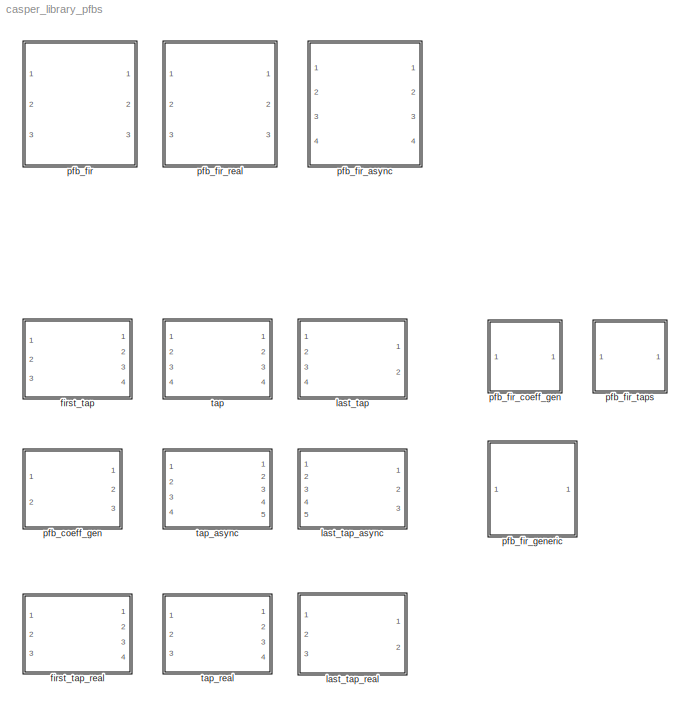
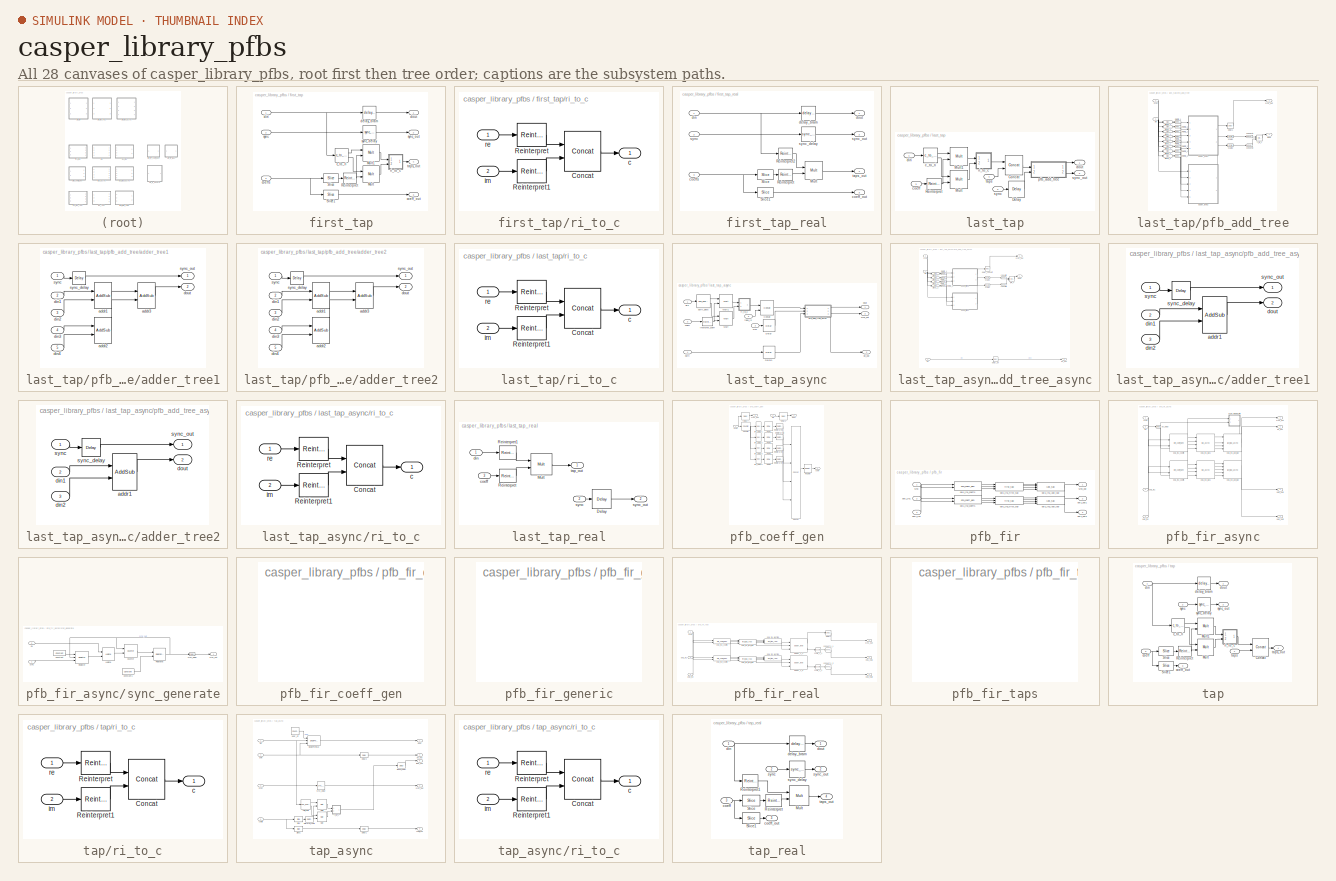
[diagram: thumbnail index - all 28 canvases of the model, root first then tree order]
MODEL casper_library_pfbs
KIND library
BLOCK [SubSystem] first_tap
  AttributesFormatString = taps=4
  FunctionWithSeparateData = off
  MaskHideContents = off
  MinAlgLoopOccurrences = off
  Opaque = off
  Ports = [3, 4]
  PropExecContextOutsideSubsystem = off
  RTWSystemCode = Auto
  RequestExecContextInheritance = off
  SID = 1
  UserData = DataTag0
  UserDataPersistent = on
BLOCK [Reference] first_tap/Mult  REF=xbsIndex_r4/Mult
  Ports = [2, 1]
  SID = 1:4
  SourceBlock = xbsIndex_r4/Mult
  SourceType = Xilinx Multiplier Block
  arith_type = Signed  (2's comp)
  bin_pt = 2
  block_type = mult
  block_version = 9.1.01
  dbl_ovrd = off
  en = off
  has_advanced_control = 0
  infoedit = Hardware notes: To use the internal pipeline stage of the dedicated multiplier you must select 'Pipeline for maximum performance'.
  latency = mult_latency
  n_bits = 8
  opt = Speed
  optimum_pipeline = off
  overflow = Wrap
  pipeline = on
  placement_style = Rectangular shape
  precision = Full
  quantization = Truncate
  sg_icon_stat = 50,51,2,1,white,blue,0,82c891c1,right,,[ ],[ ]
  sg_mask_display = fprintf('','COMMENT: begin icon graphics');\npatch([0 55 55 0 0 ],[0 0 55 55 0 ],[0.77 0.82 0.91 ]);\nplot([0 55 55 0 0 ],[0 0 55 55 0 ]);\npatch([11.425 21.54 28.54 35.54 42.54 28.54 18.425 11.425 ],[34.77 34.77 41.77 34.77 41.77 41.77 41.77 34.77 ],[1 1 1 ]);\npatch([18.425 28.54 21.54 11.425 18.425 ],[27.77 27.77 34.77 34.77 27.77 ],[0.931 0.946 0.973 ]);\npatch([11.425 21.54 28.54 18.425 11.42...<+540ch>  <repeated x10 — deduplicated; at blocks: Mult, Mult1>
  sggui_pos = 20,20,348,434
  use_behavioral_HDL = off
  use_embedded = on
  use_rpm = on
  xl_area = [0, 0, 0, 0, 0, 0, 0]
  xl_use_area = off
BLOCK [Reference] first_tap/Mult1  REF=xbsIndex_r4/Mult
  Ports = [2, 1]
  SID = 1:5
  SourceBlock = xbsIndex_r4/Mult
  SourceType = Xilinx Multiplier Block
  arith_type = Signed  (2's comp)
  bin_pt = 2
  block_type = mult
  block_version = 9.1.01
  dbl_ovrd = off
  en = off
  has_advanced_control = 0
  infoedit = Hardware notes: To use the internal pipeline stage of the dedicated multiplier you must select 'Pipeline for maximum performance'.
  latency = mult_latency
  n_bits = 8
  opt = Speed
  optimum_pipeline = off
  overflow = Wrap
  pipeline = on
  placement_style = Rectangular shape
  precision = Full
  quantization = Truncate
  sg_icon_stat = 50,51,2,1,white,blue,0,82c891c1,right,,[ ],[ ]
  sggui_pos = 20,20,348,434
  use_behavioral_HDL = off
  use_embedded = on
  use_rpm = on
  xl_area = [0, 0, 0, 0, 0, 0, 0]
  xl_use_area = off
BLOCK [Reference] first_tap/Reinterpret  REF=xbsIndex_r4/Reinterpret
  Ports = [1, 1]
  SID = 1:6
  SourceBlock = xbsIndex_r4/Reinterpret
  SourceType = Xilinx Type Reinterpreter Block
  arith_type = Signed  (2's comp)
  bin_pt = CoeffBitWidth - 1
  block_type = reinterpret
  block_version = 9.1.01
  force_arith_type = on
  force_bin_pt = on
  has_advanced_control = 0
  infoedit = Changes signal type without altering the binary representation.   You can changed the signal between signed and unsigned, and relocate the binary point.<P><P>Hardware notes: In hardware this block costs nothing.<P><P>Example:  Suppose the input is 6 bits wide, signed, with 2 fractional bits, and the output is forced to unsigned with 0 fractional bits.  Then an input of -2.0 (1110.00 in binary 2's ...<+55ch>  <repeated x23 — deduplicated; at blocks: Reinterpret, Reinterpret1, Reinterpret2, Reinterpret3, Reinterpret4>
  sg_icon_stat = 40,32,1,1,white,blue,0,6b04d0b0,right,,[ ],[ ]
  sg_mask_display = fprintf('','COMMENT: begin icon graphics');\npatch([0 50 50 0 0 ],[0 0 32 32 0 ],[0.77 0.82 0.91 ]);\nplot([0 50 50 0 0 ],[0 0 32 32 0 ]);\npatch([16.1 21.88 25.88 29.88 33.88 25.88 20.1 16.1 ],[20.44 20.44 24.44 20.44 24.44 24.44 24.44 20.44 ],[1 1 1 ]);\npatch([20.1 25.88 21.88 16.1 20.1 ],[16.44 16.44 20.44 20.44 16.44 ],[0.931 0.946 0.973 ]);\npatch([16.1 21.88 25.88 20.1 16.1 ],[12.44 12.44 1...<+306ch>  <repeated x15 — deduplicated; at blocks: Reinterpret, Reinterpret2, interpret_coeff, Reint0_1, Reint0_2, Reint1_1, Reint1_2, Reinterpret1>
  sggui_pos = -1,-1,-1,-1
BLOCK [Reference] first_tap/Slice  REF=xbsIndex_r4/Slice
  Ports = [1, 1]
  SID = 1:7
  SourceBlock = xbsIndex_r4/Slice
  SourceType = Xilinx Bit Slice Extractor Block
  base0 = LSB of Input
  base1 = MSB of Input
  bit0 = 0
  bit1 = 0
  block_type = slice
  block_version = 9.1.01
  boolean_output = off
  dbl_ovrd = off
  has_advanced_control = 0
  infoedit = Extracts a given range of bits from each input sample and presents it at the output.  The output type is ordinarily unsigned with binary point at zero, but can be Boolean when the slice is one bit wide.<P><P>Hardware notes: In hardware this block costs nothing.  <repeated x8 — deduplicated; at blocks: Slice, Slice1>
  mode = Lower Bit Location + Width
  nbits = CoeffBitWidth
  sg_icon_stat = 45,28,1,1,white,blue,0,1fd851a7,right,,[ ],[ ]
  sg_mask_display = fprintf('','COMMENT: begin icon graphics');\npatch([0 60 60 0 0 ],[0 0 30 30 0 ],[0.77 0.82 0.91 ]);\nplot([0 60 60 0 0 ],[0 0 30 30 0 ]);\npatch([21.1 26.88 30.88 34.88 38.88 30.88 25.1 21.1 ],[19.44 19.44 23.44 19.44 23.44 23.44 23.44 19.44 ],[1 1 1 ]);\npatch([25.1 30.88 26.88 21.1 25.1 ],[15.44 15.44 19.44 19.44 15.44 ],[0.931 0.946 0.973 ]);\npatch([21.1 26.88 30.88 25.1 21.1 ],[11.44 11.44 1...<+315ch>  <repeated x14 — deduplicated; at blocks: Slice, Slice1, Slice0_1, Slice0_2, Slice1_1, Slice1_2>
  sggui_pos = -1,-1,-1,-1
BLOCK [Reference] first_tap/Slice1  REF=xbsIndex_r4/Slice
  Ports = [1, 1]
  SID = 1:8
  SourceBlock = xbsIndex_r4/Slice
  SourceType = Xilinx Bit Slice Extractor Block
  base0 = LSB of Input
  base1 = MSB of Input
  bit0 = CoeffBitWidth
  bit1 = 0
  block_type = slice
  block_version = 9.1.01
  boolean_output = off
  dbl_ovrd = off
  has_advanced_control = 0
  mode = Two Bit Locations
  nbits = CoeffBitWidth * (TotalTaps - 1)
  sg_icon_stat = 45,28,1,1,white,blue,0,1fd851a7,right,,[ ],[ ]
  sggui_pos = -1,-1,-1,-1
BLOCK [Reference] first_tap/c_to_ri  REF=casper_library_misc/c_to_ri  (lib defined in mdl_357510c33b49, mdl_57b5f564ae26, +4 more)
  AttributesFormatString = _ r/i
  Ports = [1, 2]
  SID = 1:9
  SourceBlock = casper_library_misc/c_to_ri
  SourceType = c_to_ri
  UserData = DataTag1
  UserDataPersistent = on
  bin_pt = BitWidthIn-1
  n_bits = BitWidthIn
BLOCK [Outport] first_tap/coeff_out
  IconDisplay = Port number
  Port = 3
  SID = 1:21
BLOCK [Inport] first_tap/coeffs
  IconDisplay = Port number
  Port = 3
  SID = 1:3
BLOCK [Reference] first_tap/delay_bram  REF=casper_library_delays/delay_bram  (lib defined in mdl_259a08a3fac5, mdl_65009615caaa, +5 more)
  DelayLen = 2^(PFBSize-n_inputs)
  Ports = [1, 1]
  SID = 1:10
  SourceBlock = casper_library_delays/delay_bram
  SourceType = delay_bram
  UserData = DataTag2
  UserDataPersistent = on
  async = off
  bram_latency = bram_latency
  use_dsp48 = off
BLOCK [Inport] first_tap/din
  IconDisplay = Port number
  SID = 1:1
BLOCK [Outport] first_tap/dout
  IconDisplay = Port number
  SID = 1:19
BLOCK [SubSystem] first_tap/ri_to_c
  FunctionWithSeparateData = off
  MaskHideContents = off
  MinAlgLoopOccurrences = off
  Opaque = off
  Ports = [2, 1]
  PropExecContextOutsideSubsystem = off
  RTWSystemCode = Auto
  RequestExecContextInheritance = off
  SID = 1:11
BLOCK [Reference] first_tap/ri_to_c/Concat  REF=xbsIndex_r4/Concat
  Ports = [2, 1]
  SID = 1:14
  SourceBlock = xbsIndex_r4/Concat
  SourceType = Xilinx Bus Concatenator Block
  block_type = concat
  block_version = 9.1.01
  dbl_ovrd = off
  has_advanced_control = 0
  infoedit = Concatenates two or more inputs.  Output will be cast to an unsigned value with the binary point at zero.
  num_inputs = 2
  sg_icon_stat = 50,55,2,1,white,blue,0,16398980,right,,[ ],[ ]
  sg_mask_display = fprintf('','COMMENT: begin icon graphics');\npatch([0 50 50 0 0 ],[0 0 55 55 0 ],[0.77 0.82 0.91 ]);\nplot([0 50 50 0 0 ],[0 0 55 55 0 ]);\npatch([9.425 19.54 26.54 33.54 40.54 26.54 16.425 9.425 ],[34.77 34.77 41.77 34.77 41.77 41.77 41.77 34.77 ],[1 1 1 ]);\npatch([16.425 26.54 19.54 9.425 16.425 ],[27.77 27.77 34.77 34.77 27.77 ],[0.931 0.946 0.973 ]);\npatch([9.425 19.54 26.54 16.425 9.425 ],[...<+435ch>  <repeated x8 — deduplicated; at blocks: Concat>
  sggui_pos = -1,-1,-1,-1
BLOCK [Reference] first_tap/ri_to_c/Reinterpret  REF=xbsIndex_r4/Reinterpret
  Ports = [1, 1]
  SID = 1:15
  SourceBlock = xbsIndex_r4/Reinterpret
  SourceType = Xilinx Type Reinterpreter Block
  arith_type = Unsigned
  bin_pt = 0
  block_type = reinterpret
  block_version = 9.1.01
  force_arith_type = on
  force_bin_pt = on
  has_advanced_control = 0
  sg_icon_stat = 40,32,1,1,white,blue,0,6b04d0b0,right,,[ ],[ ]
  sg_mask_display = fprintf('','COMMENT: begin icon graphics');\npatch([0 40 40 0 0 ],[0 0 32 32 0 ],[0.77 0.82 0.91 ]);\nplot([0 40 40 0 0 ],[0 0 32 32 0 ]);\npatch([11.1 16.88 20.88 24.88 28.88 20.88 15.1 11.1 ],[20.44 20.44 24.44 20.44 24.44 24.44 24.44 20.44 ],[1 1 1 ]);\npatch([15.1 20.88 16.88 11.1 15.1 ],[16.44 16.44 20.44 20.44 16.44 ],[0.931 0.946 0.973 ]);\npatch([11.1 16.88 20.88 15.1 11.1 ],[12.44 12.44 1...<+306ch>  <repeated x6 — deduplicated; at blocks: Reinterpret, Reinterpret1>
  sggui_pos = -1,-1,-1,-1
BLOCK [Reference] first_tap/ri_to_c/Reinterpret1  REF=xbsIndex_r4/Reinterpret
  Ports = [1, 1]
  SID = 1:16
  SourceBlock = xbsIndex_r4/Reinterpret
  SourceType = Xilinx Type Reinterpreter Block
  arith_type = Unsigned
  bin_pt = 0
  block_type = reinterpret
  block_version = 9.1.01
  force_arith_type = on
  force_bin_pt = on
  has_advanced_control = 0
  sg_icon_stat = 40,32,1,1,white,blue,0,6b04d0b0,right,,[ ],[ ]
  sggui_pos = -1,-1,-1,-1
BLOCK [Outport] first_tap/ri_to_c/c
  IconDisplay = Port number
  SID = 1:17
BLOCK [Inport] first_tap/ri_to_c/im
  IconDisplay = Port number
  Port = 2
  SID = 1:13
BLOCK [Inport] first_tap/ri_to_c/re
  IconDisplay = Port number
  SID = 1:12
BLOCK [Inport] first_tap/sync
  IconDisplay = Port number
  Port = 2
  SID = 1:2
BLOCK [Reference] first_tap/sync_delay  REF=casper_library_delays/sync_delay  (lib defined in mdl_259a08a3fac5, mdl_65009615caaa, +5 more)
  DelayLen = 2^(PFBSize-n_inputs)
  Ports = [1, 1]
  SID = 1:18
  SourceBlock = casper_library_delays/sync_delay
  SourceType = sync_delay
BLOCK [Outport] first_tap/sync_out
  IconDisplay = Port number
  Port = 2
  SID = 1:20
BLOCK [Outport] first_tap/taps_out
  IconDisplay = Port number
  Port = 4
  SID = 1:22
BLOCK [SubSystem] first_tap_real
  AttributesFormatString = taps=4
  FunctionWithSeparateData = off
  MaskHideContents = off
  MinAlgLoopOccurrences = off
  Opaque = off
  Ports = [3, 4]
  PropExecContextOutsideSubsystem = off
  RTWSystemCode = Auto
  RequestExecContextInheritance = off
  SID = 2
  UserData = DataTag3
  UserDataPersistent = on
BLOCK [Reference] first_tap_real/Mult  REF=xbsIndex_r4/Mult
  Ports = [2, 1]
  SID = 2:4
  SourceBlock = xbsIndex_r4/Mult
  SourceType = Xilinx Multiplier Block
  arith_type = Signed  (2's comp)
  bin_pt = 2
  block_type = mult
  block_version = 9.1.01
  dbl_ovrd = off
  en = off
  has_advanced_control = 0
  infoedit = Hardware notes: To use the internal pipeline stage of the dedicated multiplier you must select 'Pipeline for maximum performance'.
  latency = mult_latency
  n_bits = 8
  opt = Speed
  optimum_pipeline = off
  overflow = Wrap
  pipeline = on
  placement_style = Rectangular shape
  precision = Full
  quantization = Truncate
  sg_icon_stat = 50,51,2,1,white,blue,0,82c891c1,right,,[ ],[ ]
  sggui_pos = 20,20,348,434
  use_behavioral_HDL = off
  use_embedded = on
  use_rpm = on
  xl_area = [0, 0, 0, 0, 0, 0, 0]
  xl_use_area = off
BLOCK [Reference] first_tap_real/Reinterpret  REF=xbsIndex_r4/Reinterpret
  Ports = [1, 1]
  SID = 2:5
  SourceBlock = xbsIndex_r4/Reinterpret
  SourceType = Xilinx Type Reinterpreter Block
  arith_type = Signed  (2's comp)
  bin_pt = CoeffBitWidth - 1
  block_type = reinterpret
  block_version = 9.1.01
  force_arith_type = on
  force_bin_pt = on
  has_advanced_control = 0
  sg_icon_stat = 40,32,1,1,white,blue,0,6b04d0b0,right,,[ ],[ ]
  sggui_pos = -1,-1,-1,-1
BLOCK [Reference] first_tap_real/Reinterpret2  REF=xbsIndex_r4/Reinterpret
  Ports = [1, 1]
  SID = 2:6
  SourceBlock = xbsIndex_r4/Reinterpret
  SourceType = Xilinx Type Reinterpreter Block
  arith_type = Signed  (2's comp)
  bin_pt = BitWidthIn - 1
  block_type = reinterpret
  block_version = 9.1.01
  force_arith_type = on
  force_bin_pt = on
  has_advanced_control = 0
  sg_icon_stat = 40,32,1,1,white,blue,0,6b04d0b0,right,,[ ],[ ]
  sggui_pos = -1,-1,-1,-1
BLOCK [Reference] first_tap_real/Slice  REF=xbsIndex_r4/Slice
  Ports = [1, 1]
  SID = 2:7
  SourceBlock = xbsIndex_r4/Slice
  SourceType = Xilinx Bit Slice Extractor Block
  base0 = LSB of Input
  base1 = MSB of Input
  bit0 = 0
  bit1 = 0
  block_type = slice
  block_version = 9.1.01
  boolean_output = off
  dbl_ovrd = off
  has_advanced_control = 0
  mode = Lower Bit Location + Width
  nbits = CoeffBitWidth
  sg_icon_stat = 45,28,1,1,white,blue,0,1fd851a7,right,,[ ],[ ]
  sggui_pos = -1,-1,-1,-1
BLOCK [Reference] first_tap_real/Slice1  REF=xbsIndex_r4/Slice
  Ports = [1, 1]
  SID = 2:8
  SourceBlock = xbsIndex_r4/Slice
  SourceType = Xilinx Bit Slice Extractor Block
  base0 = LSB of Input
  base1 = MSB of Input
  bit0 = CoeffBitWidth
  bit1 = 0
  block_type = slice
  block_version = 9.1.01
  boolean_output = off
  dbl_ovrd = off
  has_advanced_control = 0
  mode = Two Bit Locations
  nbits = CoeffBitWidth * (TotalTaps - 1)
  sg_icon_stat = 45,28,1,1,white,blue,0,1fd851a7,right,,[ ],[ ]
  sggui_pos = -1,-1,-1,-1
BLOCK [Outport] first_tap_real/coeff_out
  IconDisplay = Port number
  Port = 3
  SID = 2:13
BLOCK [Inport] first_tap_real/coeffs
  IconDisplay = Port number
  Port = 3
  SID = 2:3
BLOCK [Reference] first_tap_real/delay_bram  REF=casper_library_delays/delay_bram  (lib defined in mdl_259a08a3fac5, mdl_65009615caaa, +5 more)
  DelayLen = 2^(PFBSize-n_inputs)
  Ports = [1, 1]
  SID = 2:9
  SourceBlock = casper_library_delays/delay_bram
  SourceType = delay_bram
  UserData = DataTag4
  UserDataPersistent = on
  async = off
  bram_latency = bram_latency
  use_dsp48 = off
BLOCK [Inport] first_tap_real/din
  IconDisplay = Port number
  SID = 2:1
BLOCK [Outport] first_tap_real/dout
  IconDisplay = Port number
  SID = 2:11
BLOCK [Inport] first_tap_real/sync
  IconDisplay = Port number
  Port = 2
  SID = 2:2
BLOCK [Reference] first_tap_real/sync_delay  REF=casper_library_delays/sync_delay  (lib defined in mdl_259a08a3fac5, mdl_65009615caaa, +5 more)
  DelayLen = 2^(PFBSize-n_inputs)
  Ports = [1, 1]
  SID = 2:10
  SourceBlock = casper_library_delays/sync_delay
  SourceType = sync_delay
BLOCK [Outport] first_tap_real/sync_out
  IconDisplay = Port number
  Port = 2
  SID = 2:12
BLOCK [Outport] first_tap_real/taps_out
  IconDisplay = Port number
  Port = 4
  SID = 2:14
BLOCK [SubSystem] last_tap
  AttributesFormatString = taps=4
  FunctionWithSeparateData = off
  MaskHideContents = off
  MinAlgLoopOccurrences = off
  Opaque = off
  Ports = [4, 2]
  PropExecContextOutsideSubsystem = off
  RTWSystemCode = Auto
  RequestExecContextInheritance = off
  SID = 3
  UserData = DataTag5
  UserDataPersistent = on
BLOCK [Reference] last_tap/Concat  REF=xbsIndex_r4/Concat
  Ports = [2, 1]
  SID = 3:5
  SourceBlock = xbsIndex_r4/Concat
  SourceType = Xilinx Bus Concatenator Block
  block_type = concat
  block_version = 9.1.01
  dbl_ovrd = off
  has_advanced_control = 0
  infoedit = Concatenates two or more inputs.  Output will be cast to an unsigned value with the binary point at zero.
  num_inputs = 2
  sg_icon_stat = 50,55,2,1,white,blue,0,16398980,right,,[ ],[ ]
  sggui_pos = -1,-1,-1,-1
BLOCK [Reference] last_tap/Delay  REF=xbsIndex_r4/Delay
  Ports = [1, 1]
  SID = 3:6
  SourceBlock = xbsIndex_r4/Delay
  SourceType = Xilinx Delay Block
  block_type = delay
  block_version = 9.1.01
  dbl_ovrd = off
  en = off
  has_advanced_control = 0
  infoedit = Hardware notes: A delay line is a chain, each link of which is an SRL16 followed by a flip-flop.
  infoeditControl = Selection of Reset will increase slice count due to use of real FFs and instead of SRLs
  latency = mult_latency
  reg_retiming = off
  rst = off
  sg_icon_stat = 45,46,1,1,white,blue,0,85ce9542,right,,[ ],[ ]
  sg_mask_display = fprintf('','COMMENT: begin icon graphics');\npatch([0 60 60 0 0 ],[0 0 56 56 0 ],[0.77 0.82 0.91 ]);\nplot([0 60 60 0 0 ],[0 0 56 56 0 ]);\npatch([12.2 23.76 31.76 39.76 47.76 31.76 20.2 12.2 ],[36.88 36.88 44.88 36.88 44.88 44.88 44.88 36.88 ],[1 1 1 ]);\npatch([20.2 31.76 23.76 12.2 20.2 ],[28.88 28.88 36.88 36.88 28.88 ],[0.931 0.946 0.973 ]);\npatch([12.2 23.76 31.76 20.2 12.2 ],[20.88 20.88 2...<+320ch>  <repeated x16 — deduplicated; at blocks: Delay, Delay1, delay_convert, fan_delay1, fan_delay2, fan_delay3, fan_delay4, dv_delay, sync_delay, Delay2, tapout_delay>
  sggui_pos = -1,-1,-1,-1
  xl_area = [0, 0, 0, 0, 0, 0, 0]
  xl_use_area = off
BLOCK [Reference] last_tap/Mult  REF=xbsIndex_r4/Mult
  Ports = [2, 1]
  SID = 3:7
  SourceBlock = xbsIndex_r4/Mult
  SourceType = Xilinx Multiplier Block
  arith_type = Signed  (2's comp)
  bin_pt = 2
  block_type = mult
  block_version = 9.1.01
  dbl_ovrd = off
  en = off
  has_advanced_control = 0
  infoedit = Hardware notes: To use the internal pipeline stage of the dedicated multiplier you must select 'Pipeline for maximum performance'.
  latency = mult_latency
  n_bits = 8
  opt = Speed
  optimum_pipeline = off
  overflow = Wrap
  pipeline = on
  placement_style = Rectangular shape
  precision = Full
  quantization = Truncate
  sg_icon_stat = 50,51,2,1,white,blue,0,2fbe4d8a,right,,[ ],[ ]
  sggui_pos = 20,20,348,434
  use_behavioral_HDL = off
  use_embedded = on
  use_rpm = on
  xl_area = [0, 0, 0, 0, 0, 0, 0]
  xl_use_area = off
BLOCK [Reference] last_tap/Mult1  REF=xbsIndex_r4/Mult
  Ports = [2, 1]
  SID = 3:8
  SourceBlock = xbsIndex_r4/Mult
  SourceType = Xilinx Multiplier Block
  arith_type = Signed  (2's comp)
  bin_pt = 2
  block_type = mult
  block_version = 9.1.01
  dbl_ovrd = off
  en = off
  has_advanced_control = 0
  infoedit = Hardware notes: To use the internal pipeline stage of the dedicated multiplier you must select 'Pipeline for maximum performance'.
  latency = mult_latency
  n_bits = 8
  opt = Speed
  optimum_pipeline = off
  overflow = Wrap
  pipeline = on
  placement_style = Rectangular shape
  precision = Full
  quantization = Truncate
  sg_icon_stat = 50,51,2,1,white,blue,0,2fbe4d8a,right,,[ ],[ ]
  sggui_pos = 20,20,348,434
  use_behavioral_HDL = off
  use_embedded = on
  use_rpm = on
  xl_area = [0, 0, 0, 0, 0, 0, 0]
  xl_use_area = off
BLOCK [Reference] last_tap/Reinterpret  REF=xbsIndex_r4/Reinterpret
  Ports = [1, 1]
  SID = 3:9
  SourceBlock = xbsIndex_r4/Reinterpret
  SourceType = Xilinx Type Reinterpreter Block
  arith_type = Signed  (2's comp)
  bin_pt = CoeffBitWidth - 1
  block_type = reinterpret
  block_version = 9.1.01
  force_arith_type = on
  force_bin_pt = on
  has_advanced_control = 0
  sg_icon_stat = 40,32,1,1,white,blue,0,6b04d0b0,right,,[ ],[ ]
  sggui_pos = -1,-1,-1,-1
BLOCK [Reference] last_tap/c_to_ri  REF=casper_library_misc/c_to_ri  (lib defined in mdl_357510c33b49, mdl_57b5f564ae26, +4 more)
  AttributesFormatString = _ r/i
  Ports = [1, 2]
  SID = 3:10
  SourceBlock = casper_library_misc/c_to_ri
  SourceType = c_to_ri
  UserData = DataTag6
  UserDataPersistent = on
  bin_pt = BitWidthIn-1
  n_bits = BitWidthIn
BLOCK [Inport] last_tap/coeff
  IconDisplay = Port number
  Port = 3
  SID = 3:3
BLOCK [Inport] last_tap/din
  IconDisplay = Port number
  SID = 3:1
BLOCK [Outport] last_tap/dout
  IconDisplay = Port number
  SID = 3:19
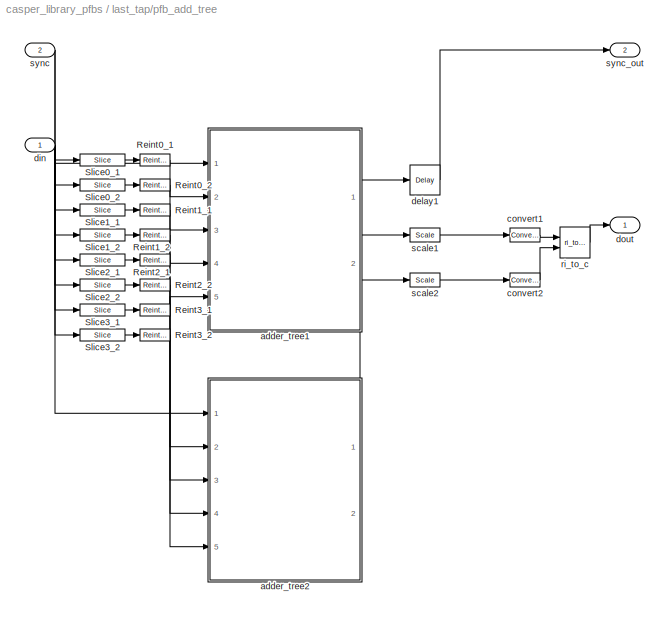
BLOCK [SubSystem] last_tap/pfb_add_tree
  AttributesFormatString = taps=4, add_latency=1
  FunctionWithSeparateData = off
  MaskHideContents = off
  MinAlgLoopOccurrences = off
  Opaque = off
  Ports = [2, 2]
  PropExecContextOutsideSubsystem = off
  RTWSystemCode = Auto
  RequestExecContextInheritance = off
  SID = 3:11
  UserData = DataTag7
  UserDataPersistent = on
BLOCK [Reference] last_tap/pfb_add_tree/Reint0_1  REF=xbsIndex_r4/Reinterpret
  Ports = [1, 1]
  SID = 3:11:3
  SourceBlock = xbsIndex_r4/Reinterpret
  SourceType = Xilinx Type Reinterpreter Block
  arith_type = Signed  (2's comp)
  bin_pt = 14
  block_type = reinterpret
  block_version = 11.4
  force_arith_type = on
  force_bin_pt = on
  has_advanced_control = 0
  infoedit = Changes signal type without altering the binary representation.   You can changed the signal between signed and unsigned, and relocate the binary point.<br><br>Hardware notes: In hardware this block costs nothing.<br><br>Example:  Suppose the input is 6 bits wide, signed, with 2 fractional bits, and the output is forced to unsigned with 0 fractional bits.  Then an input of -2.0 (1110.00 in binary ...<+59ch>  <repeated x14 — deduplicated; at blocks: Reint0_1, Reint0_2, Reint1_1, Reint1_2, Reint2_1, Reint2_2, Reint3_1, Reint3_2, interpret_coeff>
  sg_icon_stat = 30,12,1,1,white,blue,0,6b04d0b0,right,,[ ],[ ]
  sg_mask_display = fprintf('','COMMENT: begin icon graphics');\npatch([0 30 30 0 0 ],[0 0 12 12 0 ],[0.77 0.82 0.91 ]);\nplot([0 30 30 0 0 ],[0 0 12 12 0 ]);\npatch([12.775 14.22 15.22 16.22 17.22 15.22 13.775 12.775 ],[7.11 7.11 8.11 7.11 8.11 8.11 8.11 7.11 ],[1 1 1 ]);\npatch([13.775 15.22 14.22 12.775 13.775 ],[6.11 6.11 7.11 7.11 6.11 ],[0.931 0.946 0.973 ]);\npatch([12.775 14.22 15.22 13.775 12.775 ],[5.11 5.1...<+309ch>
  sggui_pos = -1,-1,-1,-1
BLOCK [Reference] last_tap/pfb_add_tree/Reint0_2  REF=xbsIndex_r4/Reinterpret
  Ports = [1, 1]
  SID = 3:11:4
  SourceBlock = xbsIndex_r4/Reinterpret
  SourceType = Xilinx Type Reinterpreter Block
  arith_type = Signed  (2's comp)
  bin_pt = 14
  block_type = reinterpret
  block_version = 11.4
  force_arith_type = on
  force_bin_pt = on
  has_advanced_control = 0
  sg_icon_stat = 30,12,1,1,white,blue,0,6b04d0b0,right,,[ ],[ ]
  sg_mask_display = fprintf('','COMMENT: begin icon graphics');\npatch([0 30 30 0 0 ],[0 0 12 12 0 ],[0.77 0.82 0.91 ]);\nplot([0 30 30 0 0 ],[0 0 12 12 0 ]);\npatch([12.775 14.22 15.22 16.22 17.22 15.22 13.775 12.775 ],[7.11 7.11 8.11 7.11 8.11 8.11 8.11 7.11 ],[1 1 1 ]);\npatch([13.775 15.22 14.22 12.775 13.775 ],[6.11 6.11 7.11 7.11 6.11 ],[0.931 0.946 0.973 ]);\npatch([12.775 14.22 15.22 13.775 12.775 ],[5.11 5.1...<+311ch>  <repeated x7 — deduplicated; at blocks: Reint0_2, Reint1_1, Reint1_2, Reint2_1, Reint2_2, Reint3_1, Reint3_2>
  sggui_pos = -1,-1,-1,-1
BLOCK [Reference] last_tap/pfb_add_tree/Reint1_1  REF=xbsIndex_r4/Reinterpret
  Ports = [1, 1]
  SID = 3:11:5
  SourceBlock = xbsIndex_r4/Reinterpret
  SourceType = Xilinx Type Reinterpreter Block
  arith_type = Signed  (2's comp)
  bin_pt = 14
  block_type = reinterpret
  block_version = 11.4
  force_arith_type = on
  force_bin_pt = on
  has_advanced_control = 0
  sg_icon_stat = 30,12,1,1,white,blue,0,6b04d0b0,right,,[ ],[ ]
  sggui_pos = -1,-1,-1,-1
BLOCK [Reference] last_tap/pfb_add_tree/Reint1_2  REF=xbsIndex_r4/Reinterpret
  Ports = [1, 1]
  SID = 3:11:6
  SourceBlock = xbsIndex_r4/Reinterpret
  SourceType = Xilinx Type Reinterpreter Block
  arith_type = Signed  (2's comp)
  bin_pt = 14
  block_type = reinterpret
  block_version = 11.4
  force_arith_type = on
  force_bin_pt = on
  has_advanced_control = 0
  sg_icon_stat = 30,12,1,1,white,blue,0,6b04d0b0,right,,[ ],[ ]
  sggui_pos = -1,-1,-1,-1
BLOCK [Reference] last_tap/pfb_add_tree/Reint2_1  REF=xbsIndex_r4/Reinterpret
  Ports = [1, 1]
  SID = 3:11:7
  SourceBlock = xbsIndex_r4/Reinterpret
  SourceType = Xilinx Type Reinterpreter Block
  arith_type = Signed  (2's comp)
  bin_pt = 14
  block_type = reinterpret
  block_version = 11.4
  force_arith_type = on
  force_bin_pt = on
  has_advanced_control = 0
  sg_icon_stat = 30,12,1,1,white,blue,0,6b04d0b0,right,,[ ],[ ]
  sggui_pos = -1,-1,-1,-1
BLOCK [Reference] last_tap/pfb_add_tree/Reint2_2  REF=xbsIndex_r4/Reinterpret
  Ports = [1, 1]
  SID = 3:11:8
  SourceBlock = xbsIndex_r4/Reinterpret
  SourceType = Xilinx Type Reinterpreter Block
  arith_type = Signed  (2's comp)
  bin_pt = 14
  block_type = reinterpret
  block_version = 11.4
  force_arith_type = on
  force_bin_pt = on
  has_advanced_control = 0
  sg_icon_stat = 30,12,1,1,white,blue,0,6b04d0b0,right,,[ ],[ ]
  sggui_pos = -1,-1,-1,-1
BLOCK [Reference] last_tap/pfb_add_tree/Reint3_1  REF=xbsIndex_r4/Reinterpret
  Ports = [1, 1]
  SID = 3:11:9
  SourceBlock = xbsIndex_r4/Reinterpret
  SourceType = Xilinx Type Reinterpreter Block
  arith_type = Signed  (2's comp)
  bin_pt = 14
  block_type = reinterpret
  block_version = 11.4
  force_arith_type = on
  force_bin_pt = on
  has_advanced_control = 0
  sg_icon_stat = 30,12,1,1,white,blue,0,6b04d0b0,right,,[ ],[ ]
  sggui_pos = -1,-1,-1,-1
BLOCK [Reference] last_tap/pfb_add_tree/Reint3_2  REF=xbsIndex_r4/Reinterpret
  Ports = [1, 1]
  SID = 3:11:10
  SourceBlock = xbsIndex_r4/Reinterpret
  SourceType = Xilinx Type Reinterpreter Block
  arith_type = Signed  (2's comp)
  bin_pt = 14
  block_type = reinterpret
  block_version = 11.4
  force_arith_type = on
  force_bin_pt = on
  has_advanced_control = 0
  sg_icon_stat = 30,12,1,1,white,blue,0,6b04d0b0,right,,[ ],[ ]
  sggui_pos = -1,-1,-1,-1
BLOCK [Reference] last_tap/pfb_add_tree/Slice0_1  REF=xbsIndex_r4/Slice
  Ports = [1, 1]
  SID = 3:11:11
  SourceBlock = xbsIndex_r4/Slice
  SourceType = Xilinx Bit Slice Extractor Block
  base0 = MSB of Input
  base1 = MSB of Input
  bit0 = 0
  bit1 = 0
  block_type = slice
  block_version = 11.4
  boolean_output = off
  dbl_ovrd = off
  has_advanced_control = 0
  infoedit = Extracts a given range of bits from each input sample and presents it at the output.  The output type is ordinarily unsigned with binary point at zero, but can be Boolean when the slice is one bit wide.<br><br>Hardware notes: In hardware this block costs nothing.  <repeated x14 — deduplicated; at blocks: Slice0_1, Slice0_2, Slice1_1, Slice1_2, Slice2_1, Slice2_2, Slice3_1, Slice3_2, Slice, Slice1>
  mode = Upper Bit Location + Width
  nbits = 16
  sg_icon_stat = 45,12,1,1,white,blue,0,1fd851a7,right,,[ ],[ ]
  sg_mask_display = fprintf('','COMMENT: begin icon graphics');\npatch([0 45 45 0 0 ],[0 0 12 12 0 ],[0.77 0.82 0.91 ]);\nplot([0 45 45 0 0 ],[0 0 12 12 0 ]);\npatch([19.775 21.22 22.22 23.22 24.22 22.22 20.775 19.775 ],[7.11 7.11 8.11 7.11 8.11 8.11 8.11 7.11 ],[1 1 1 ]);\npatch([20.775 22.22 21.22 19.775 20.775 ],[6.11 6.11 7.11 7.11 6.11 ],[0.931 0.946 0.973 ]);\npatch([19.775 21.22 22.22 20.775 19.775 ],[5.11 5.1...<+320ch>  <repeated x8 — deduplicated; at blocks: Slice0_1, Slice0_2, Slice1_1, Slice1_2, Slice2_1, Slice2_2, Slice3_1, Slice3_2>
  sggui_pos = -1,-1,-1,-1
BLOCK [Reference] last_tap/pfb_add_tree/Slice0_2  REF=xbsIndex_r4/Slice
  Ports = [1, 1]
  SID = 3:11:12
  SourceBlock = xbsIndex_r4/Slice
  SourceType = Xilinx Bit Slice Extractor Block
  base0 = MSB of Input
  base1 = MSB of Input
  bit0 = 0
  bit1 = -16
  block_type = slice
  block_version = 11.4
  boolean_output = off
  dbl_ovrd = off
  has_advanced_control = 0
  mode = Upper Bit Location + Width
  nbits = 16
  sg_icon_stat = 45,12,1,1,white,blue,0,1fd851a7,right,,[ ],[ ]
  sggui_pos = -1,-1,-1,-1
BLOCK [Reference] last_tap/pfb_add_tree/Slice1_1  REF=xbsIndex_r4/Slice
  Ports = [1, 1]
  SID = 3:11:13
  SourceBlock = xbsIndex_r4/Slice
  SourceType = Xilinx Bit Slice Extractor Block
  base0 = MSB of Input
  base1 = MSB of Input
  bit0 = 0
  bit1 = -32
  block_type = slice
  block_version = 11.4
  boolean_output = off
  dbl_ovrd = off
  has_advanced_control = 0
  mode = Upper Bit Location + Width
  nbits = 16
  sg_icon_stat = 45,12,1,1,white,blue,0,1fd851a7,right,,[ ],[ ]
  sggui_pos = -1,-1,-1,-1
BLOCK [Reference] last_tap/pfb_add_tree/Slice1_2  REF=xbsIndex_r4/Slice
  Ports = [1, 1]
  SID = 3:11:14
  SourceBlock = xbsIndex_r4/Slice
  SourceType = Xilinx Bit Slice Extractor Block
  base0 = MSB of Input
  base1 = MSB of Input
  bit0 = 0
  bit1 = -48
  block_type = slice
  block_version = 11.4
  boolean_output = off
  dbl_ovrd = off
  has_advanced_control = 0
  mode = Upper Bit Location + Width
  nbits = 16
  sg_icon_stat = 45,12,1,1,white,blue,0,1fd851a7,right,,[ ],[ ]
  sggui_pos = -1,-1,-1,-1
BLOCK [Reference] last_tap/pfb_add_tree/Slice2_1  REF=xbsIndex_r4/Slice
  Ports = [1, 1]
  SID = 3:11:15
  SourceBlock = xbsIndex_r4/Slice
  SourceType = Xilinx Bit Slice Extractor Block
  base0 = MSB of Input
  base1 = MSB of Input
  bit0 = 0
  bit1 = -64
  block_type = slice
  block_version = 11.4
  boolean_output = off
  dbl_ovrd = off
  has_advanced_control = 0
  mode = Upper Bit Location + Width
  nbits = 16
  sg_icon_stat = 45,12,1,1,white,blue,0,1fd851a7,right,,[ ],[ ]
  sggui_pos = -1,-1,-1,-1
BLOCK [Reference] last_tap/pfb_add_tree/Slice2_2  REF=xbsIndex_r4/Slice
  Ports = [1, 1]
  SID = 3:11:16
  SourceBlock = xbsIndex_r4/Slice
  SourceType = Xilinx Bit Slice Extractor Block
  base0 = MSB of Input
  base1 = MSB of Input
  bit0 = 0
  bit1 = -80
  block_type = slice
  block_version = 11.4
  boolean_output = off
  dbl_ovrd = off
  has_advanced_control = 0
  mode = Upper Bit Location + Width
  nbits = 16
  sg_icon_stat = 45,12,1,1,white,blue,0,1fd851a7,right,,[ ],[ ]
  sggui_pos = -1,-1,-1,-1
BLOCK [Reference] last_tap/pfb_add_tree/Slice3_1  REF=xbsIndex_r4/Slice
  Ports = [1, 1]
  SID = 3:11:17
  SourceBlock = xbsIndex_r4/Slice
  SourceType = Xilinx Bit Slice Extractor Block
  base0 = MSB of Input
  base1 = MSB of Input
  bit0 = 0
  bit1 = -96
  block_type = slice
  block_version = 11.4
  boolean_output = off
  dbl_ovrd = off
  has_advanced_control = 0
  mode = Upper Bit Location + Width
  nbits = 16
  sg_icon_stat = 45,12,1,1,white,blue,0,1fd851a7,right,,[ ],[ ]
  sggui_pos = -1,-1,-1,-1
BLOCK [Reference] last_tap/pfb_add_tree/Slice3_2  REF=xbsIndex_r4/Slice
  Ports = [1, 1]
  SID = 3:11:18
  SourceBlock = xbsIndex_r4/Slice
  SourceType = Xilinx Bit Slice Extractor Block
  base0 = MSB of Input
  base1 = MSB of Input
  bit0 = 0
  bit1 = -112
  block_type = slice
  block_version = 11.4
  boolean_output = off
  dbl_ovrd = off
  has_advanced_control = 0
  mode = Upper Bit Location + Width
  nbits = 16
  sg_icon_stat = 45,12,1,1,white,blue,0,1fd851a7,right,,[ ],[ ]
  sggui_pos = -1,-1,-1,-1
BLOCK [SubSystem] last_tap/pfb_add_tree/adder_tree1
  AncestorBlock = casper_library_misc/adder_tree
  AttributesFormatString = latency 2
  FunctionWithSeparateData = off
  MaskHideContents = off
  MinAlgLoopOccurrences = off
  Opaque = off
  Ports = [5, 2]
  PropExecContextOutsideSubsystem = off
  RTWSystemCode = Auto
  RequestExecContextInheritance = off
  SID = 3:11:19
  UserData = DataTag8
  UserDataPersistent = on
BLOCK [Reference] last_tap/pfb_add_tree/adder_tree1/addr1  REF=xbsIndex_r4/AddSub
  Ports = [2, 1]
  SID = 3:11:19:6
  SourceBlock = xbsIndex_r4/AddSub
  SourceType = Xilinx Adder/Subtracter Block
  arith_type = Unsigned
  bin_pt = 14
  block_type = addsub
  block_version = 11.4
  dbl_ovrd = off
  en = off
  has_advanced_control = 0
  hw_selection = Fabric
  latency = 1
  mode = Addition
  n_bits = 16
  overflow = Wrap
  pipelined = on
  precision = Full
  quantization = Truncate
  sg_icon_stat = 40,60,2,1,white,blue,0,e85d8a90,right,,[ ],[ ]
  sg_mask_display = fprintf('','COMMENT: begin icon graphics');\npatch([0 40 40 0 0 ],[0 0 60 60 0 ],[0.77 0.82 0.91 ]);\nplot([0 40 40 0 0 ],[0 0 60 60 0 ]);\npatch([8.875 16.1 21.1 26.1 31.1 21.1 13.875 8.875 ],[35.55 35.55 40.55 35.55 40.55 40.55 40.55 35.55 ],[1 1 1 ]);\npatch([13.875 21.1 16.1 8.875 13.875 ],[30.55 30.55 35.55 35.55 30.55 ],[0.931 0.946 0.973 ]);\npatch([8.875 16.1 21.1 13.875 8.875 ],[25.55 25....<+543ch>  <repeated x8 — deduplicated; at blocks: addr1, addr2, addr3>
  sggui_pos = 23,125,419,344
  use_behavioral_HDL = off
  use_carryin = off
  use_carryout = off
  use_rpm = on
  xl_area = [0,0,0,0,0,0,0]
  xl_use_area = off
BLOCK [Reference] last_tap/pfb_add_tree/adder_tree1/addr2  REF=xbsIndex_r4/AddSub
  Ports = [2, 1]
  SID = 3:11:19:7
  SourceBlock = xbsIndex_r4/AddSub
  SourceType = Xilinx Adder/Subtracter Block
  arith_type = Unsigned
  bin_pt = 14
  block_type = addsub
  block_version = 11.4
  dbl_ovrd = off
  en = off
  has_advanced_control = 0
  hw_selection = Fabric
  latency = 1
  mode = Addition
  n_bits = 16
  overflow = Wrap
  pipelined = on
  precision = Full
  quantization = Truncate
  sg_icon_stat = 40,60,2,1,white,blue,0,e85d8a90,right,,[ ],[ ]
  sggui_pos = -1,-1,-1,-1
  use_behavioral_HDL = off
  use_carryin = off
  use_carryout = off
  use_rpm = on
  xl_area = [0,0,0,0,0,0,0]
  xl_use_area = off
BLOCK [Reference] last_tap/pfb_add_tree/adder_tree1/addr3  REF=xbsIndex_r4/AddSub
  Ports = [2, 1]
  SID = 3:11:19:8
  SourceBlock = xbsIndex_r4/AddSub
  SourceType = Xilinx Adder/Subtracter Block
  arith_type = Unsigned
  bin_pt = 14
  block_type = addsub
  block_version = 11.4
  dbl_ovrd = off
  en = off
  has_advanced_control = 0
  hw_selection = Fabric
  latency = 1
  mode = Addition
  n_bits = 16
  overflow = Wrap
  pipelined = on
  precision = Full
  quantization = Truncate
  sg_icon_stat = 40,60,2,1,white,blue,0,e85d8a90,right,,[ ],[ ]
  sggui_pos = 23,125,419,344
  use_behavioral_HDL = off
  use_carryin = off
  use_carryout = off
  use_rpm = on
  xl_area = [0,0,0,0,0,0,0]
  xl_use_area = off
BLOCK [Inport] last_tap/pfb_add_tree/adder_tree1/din1
  IconDisplay = Port number
  Port = 2
  SID = 3:11:19:2
BLOCK [Inport] last_tap/pfb_add_tree/adder_tree1/din2
  IconDisplay = Port number
  Port = 3
  SID = 3:11:19:3
BLOCK [Inport] last_tap/pfb_add_tree/adder_tree1/din3
  IconDisplay = Port number
  Port = 4
  SID = 3:11:19:4
BLOCK [Inport] last_tap/pfb_add_tree/adder_tree1/din4
  IconDisplay = Port number
  Port = 5
  SID = 3:11:19:5
BLOCK [Outport] last_tap/pfb_add_tree/adder_tree1/dout
  IconDisplay = Port number
  Port = 2
  SID = 3:11:19:11
BLOCK [Inport] last_tap/pfb_add_tree/adder_tree1/sync
  IconDisplay = Port number
  SID = 3:11:19:1
BLOCK [Reference] last_tap/pfb_add_tree/adder_tree1/sync_delay  REF=xbsIndex_r4/Delay
  Ports = [1, 1]
  SID = 3:11:19:9
  SourceBlock = xbsIndex_r4/Delay
  SourceType = Xilinx Delay Block
  block_type = delay
  block_version = 11.4
  dbl_ovrd = off
  en = off
  has_advanced_control = 0
  infoedit = Hardware notes: A delay line is a chain, each link of which is an SRL16 followed by a flip-flop.
  infoeditControl = Selection of Reset will increase slice count due to use of real FFs and instead of SRLs
  latency = 2
  reg_retiming = on
  rst = off
  sg_icon_stat = 30,30,1,1,white,blue,0,85ce9542,right,,[ ],[ ]
  sg_mask_display = fprintf('','COMMENT: begin icon graphics');\npatch([0 30 30 0 0 ],[0 0 30 30 0 ],[0.77 0.82 0.91 ]);\nplot([0 30 30 0 0 ],[0 0 30 30 0 ]);\npatch([6.1 11.88 15.88 19.88 23.88 15.88 10.1 6.1 ],[19.44 19.44 23.44 19.44 23.44 23.44 23.44 19.44 ],[1 1 1 ]);\npatch([10.1 15.88 11.88 6.1 10.1 ],[15.44 15.44 19.44 19.44 15.44 ],[0.931 0.946 0.973 ]);\npatch([6.1 11.88 15.88 10.1 6.1 ],[11.44 11.44 15.44 ...<+312ch>  <repeated x5 — deduplicated; at blocks: sync_delay, delay1>
  sggui_pos = 21,71,419,315
  xl_area = [0,0,0,0,0,0,0]
  xl_use_area = off
BLOCK [Outport] last_tap/pfb_add_tree/adder_tree1/sync_out
  IconDisplay = Port number
  SID = 3:11:19:10
BLOCK [SubSystem] last_tap/pfb_add_tree/adder_tree2
  AncestorBlock = casper_library_misc/adder_tree
  AttributesFormatString = latency 2
  FunctionWithSeparateData = off
  MaskHideContents = off
  MinAlgLoopOccurrences = off
  Opaque = off
  Ports = [5, 2]
  PropExecContextOutsideSubsystem = off
  RTWSystemCode = Auto
  RequestExecContextInheritance = off
  SID = 3:11:20
  UserData = DataTag9
  UserDataPersistent = on
BLOCK [Reference] last_tap/pfb_add_tree/adder_tree2/addr1  REF=xbsIndex_r4/AddSub
  Ports = [2, 1]
  SID = 3:11:20:6
  SourceBlock = xbsIndex_r4/AddSub
  SourceType = Xilinx Adder/Subtracter Block
  arith_type = Unsigned
  bin_pt = 14
  block_type = addsub
  block_version = 11.4
  dbl_ovrd = off
  en = off
  has_advanced_control = 0
  hw_selection = Fabric
  latency = 1
  mode = Addition
  n_bits = 16
  overflow = Wrap
  pipelined = on
  precision = Full
  quantization = Truncate
  sg_icon_stat = 40,60,2,1,white,blue,0,e85d8a90,right,,[ ],[ ]
  sggui_pos = 23,125,419,344
  use_behavioral_HDL = off
  use_carryin = off
  use_carryout = off
  use_rpm = on
  xl_area = [0,0,0,0,0,0,0]
  xl_use_area = off
BLOCK [Reference] last_tap/pfb_add_tree/adder_tree2/addr2  REF=xbsIndex_r4/AddSub
  Ports = [2, 1]
  SID = 3:11:20:7
  SourceBlock = xbsIndex_r4/AddSub
  SourceType = Xilinx Adder/Subtracter Block
  arith_type = Unsigned
  bin_pt = 14
  block_type = addsub
  block_version = 11.4
  dbl_ovrd = off
  en = off
  has_advanced_control = 0
  hw_selection = Fabric
  latency = 1
  mode = Addition
  n_bits = 16
  overflow = Wrap
  pipelined = on
  precision = Full
  quantization = Truncate
  sg_icon_stat = 40,60,2,1,white,blue,0,e85d8a90,right,,[ ],[ ]
  sggui_pos = -1,-1,-1,-1
  use_behavioral_HDL = off
  use_carryin = off
  use_carryout = off
  use_rpm = on
  xl_area = [0,0,0,0,0,0,0]
  xl_use_area = off
BLOCK [Reference] last_tap/pfb_add_tree/adder_tree2/addr3  REF=xbsIndex_r4/AddSub
  Ports = [2, 1]
  SID = 3:11:20:8
  SourceBlock = xbsIndex_r4/AddSub
  SourceType = Xilinx Adder/Subtracter Block
  arith_type = Unsigned
  bin_pt = 14
  block_type = addsub
  block_version = 11.4
  dbl_ovrd = off
  en = off
  has_advanced_control = 0
  hw_selection = Fabric
  latency = 1
  mode = Addition
  n_bits = 16
  overflow = Wrap
  pipelined = on
  precision = Full
  quantization = Truncate
  sg_icon_stat = 40,60,2,1,white,blue,0,e85d8a90,right,,[ ],[ ]
  sggui_pos = 23,125,419,344
  use_behavioral_HDL = off
  use_carryin = off
  use_carryout = off
  use_rpm = on
  xl_area = [0,0,0,0,0,0,0]
  xl_use_area = off
BLOCK [Inport] last_tap/pfb_add_tree/adder_tree2/din1
  IconDisplay = Port number
  Port = 2
  SID = 3:11:20:2
BLOCK [Inport] last_tap/pfb_add_tree/adder_tree2/din2
  IconDisplay = Port number
  Port = 3
  SID = 3:11:20:3
BLOCK [Inport] last_tap/pfb_add_tree/adder_tree2/din3
  IconDisplay = Port number
  Port = 4
  SID = 3:11:20:4
BLOCK [Inport] last_tap/pfb_add_tree/adder_tree2/din4
  IconDisplay = Port number
  Port = 5
  SID = 3:11:20:5
BLOCK [Outport] last_tap/pfb_add_tree/adder_tree2/dout
  IconDisplay = Port number
  Port = 2
  SID = 3:11:20:11
BLOCK [Inport] last_tap/pfb_add_tree/adder_tree2/sync
  IconDisplay = Port number
  SID = 3:11:20:1
BLOCK [Reference] last_tap/pfb_add_tree/adder_tree2/sync_delay  REF=xbsIndex_r4/Delay
  Ports = [1, 1]
  SID = 3:11:20:9
  SourceBlock = xbsIndex_r4/Delay
  SourceType = Xilinx Delay Block
  block_type = delay
  block_version = 11.4
  dbl_ovrd = off
  en = off
  has_advanced_control = 0
  infoedit = Hardware notes: A delay line is a chain, each link of which is an SRL16 followed by a flip-flop.
  infoeditControl = Selection of Reset will increase slice count due to use of real FFs and instead of SRLs
  latency = 2
  reg_retiming = on
  rst = off
  sg_icon_stat = 30,30,1,1,white,blue,0,85ce9542,right,,[ ],[ ]
  sggui_pos = 21,71,419,315
  xl_area = [0,0,0,0,0,0,0]
  xl_use_area = off
BLOCK [Outport] last_tap/pfb_add_tree/adder_tree2/sync_out
  IconDisplay = Port number
  SID = 3:11:20:10
BLOCK [Reference] last_tap/pfb_add_tree/convert1  REF=xbsIndex_r4/Convert
  Ports = [1, 1]
  SID = 3:11:21
  SourceBlock = xbsIndex_r4/Convert
  SourceType = Xilinx Type Converter Block
  arith_type = Signed  (2's comp)
  bin_pt = 17
  block_type = convert
  block_version = 11.4
  dbl_ovrd = off
  en = off
  exp_bits = 8
  float_type = Single
  fraction_bits = 24
  gui_display_data_type = Fixed-point
  has_advanced_control = 0
  infoedit = Hardware notes: rounding and saturating require hardware resources; truncating and wrapping do not.
  latency = 1
  n_bits = 18
  overflow = Saturate
  pipeline = on
  quantization = Truncate
  sg_icon_stat = 30,14,1,1,white,blue,0,0c6bad53,right,,[ ],[ ]
  sg_mask_display = fprintf('','COMMENT: begin icon graphics');\npatch([0 30 30 0 0 ],[0 0 14 14 0 ],[0.77 0.82 0.91 ]);\nplot([0 30 30 0 0 ],[0 0 14 14 0 ]);\npatch([10.55 13.44 15.44 17.44 19.44 15.44 12.55 10.55 ],[9.22 9.22 11.22 9.22 11.22 11.22 11.22 9.22 ],[1 1 1 ]);\npatch([12.55 15.44 13.44 10.55 12.55 ],[7.22 7.22 9.22 9.22 7.22 ],[0.931 0.946 0.973 ]);\npatch([10.55 13.44 15.44 12.55 10.55 ],[5.22 5.22 7.2...<+397ch>
  sggui_pos = -1,-1,-1,-1
  xl_area = [0,0,0,0,0,0,0]
  xl_use_area = off
BLOCK [Reference] last_tap/pfb_add_tree/convert2  REF=xbsIndex_r4/Convert
  Ports = [1, 1]
  SID = 3:11:22
  SourceBlock = xbsIndex_r4/Convert
  SourceType = Xilinx Type Converter Block
  arith_type = Signed  (2's comp)
  bin_pt = 17
  block_type = convert
  block_version = 11.4
  dbl_ovrd = off
  en = off
  exp_bits = 8
  float_type = Single
  fraction_bits = 24
  gui_display_data_type = Fixed-point
  has_advanced_control = 0
  infoedit = Hardware notes: rounding and saturating require hardware resources; truncating and wrapping do not.
  latency = 1
  n_bits = 18
  overflow = Saturate
  pipeline = off
  quantization = Truncate
  sg_icon_stat = 30,14,1,1,white,blue,0,0c6bad53,right,,[ ],[ ]
  sg_mask_display = fprintf('','COMMENT: begin icon graphics');\npatch([0 30 30 0 0 ],[0 0 14 14 0 ],[0.77 0.82 0.91 ]);\nplot([0 30 30 0 0 ],[0 0 14 14 0 ]);\npatch([10.55 13.44 15.44 17.44 19.44 15.44 12.55 10.55 ],[9.22 9.22 11.22 9.22 11.22 11.22 11.22 9.22 ],[1 1 1 ]);\npatch([12.55 15.44 13.44 10.55 12.55 ],[7.22 7.22 9.22 9.22 7.22 ],[0.931 0.946 0.973 ]);\npatch([10.55 13.44 15.44 12.55 10.55 ],[5.22 5.22 7.2...<+397ch>
  sggui_pos = -1,-1,-1,-1
  xl_area = [0,0,0,0,0,0,0]
  xl_use_area = off
BLOCK [Reference] last_tap/pfb_add_tree/delay1  REF=xbsIndex_r4/Delay
  Ports = [1, 1]
  SID = 3:11:23
  SourceBlock = xbsIndex_r4/Delay
  SourceType = Xilinx Delay Block
  block_type = delay
  block_version = 11.4
  dbl_ovrd = off
  en = off
  has_advanced_control = 0
  infoedit = Hardware notes: A delay line is a chain, each link of which is an SRL16 followed by a flip-flop.
  infoeditControl = Selection of Reset will increase slice count due to use of real FFs and instead of SRLs
  latency = 1
  reg_retiming = off
  rst = off
  sg_icon_stat = 30,30,1,1,white,blue,0,07b98262,right,,[ ],[ ]
  sggui_pos = -1,-1,-1,-1
  xl_area = [0,0,0,0,0,0,0]
  xl_use_area = off
BLOCK [Inport] last_tap/pfb_add_tree/din
  IconDisplay = Port number
  SID = 3:11:1
BLOCK [Outport] last_tap/pfb_add_tree/dout
  IconDisplay = Port number
  SID = 3:11:27
BLOCK [Reference] last_tap/pfb_add_tree/ri_to_c  REF=casper_library_misc/ri_to_c  (lib defined in mdl_357510c33b49, mdl_57b5f564ae26, +4 more)
  Ports = [2, 1]
  SID = 3:11:24
  SourceBlock = casper_library_misc/ri_to_c
  SourceType = ri_to_c
  UserData = DataTag10
  UserDataPersistent = on
BLOCK [Reference] last_tap/pfb_add_tree/scale1  REF=xbsIndex_r4/Scale
  Ports = [1, 1]
  SID = 3:11:25
  SourceBlock = xbsIndex_r4/Scale
  SourceType = Xilinx Input Scaler Block
  block_type = scale
  block_version = 11.4
  dbl_ovrd = off
  has_advanced_control = 0
  infoedit = Scales input by a power of two by adjusting the binary point position.<br><br>Hardware notes: In hardware this block costs nothing.
  scale_factor = -3
  sg_icon_stat = 30,14,1,1,white,blue,0,b236fd91,right,,[ ],[ ]
  sg_mask_display = fprintf('','COMMENT: begin icon graphics');\npatch([0 30 30 0 0 ],[0 0 14 14 0 ],[0.77 0.82 0.91 ]);\nplot([0 30 30 0 0 ],[0 0 14 14 0 ]);\npatch([10.55 13.44 15.44 17.44 19.44 15.44 12.55 10.55 ],[9.22 9.22 11.22 9.22 11.22 11.22 11.22 9.22 ],[1 1 1 ]);\npatch([12.55 15.44 13.44 10.55 12.55 ],[7.22 7.22 9.22 9.22 7.22 ],[0.931 0.946 0.973 ]);\npatch([10.55 13.44 15.44 12.55 10.55 ],[5.22 5.22 7.2...<+319ch>  <repeated x4 — deduplicated; at blocks: scale1, scale2>
  sggui_pos = -1,-1,-1,-1
BLOCK [Reference] last_tap/pfb_add_tree/scale2  REF=xbsIndex_r4/Scale
  Ports = [1, 1]
  SID = 3:11:26
  SourceBlock = xbsIndex_r4/Scale
  SourceType = Xilinx Input Scaler Block
  block_type = scale
  block_version = 11.4
  dbl_ovrd = off
  has_advanced_control = 0
  infoedit = Scales input by a power of two by adjusting the binary point position.<br><br>Hardware notes: In hardware this block costs nothing.
  scale_factor = -3
  sg_icon_stat = 30,14,1,1,white,blue,0,b236fd91,right,,[ ],[ ]
  sggui_pos = -1,-1,-1,-1
BLOCK [Inport] last_tap/pfb_add_tree/sync
  IconDisplay = Port number
  Port = 2
  SID = 3:11:2
BLOCK [Outport] last_tap/pfb_add_tree/sync_out
  IconDisplay = Port number
  Port = 2
  SID = 3:11:28
BLOCK [SubSystem] last_tap/ri_to_c
  FunctionWithSeparateData = off
  MaskHideContents = off
  MinAlgLoopOccurrences = off
  Opaque = off
  Ports = [2, 1]
  PropExecContextOutsideSubsystem = off
  RTWSystemCode = Auto
  RequestExecContextInheritance = off
  SID = 3:12
BLOCK [Reference] last_tap/ri_to_c/Concat  REF=xbsIndex_r4/Concat
  Ports = [2, 1]
  SID = 3:15
  SourceBlock = xbsIndex_r4/Concat
  SourceType = Xilinx Bus Concatenator Block
  block_type = concat
  block_version = 9.1.01
  dbl_ovrd = off
  has_advanced_control = 0
  infoedit = Concatenates two or more inputs.  Output will be cast to an unsigned value with the binary point at zero.
  num_inputs = 2
  sg_icon_stat = 50,55,2,1,white,blue,0,16398980,right,,[ ],[ ]
  sggui_pos = -1,-1,-1,-1
BLOCK [Reference] last_tap/ri_to_c/Reinterpret  REF=xbsIndex_r4/Reinterpret
  Ports = [1, 1]
  SID = 3:16
  SourceBlock = xbsIndex_r4/Reinterpret
  SourceType = Xilinx Type Reinterpreter Block
  arith_type = Unsigned
  bin_pt = 0
  block_type = reinterpret
  block_version = 9.1.01
  force_arith_type = on
  force_bin_pt = on
  has_advanced_control = 0
  sg_icon_stat = 40,32,1,1,white,blue,0,6b04d0b0,right,,[ ],[ ]
  sggui_pos = -1,-1,-1,-1
BLOCK [Reference] last_tap/ri_to_c/Reinterpret1  REF=xbsIndex_r4/Reinterpret
  Ports = [1, 1]
  SID = 3:17
  SourceBlock = xbsIndex_r4/Reinterpret
  SourceType = Xilinx Type Reinterpreter Block
  arith_type = Unsigned
  bin_pt = 0
  block_type = reinterpret
  block_version = 9.1.01
  force_arith_type = on
  force_bin_pt = on
  has_advanced_control = 0
  sg_icon_stat = 40,32,1,1,white,blue,0,6b04d0b0,right,,[ ],[ ]
  sggui_pos = -1,-1,-1,-1
BLOCK [Outport] last_tap/ri_to_c/c
  IconDisplay = Port number
  SID = 3:18
BLOCK [Inport] last_tap/ri_to_c/im
  IconDisplay = Port number
  Port = 2
  SID = 3:14
BLOCK [Inport] last_tap/ri_to_c/re
  IconDisplay = Port number
  SID = 3:13
BLOCK [Inport] last_tap/sync
  IconDisplay = Port number
  Port = 2
  SID = 3:2
BLOCK [Outport] last_tap/sync_out
  IconDisplay = Port number
  Port = 2
  SID = 3:20
BLOCK [Inport] last_tap/taps
  IconDisplay = Port number
  Port = 4
  SID = 3:4
BLOCK [SubSystem] last_tap_async
  AttributesFormatString = input(1), tap(2,2)
  FunctionWithSeparateData = off
  MaskHideContents = off
  MinAlgLoopOccurrences = off
  Opaque = off
  Ports = [5, 3]
  PropExecContextOutsideSubsystem = off
  RTWSystemCode = Auto
  RequestExecContextInheritance = off
  SID = 4
  UserData = DataTag11
  UserDataPersistent = on
BLOCK [Reference] last_tap_async/Concat  REF=xbsIndex_r4/Concat
  Ports = [2, 1]
  SID = 4:6
  SourceBlock = xbsIndex_r4/Concat
  SourceType = Xilinx Bus Concatenator Block
  block_type = concat
  block_version = 9.1.01
  dbl_ovrd = off
  has_advanced_control = 0
  infoedit = Concatenates two or more inputs.  Output will be cast to an unsigned value with the binary point at zero.
  num_inputs = 2
  sg_icon_stat = 50,55,2,1,white,blue,0,16398980,right,,[ ],[ ]
  sggui_pos = -1,-1,-1,-1
BLOCK [Reference] last_tap_async/Delay  REF=xbsIndex_r4/Delay
  Ports = [1, 1]
  SID = 4:7
  SourceBlock = xbsIndex_r4/Delay
  SourceType = Xilinx Delay Block
  block_type = delay
  block_version = 9.1.01
  dbl_ovrd = off
  en = off
  has_advanced_control = 0
  infoedit = Hardware notes: A delay line is a chain, each link of which is an SRL16 followed by a flip-flop.
  infoeditControl = Selection of Reset will increase slice count due to use of real FFs and instead of SRLs
  latency = mult_latency
  reg_retiming = off
  rst = off
  sg_icon_stat = 45,46,1,1,white,blue,0,85ce9542,right,,[ ],[ ]
  sggui_pos = 20,44,419,315
  xl_area = [0, 0, 0, 0, 0, 0, 0]
  xl_use_area = off
BLOCK [Reference] last_tap_async/Delay1  REF=xbsIndex_r4/Delay
  Ports = [1, 1]
  SID = 4:8
  SourceBlock = xbsIndex_r4/Delay
  SourceType = Xilinx Delay Block
  block_type = delay
  block_version = 9.1.01
  dbl_ovrd = off
  en = off
  has_advanced_control = 0
  infoedit = Hardware notes: A delay line is a chain, each link of which is an SRL16 followed by a flip-flop.
  infoeditControl = Selection of Reset will increase slice count due to use of real FFs and instead of SRLs
  latency = mult_latency
  reg_retiming = off
  rst = off
  sg_icon_stat = 45,46,1,1,white,blue,0,85ce9542,right,,[ ],[ ]
  sggui_pos = 20,44,419,315
  xl_area = [0, 0, 0, 0, 0, 0, 0]
  xl_use_area = off
BLOCK [Reference] last_tap_async/Mult  REF=xbsIndex_r4/Mult
  Ports = [2, 1]
  SID = 4:9
  SourceBlock = xbsIndex_r4/Mult
  SourceType = Xilinx Multiplier Block
  arith_type = Signed  (2's comp)
  bin_pt = 2
  block_type = mult
  block_version = 9.1.01
  dbl_ovrd = off
  en = off
  has_advanced_control = 0
  infoedit = Hardware notes: To use the internal pipeline stage of the dedicated multiplier you must select 'Pipeline for maximum performance'.
  latency = mult_latency
  n_bits = 8
  opt = Speed
  optimum_pipeline = off
  overflow = Wrap
  pipeline = on
  placement_style = Rectangular shape
  precision = Full
  quantization = Truncate
  sg_icon_stat = 50,51,2,1,white,blue,0,2fbe4d8a,right,,[ ],[ ]
  sggui_pos = 20,20,348,434
  use_behavioral_HDL = on
  use_embedded = off
  use_rpm = on
  xl_area = [0, 0, 0, 0, 0, 0, 0]
  xl_use_area = off
BLOCK [Reference] last_tap_async/Mult1  REF=xbsIndex_r4/Mult
  Ports = [2, 1]
  SID = 4:10
  SourceBlock = xbsIndex_r4/Mult
  SourceType = Xilinx Multiplier Block
  arith_type = Signed  (2's comp)
  bin_pt = 2
  block_type = mult
  block_version = 9.1.01
  dbl_ovrd = off
  en = off
  has_advanced_control = 0
  infoedit = Hardware notes: To use the internal pipeline stage of the dedicated multiplier you must select 'Pipeline for maximum performance'.
  latency = mult_latency
  n_bits = 8
  opt = Speed
  optimum_pipeline = off
  overflow = Wrap
  pipeline = on
  placement_style = Rectangular shape
  precision = Full
  quantization = Truncate
  sg_icon_stat = 50,51,2,1,white,blue,0,2fbe4d8a,right,,[ ],[ ]
  sggui_pos = 20,24,419,609
  use_behavioral_HDL = on
  use_embedded = off
  use_rpm = on
  xl_area = [0, 0, 0, 0, 0, 0, 0]
  xl_use_area = off
BLOCK [Inport] last_tap_async/coeff
  IconDisplay = Port number
  Port = 3
  SID = 4:3
BLOCK [Inport] last_tap_async/din
  IconDisplay = Port number
  SID = 4:1
BLOCK [Outport] last_tap_async/dout
  IconDisplay = Port number
  SID = 4:21
BLOCK [Outport] last_tap_async/dv_out
  IconDisplay = Port number
  Port = 3
  SID = 4:23
BLOCK [Inport] last_tap_async/dvin
  IconDisplay = Port number
  Port = 4
  SID = 4:4
BLOCK [Reference] last_tap_async/interpret_coeff  REF=xbsIndex_r4/Reinterpret
  Ports = [1, 1]
  SID = 4:11
  SourceBlock = xbsIndex_r4/Reinterpret
  SourceType = Xilinx Type Reinterpreter Block
  arith_type = Signed  (2's comp)
  bin_pt = coeff_bits - 1
  block_type = reinterpret
  block_version = 9.1.01
  force_arith_type = on
  force_bin_pt = on
  has_advanced_control = 0
  sg_icon_stat = 40,32,1,1,white,blue,0,6b04d0b0,right,,[ ],[ ]
  sggui_pos = 20,44,374,364
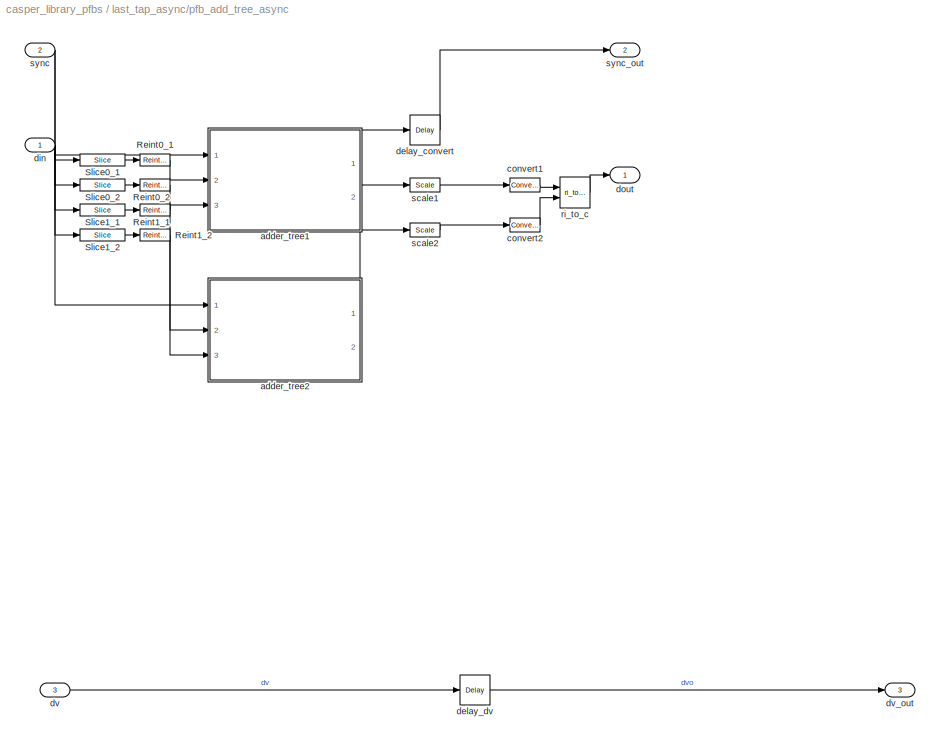
BLOCK [SubSystem] last_tap_async/pfb_add_tree_async
  AttributesFormatString = input(1), taps(2), add_lat(1)
  FunctionWithSeparateData = off
  MaskHideContents = off
  MinAlgLoopOccurrences = off
  Opaque = off
  Ports = [3, 3]
  PropExecContextOutsideSubsystem = off
  RTWSystemCode = Auto
  RequestExecContextInheritance = off
  SID = 4:12
  UserData = DataTag12
  UserDataPersistent = on
BLOCK [Reference] last_tap_async/pfb_add_tree_async/Reint0_1  REF=xbsIndex_r4/Reinterpret
  Ports = [1, 1]
  SID = 4:12:4
  SourceBlock = xbsIndex_r4/Reinterpret
  SourceType = Xilinx Type Reinterpreter Block
  arith_type = Signed  (2's comp)
  bin_pt = coeff_bits + data_in_bits - 2
  block_type = reinterpret
  block_version = 11.4
  force_arith_type = on
  force_bin_pt = on
  has_advanced_control = 0
  sg_icon_stat = 30,12,1,1,white,blue,0,6b04d0b0,right,,[ ],[ ]
  sggui_pos = 20,44,374,364
BLOCK [Reference] last_tap_async/pfb_add_tree_async/Reint0_2  REF=xbsIndex_r4/Reinterpret
  Ports = [1, 1]
  SID = 4:12:5
  SourceBlock = xbsIndex_r4/Reinterpret
  SourceType = Xilinx Type Reinterpreter Block
  arith_type = Signed  (2's comp)
  bin_pt = coeff_bits + data_in_bits - 2
  block_type = reinterpret
  block_version = 11.4
  force_arith_type = on
  force_bin_pt = on
  has_advanced_control = 0
  sg_icon_stat = 30,12,1,1,white,blue,0,6b04d0b0,right,,[ ],[ ]
  sggui_pos = -1,-1,-1,-1
BLOCK [Reference] last_tap_async/pfb_add_tree_async/Reint1_1  REF=xbsIndex_r4/Reinterpret
  Ports = [1, 1]
  SID = 4:12:6
  SourceBlock = xbsIndex_r4/Reinterpret
  SourceType = Xilinx Type Reinterpreter Block
  arith_type = Signed  (2's comp)
  bin_pt = coeff_bits + data_in_bits - 2
  block_type = reinterpret
  block_version = 11.4
  force_arith_type = on
  force_bin_pt = on
  has_advanced_control = 0
  sg_icon_stat = 30,12,1,1,white,blue,0,6b04d0b0,right,,[ ],[ ]
  sggui_pos = -1,-1,-1,-1
BLOCK [Reference] last_tap_async/pfb_add_tree_async/Reint1_2  REF=xbsIndex_r4/Reinterpret
  Ports = [1, 1]
  SID = 4:12:7
  SourceBlock = xbsIndex_r4/Reinterpret
  SourceType = Xilinx Type Reinterpreter Block
  arith_type = Signed  (2's comp)
  bin_pt = coeff_bits + data_in_bits - 2
  block_type = reinterpret
  block_version = 11.4
  force_arith_type = on
  force_bin_pt = on
  has_advanced_control = 0
  sg_icon_stat = 30,12,1,1,white,blue,0,6b04d0b0,right,,[ ],[ ]
  sggui_pos = -1,-1,-1,-1
BLOCK [Reference] last_tap_async/pfb_add_tree_async/Slice0_1  REF=xbsIndex_r4/Slice
  Ports = [1, 1]
  SID = 4:12:8
  SourceBlock = xbsIndex_r4/Slice
  SourceType = Xilinx Bit Slice Extractor Block
  base0 = MSB of Input
  base1 = MSB of Input
  bit0 = 0
  bit1 = 0
  block_type = slice
  block_version = 11.4
  boolean_output = off
  dbl_ovrd = off
  has_advanced_control = 0
  mode = Upper Bit Location + Width
  nbits = coeff_bits + data_in_bits
  sg_icon_stat = 45,12,1,1,white,blue,0,1fd851a7,right,,[ ],[ ]
  sggui_pos = 20,44,540,482
BLOCK [Reference] last_tap_async/pfb_add_tree_async/Slice0_2  REF=xbsIndex_r4/Slice
  Ports = [1, 1]
  SID = 4:12:9
  SourceBlock = xbsIndex_r4/Slice
  SourceType = Xilinx Bit Slice Extractor Block
  base0 = MSB of Input
  base1 = MSB of Input
  bit0 = 0
  bit1 = -16
  block_type = slice
  block_version = 11.4
  boolean_output = off
  dbl_ovrd = off
  has_advanced_control = 0
  mode = Upper Bit Location + Width
  nbits = coeff_bits + data_in_bits
  sg_icon_stat = 45,12,1,1,white,blue,0,1fd851a7,right,,[ ],[ ]
  sggui_pos = 20,44,540,482
BLOCK [Reference] last_tap_async/pfb_add_tree_async/Slice1_1  REF=xbsIndex_r4/Slice
  Ports = [1, 1]
  SID = 4:12:10
  SourceBlock = xbsIndex_r4/Slice
  SourceType = Xilinx Bit Slice Extractor Block
  base0 = MSB of Input
  base1 = MSB of Input
  bit0 = 0
  bit1 = -32
  block_type = slice
  block_version = 11.4
  boolean_output = off
  dbl_ovrd = off
  has_advanced_control = 0
  mode = Upper Bit Location + Width
  nbits = coeff_bits + data_in_bits
  sg_icon_stat = 45,12,1,1,white,blue,0,1fd851a7,right,,[ ],[ ]
  sggui_pos = -1,-1,-1,-1
BLOCK [Reference] last_tap_async/pfb_add_tree_async/Slice1_2  REF=xbsIndex_r4/Slice
  Ports = [1, 1]
  SID = 4:12:11
  SourceBlock = xbsIndex_r4/Slice
  SourceType = Xilinx Bit Slice Extractor Block
  base0 = MSB of Input
  base1 = MSB of Input
  bit0 = 0
  bit1 = -48
  block_type = slice
  block_version = 11.4
  boolean_output = off
  dbl_ovrd = off
  has_advanced_control = 0
  mode = Upper Bit Location + Width
  nbits = coeff_bits + data_in_bits
  sg_icon_stat = 45,12,1,1,white,blue,0,1fd851a7,right,,[ ],[ ]
  sggui_pos = -1,-1,-1,-1
BLOCK [SubSystem] last_tap_async/pfb_add_tree_async/adder_tree1
  AncestorBlock = casper_library_misc/adder_tree
  AttributesFormatString = latency 1
  FunctionWithSeparateData = off
  MaskHideContents = off
  MinAlgLoopOccurrences = off
  Opaque = off
  Ports = [3, 2]
  PropExecContextOutsideSubsystem = off
  RTWSystemCode = Auto
  RequestExecContextInheritance = off
  SID = 4:12:12
  UserData = DataTag13
  UserDataPersistent = on
BLOCK [Reference] last_tap_async/pfb_add_tree_async/adder_tree1/addr1  REF=xbsIndex_r4/AddSub
  Ports = [2, 1]
  SID = 4:12:12:4
  SourceBlock = xbsIndex_r4/AddSub
  SourceType = Xilinx Adder/Subtracter Block
  arith_type = Unsigned
  bin_pt = 14
  block_type = addsub
  block_version = 11.4
  dbl_ovrd = off
  en = off
  has_advanced_control = 0
  hw_selection = Fabric
  latency = 1
  mode = Addition
  n_bits = 16
  overflow = Wrap
  pipelined = on
  precision = Full
  quantization = Truncate
  sg_icon_stat = 40,60,2,1,white,blue,0,e85d8a90,right,,[ ],[ ]
  sggui_pos = 23,125,419,344
  use_behavioral_HDL = off
  use_carryin = off
  use_carryout = off
  use_rpm = on
  xl_area = [0,0,0,0,0,0,0]
  xl_use_area = off
BLOCK [Inport] last_tap_async/pfb_add_tree_async/adder_tree1/din1
  IconDisplay = Port number
  Port = 2
  SID = 4:12:12:2
BLOCK [Inport] last_tap_async/pfb_add_tree_async/adder_tree1/din2
  IconDisplay = Port number
  Port = 3
  SID = 4:12:12:3
BLOCK [Outport] last_tap_async/pfb_add_tree_async/adder_tree1/dout
  IconDisplay = Port number
  Port = 2
  SID = 4:12:12:7
BLOCK [Inport] last_tap_async/pfb_add_tree_async/adder_tree1/sync
  IconDisplay = Port number
  SID = 4:12:12:1
BLOCK [Reference] last_tap_async/pfb_add_tree_async/adder_tree1/sync_delay  REF=xbsIndex_r4/Delay
  Ports = [1, 1]
  SID = 4:12:12:5
  SourceBlock = xbsIndex_r4/Delay
  SourceType = Xilinx Delay Block
  block_type = delay
  block_version = 11.4
  dbl_ovrd = off
  en = off
  has_advanced_control = 0
  infoedit = Hardware notes: A delay line is a chain, each link of which is an SRL16 followed by a flip-flop.
  infoeditControl = Selection of Reset will increase slice count due to use of real FFs and instead of SRLs
  latency = 1
  reg_retiming = on
  rst = off
  sg_icon_stat = 30,30,1,1,white,blue,0,07b98262,right,,[ ],[ ]
  sggui_pos = 21,71,419,315
  xl_area = [0,0,0,0,0,0,0]
  xl_use_area = off
BLOCK [Outport] last_tap_async/pfb_add_tree_async/adder_tree1/sync_out
  IconDisplay = Port number
  SID = 4:12:12:6
BLOCK [SubSystem] last_tap_async/pfb_add_tree_async/adder_tree2
  AncestorBlock = casper_library_misc/adder_tree
  AttributesFormatString = latency 1
  FunctionWithSeparateData = off
  MaskHideContents = off
  MinAlgLoopOccurrences = off
  Opaque = off
  Ports = [3, 2]
  PropExecContextOutsideSubsystem = off
  RTWSystemCode = Auto
  RequestExecContextInheritance = off
  SID = 4:12:13
  UserData = DataTag14
  UserDataPersistent = on
BLOCK [Reference] last_tap_async/pfb_add_tree_async/adder_tree2/addr1  REF=xbsIndex_r4/AddSub
  Ports = [2, 1]
  SID = 4:12:13:4
  SourceBlock = xbsIndex_r4/AddSub
  SourceType = Xilinx Adder/Subtracter Block
  arith_type = Unsigned
  bin_pt = 14
  block_type = addsub
  block_version = 11.4
  dbl_ovrd = off
  en = off
  has_advanced_control = 0
  hw_selection = Fabric
  latency = 1
  mode = Addition
  n_bits = 16
  overflow = Wrap
  pipelined = on
  precision = Full
  quantization = Truncate
  sg_icon_stat = 40,60,2,1,white,blue,0,e85d8a90,right,,[ ],[ ]
  sggui_pos = 23,125,419,344
  use_behavioral_HDL = off
  use_carryin = off
  use_carryout = off
  use_rpm = on
  xl_area = [0,0,0,0,0,0,0]
  xl_use_area = off
BLOCK [Inport] last_tap_async/pfb_add_tree_async/adder_tree2/din1
  IconDisplay = Port number
  Port = 2
  SID = 4:12:13:2
BLOCK [Inport] last_tap_async/pfb_add_tree_async/adder_tree2/din2
  IconDisplay = Port number
  Port = 3
  SID = 4:12:13:3
BLOCK [Outport] last_tap_async/pfb_add_tree_async/adder_tree2/dout
  IconDisplay = Port number
  Port = 2
  SID = 4:12:13:7
BLOCK [Inport] last_tap_async/pfb_add_tree_async/adder_tree2/sync
  IconDisplay = Port number
  SID = 4:12:13:1
BLOCK [Reference] last_tap_async/pfb_add_tree_async/adder_tree2/sync_delay  REF=xbsIndex_r4/Delay
  Ports = [1, 1]
  SID = 4:12:13:5
  SourceBlock = xbsIndex_r4/Delay
  SourceType = Xilinx Delay Block
  block_type = delay
  block_version = 11.4
  dbl_ovrd = off
  en = off
  has_advanced_control = 0
  infoedit = Hardware notes: A delay line is a chain, each link of which is an SRL16 followed by a flip-flop.
  infoeditControl = Selection of Reset will increase slice count due to use of real FFs and instead of SRLs
  latency = 1
  reg_retiming = on
  rst = off
  sg_icon_stat = 30,30,1,1,white,blue,0,07b98262,right,,[ ],[ ]
  sggui_pos = 21,71,419,315
  xl_area = [0,0,0,0,0,0,0]
  xl_use_area = off
BLOCK [Outport] last_tap_async/pfb_add_tree_async/adder_tree2/sync_out
  IconDisplay = Port number
  SID = 4:12:13:6
BLOCK [Reference] last_tap_async/pfb_add_tree_async/convert1  REF=xbsIndex_r4/Convert
  Ports = [1, 1]
  SID = 4:12:14
  SourceBlock = xbsIndex_r4/Convert
  SourceType = Xilinx Type Converter Block
  arith_type = Signed  (2's comp)
  bin_pt = data_out_bits-1
  block_type = convert
  block_version = 11.4
  dbl_ovrd = off
  en = off
  exp_bits = 8
  float_type = Single
  fraction_bits = 24
  gui_display_data_type = Fixed-point
  has_advanced_control = 0
  infoedit = Hardware notes: rounding and saturating require hardware resources; truncating and wrapping do not.
  latency = add_latency
  n_bits = data_out_bits
  overflow = Saturate
  pipeline = on
  quantization = Truncate
  sg_icon_stat = 30,14,1,1,white,blue,0,0c6bad53,right,,[ ],[ ]
  sg_mask_display = fprintf('','COMMENT: begin icon graphics');\npatch([0 45 45 0 0 ],[0 0 30 30 0 ],[0.77 0.82 0.91 ]);\nplot([0 45 45 0 0 ],[0 0 30 30 0 ]);\npatch([13.1 18.88 22.88 26.88 30.88 22.88 17.1 13.1 ],[19.44 19.44 23.44 19.44 23.44 23.44 23.44 19.44 ],[1 1 1 ]);\npatch([17.1 22.88 18.88 13.1 17.1 ],[15.44 15.44 19.44 19.44 15.44 ],[0.931 0.946 0.973 ]);\npatch([13.1 18.88 22.88 17.1 13.1 ],[11.44 11.44 1...<+314ch>
  sggui_pos = 20,44,538,429
  xl_area = [0,0,0,0,0,0,0]
  xl_use_area = off
BLOCK [Reference] last_tap_async/pfb_add_tree_async/convert2  REF=xbsIndex_r4/Convert
  Ports = [1, 1]
  SID = 4:12:15
  SourceBlock = xbsIndex_r4/Convert
  SourceType = Xilinx Type Converter Block
  arith_type = Signed  (2's comp)
  bin_pt = data_out_bits-1
  block_type = convert
  block_version = 11.4
  dbl_ovrd = off
  en = off
  exp_bits = 8
  float_type = Single
  fraction_bits = 24
  gui_display_data_type = Fixed-point
  has_advanced_control = 0
  infoedit = Hardware notes: rounding and saturating require hardware resources; truncating and wrapping do not.
  latency = add_latency
  n_bits = data_out_bits
  overflow = Saturate
  pipeline = on
  quantization = Truncate
  sg_icon_stat = 30,14,1,1,white,blue,0,0c6bad53,right,,[ ],[ ]
  sg_mask_display = fprintf('','COMMENT: begin icon graphics');\npatch([0 45 45 0 0 ],[0 0 30 30 0 ],[0.77 0.82 0.91 ]);\nplot([0 45 45 0 0 ],[0 0 30 30 0 ]);\npatch([13.1 18.88 22.88 26.88 30.88 22.88 17.1 13.1 ],[19.44 19.44 23.44 19.44 23.44 23.44 23.44 19.44 ],[1 1 1 ]);\npatch([17.1 22.88 18.88 13.1 17.1 ],[15.44 15.44 19.44 19.44 15.44 ],[0.931 0.946 0.973 ]);\npatch([13.1 18.88 22.88 17.1 13.1 ],[11.44 11.44 1...<+314ch>
  sggui_pos = 20,44,538,429
  xl_area = [0,0,0,0,0,0,0]
  xl_use_area = off
BLOCK [Reference] last_tap_async/pfb_add_tree_async/delay_convert  REF=xbsIndex_r4/Delay
  Ports = [1, 1]
  SID = 4:12:16
  SourceBlock = xbsIndex_r4/Delay
  SourceType = Xilinx Delay Block
  block_type = delay
  block_version = 11.4
  dbl_ovrd = off
  en = off
  has_advanced_control = 0
  infoedit = Hardware notes: A delay line is a chain, each link of which is an SRL16 followed by a flip-flop.
  infoeditControl = Selection of Reset will increase slice count due to use of real FFs and instead of SRLs
  latency = add_latency
  reg_retiming = off
  rst = off
  sg_icon_stat = 30,30,1,1,white,blue,0,07b98262,right,,[ ],[ ]
  sggui_pos = 20,44,419,315
  xl_area = [0,0,0,0,0,0,0]
  xl_use_area = off
BLOCK [Reference] last_tap_async/pfb_add_tree_async/delay_dv  REF=xbsIndex_r4/Delay
  Ports = [1, 1]
  SID = 4:12:17
  SourceBlock = xbsIndex_r4/Delay
  SourceType = Xilinx Delay Block
  block_type = delay
  block_version = 11.4
  dbl_ovrd = off
  en = off
  has_advanced_control = 0
  infoedit = Hardware notes: A delay line is a chain, each link of which is an SRL16 followed by a flip-flop.
  infoeditControl = Selection of Reset will increase slice count due to use of real FFs and instead of SRLs
  latency = 2
  reg_retiming = off
  rst = off
  sg_icon_stat = 30,30,1,1,white,blue,0,85ce9542,right,,[ ],[ ]
  sg_mask_display = fprintf('','COMMENT: begin icon graphics');\npatch([0 30 30 0 0 ],[0 0 30 30 0 ],[0.77 0.82 0.91 ]);\nplot([0 30 30 0 0 ],[0 0 30 30 0 ]);\npatch([6.1 11.88 15.88 19.88 23.88 15.88 10.1 6.1 ],[19.44 19.44 23.44 19.44 23.44 23.44 23.44 19.44 ],[1 1 1 ]);\npatch([10.1 15.88 11.88 6.1 10.1 ],[15.44 15.44 19.44 19.44 15.44 ],[0.931 0.946 0.973 ]);\npatch([6.1 11.88 15.88 10.1 6.1 ],[11.44 11.44 15.44 ...<+310ch>
  sggui_pos = 20,44,419,315
  xl_area = [0,0,0,0,0,0,0]
  xl_use_area = off
BLOCK [Inport] last_tap_async/pfb_add_tree_async/din
  IconDisplay = Port number
  SID = 4:12:1
BLOCK [Outport] last_tap_async/pfb_add_tree_async/dout
  IconDisplay = Port number
  SID = 4:12:21
BLOCK [Inport] last_tap_async/pfb_add_tree_async/dv
  IconDisplay = Port number
  Port = 3
  SID = 4:12:3
BLOCK [Outport] last_tap_async/pfb_add_tree_async/dv_out
  IconDisplay = Port number
  Port = 3
  SID = 4:12:23
BLOCK [Reference] last_tap_async/pfb_add_tree_async/ri_to_c  REF=casper_library_misc/ri_to_c  (lib defined in mdl_357510c33b49, mdl_57b5f564ae26, +4 more)
  Ports = [2, 1]
  SID = 4:12:18
  SourceBlock = casper_library_misc/ri_to_c
  SourceType = ri_to_c
  UserData = DataTag15
  UserDataPersistent = on
BLOCK [Reference] last_tap_async/pfb_add_tree_async/scale1  REF=xbsIndex_r4/Scale
  Ports = [1, 1]
  SID = 4:12:19
  SourceBlock = xbsIndex_r4/Scale
  SourceType = Xilinx Input Scaler Block
  block_type = scale
  block_version = 11.4
  dbl_ovrd = off
  has_advanced_control = 0
  infoedit = Scales input by a power of two by adjusting the binary point position.<br><br>Hardware notes: In hardware this block costs nothing.
  scale_factor = -2
  sg_icon_stat = 30,14,1,1,white,blue,0,0459bb18,right,,[ ],[ ]
  sggui_pos = -1,-1,-1,-1
BLOCK [Reference] last_tap_async/pfb_add_tree_async/scale2  REF=xbsIndex_r4/Scale
  Ports = [1, 1]
  SID = 4:12:20
  SourceBlock = xbsIndex_r4/Scale
  SourceType = Xilinx Input Scaler Block
  block_type = scale
  block_version = 11.4
  dbl_ovrd = off
  has_advanced_control = 0
  infoedit = Scales input by a power of two by adjusting the binary point position.<br><br>Hardware notes: In hardware this block costs nothing.
  scale_factor = -2
  sg_icon_stat = 30,14,1,1,white,blue,0,0459bb18,right,,[ ],[ ]
  sggui_pos = 20,44,348,233
BLOCK [Inport] last_tap_async/pfb_add_tree_async/sync
  IconDisplay = Port number
  Port = 2
  SID = 4:12:2
BLOCK [Outport] last_tap_async/pfb_add_tree_async/sync_out
  IconDisplay = Port number
  Port = 2
  SID = 4:12:22
BLOCK [SubSystem] last_tap_async/ri_to_c
  FunctionWithSeparateData = off
  MaskHideContents = off
  MinAlgLoopOccurrences = off
  Opaque = off
  Ports = [2, 1]
  PropExecContextOutsideSubsystem = off
  RTWSystemCode = Auto
  RequestExecContextInheritance = off
  SID = 4:13
BLOCK [Reference] last_tap_async/ri_to_c/Concat  REF=xbsIndex_r4/Concat
  Ports = [2, 1]
  SID = 4:16
  SourceBlock = xbsIndex_r4/Concat
  SourceType = Xilinx Bus Concatenator Block
  block_type = concat
  block_version = 9.1.01
  dbl_ovrd = off
  has_advanced_control = 0
  infoedit = Concatenates two or more inputs.  Output will be cast to an unsigned value with the binary point at zero.
  num_inputs = 2
  sg_icon_stat = 50,55,2,1,white,blue,0,16398980,right,,[ ],[ ]
  sggui_pos = -1,-1,-1,-1
BLOCK [Reference] last_tap_async/ri_to_c/Reinterpret  REF=xbsIndex_r4/Reinterpret
  Ports = [1, 1]
  SID = 4:17
  SourceBlock = xbsIndex_r4/Reinterpret
  SourceType = Xilinx Type Reinterpreter Block
  arith_type = Unsigned
  bin_pt = 0
  block_type = reinterpret
  block_version = 9.1.01
  force_arith_type = on
  force_bin_pt = on
  has_advanced_control = 0
  sg_icon_stat = 40,32,1,1,white,blue,0,6b04d0b0,right,,[ ],[ ]
  sg_mask_display = fprintf('','COMMENT: begin icon graphics');\npatch([0 40 40 0 0 ],[0 0 32 32 0 ],[0.77 0.82 0.91 ]);\nplot([0 40 40 0 0 ],[0 0 32 32 0 ]);\npatch([11.1 16.88 20.88 24.88 28.88 20.88 15.1 11.1 ],[20.44 20.44 24.44 20.44 24.44 24.44 24.44 20.44 ],[1 1 1 ]);\npatch([15.1 20.88 16.88 11.1 15.1 ],[16.44 16.44 20.44 20.44 16.44 ],[0.931 0.946 0.973 ]);\npatch([11.1 16.88 20.88 15.1 11.1 ],[12.44 12.44 1...<+308ch>  <repeated x8 — deduplicated; at blocks: Reinterpret, Reinterpret1, Reinterpret2, Reinterpret3, Reinterpret4>
  sggui_pos = -1,-1,-1,-1
BLOCK [Reference] last_tap_async/ri_to_c/Reinterpret1  REF=xbsIndex_r4/Reinterpret
  Ports = [1, 1]
  SID = 4:18
  SourceBlock = xbsIndex_r4/Reinterpret
  SourceType = Xilinx Type Reinterpreter Block
  arith_type = Unsigned
  bin_pt = 0
  block_type = reinterpret
  block_version = 9.1.01
  force_arith_type = on
  force_bin_pt = on
  has_advanced_control = 0
  sg_icon_stat = 40,32,1,1,white,blue,0,6b04d0b0,right,,[ ],[ ]
  sggui_pos = -1,-1,-1,-1
BLOCK [Outport] last_tap_async/ri_to_c/c
  IconDisplay = Port number
  SID = 4:19
BLOCK [Inport] last_tap_async/ri_to_c/im
  IconDisplay = Port number
  Port = 2
  SID = 4:15
BLOCK [Inport] last_tap_async/ri_to_c/re
  IconDisplay = Port number
  SID = 4:14
BLOCK [Reference] last_tap_async/split_data  REF=casper_library_flow_control/bus_expand  (lib defined in mdl_5c20b51ea67c, mdl_83efbf0f8acb, +3 more)
  AttributesFormatString = 2 outputs
  Ports = [1, 2]
  SID = 4:20
  SourceBlock = casper_library_flow_control/bus_expand
  SourceType = bus_expand
  UserData = DataTag16
  UserDataPersistent = on
  mode = divisions of equal size
  outputArithmeticType = 1
  outputBinaryPt = 7
  outputNum = 2
  outputToModelAsWell = on
  outputToWorkspace = off
  outputWidth = 8
  show_format = off
  variablePrefix = out
BLOCK [Inport] last_tap_async/sync
  IconDisplay = Port number
  Port = 2
  SID = 4:2
BLOCK [Outport] last_tap_async/sync_out
  IconDisplay = Port number
  Port = 2
  SID = 4:22
BLOCK [Inport] last_tap_async/taps_in
  IconDisplay = Port number
  Port = 5
  SID = 4:5
BLOCK [SubSystem] last_tap_real
  FunctionWithSeparateData = off
  MaskHideContents = off
  MinAlgLoopOccurrences = off
  Opaque = off
  Ports = [3, 2]
  PropExecContextOutsideSubsystem = off
  RTWSystemCode = Auto
  RequestExecContextInheritance = off
  SID = 5
  UserData = DataTag17
  UserDataPersistent = on
BLOCK [Reference] last_tap_real/Delay  REF=xbsIndex_r4/Delay
  Ports = [1, 1]
  SID = 5:4
  SourceBlock = xbsIndex_r4/Delay
  SourceType = Xilinx Delay Block
  block_type = delay
  block_version = 9.1.01
  dbl_ovrd = off
  en = off
  has_advanced_control = 0
  infoedit = Hardware notes: A delay line is a chain, each link of which is an SRL16 followed by a flip-flop.
  infoeditControl = Selection of Reset will increase slice count due to use of real FFs and instead of SRLs
  latency = mult_latency
  reg_retiming = off
  rst = off
  sg_icon_stat = 45,46,1,1,white,blue,0,85ce9542,right,,[ ],[ ]
  sggui_pos = 20,20,348,255
  xl_area = [0, 0, 0, 0, 0, 0, 0]
  xl_use_area = off
BLOCK [Reference] last_tap_real/Mult  REF=xbsIndex_r4/Mult
  Ports = [2, 1]
  SID = 5:5
  SourceBlock = xbsIndex_r4/Mult
  SourceType = Xilinx Multiplier Block
  arith_type = Signed  (2's comp)
  bin_pt = 2
  block_type = mult
  block_version = 9.1.01
  dbl_ovrd = off
  en = off
  has_advanced_control = 0
  infoedit = Hardware notes: To use the internal pipeline stage of the dedicated multiplier you must select 'Pipeline for maximum performance'.
  latency = mult_latency
  n_bits = 8
  opt = Speed
  optimum_pipeline = off
  overflow = Wrap
  pipeline = on
  placement_style = Rectangular shape
  precision = Full
  quantization = Truncate
  sg_icon_stat = 50,51,2,1,white,blue,0,2fbe4d8a,right,,[ ],[ ]
  sggui_pos = 20,20,348,434
  use_behavioral_HDL = on
  use_embedded = off
  use_rpm = on
  xl_area = [0, 0, 0, 0, 0, 0, 0]
  xl_use_area = off
BLOCK [Reference] last_tap_real/Reinterpret  REF=xbsIndex_r4/Reinterpret
  Ports = [1, 1]
  SID = 5:6
  SourceBlock = xbsIndex_r4/Reinterpret
  SourceType = Xilinx Type Reinterpreter Block
  arith_type = Signed  (2's comp)
  bin_pt = CoeffBitWidth - 1
  block_type = reinterpret
  block_version = 9.1.01
  force_arith_type = on
  force_bin_pt = on
  has_advanced_control = 0
  sg_icon_stat = 40,32,1,1,white,blue,0,6b04d0b0,right,,[ ],[ ]
  sggui_pos = -1,-1,-1,-1
BLOCK [Reference] last_tap_real/Reinterpret1  REF=xbsIndex_r4/Reinterpret
  Ports = [1, 1]
  SID = 5:7
  SourceBlock = xbsIndex_r4/Reinterpret
  SourceType = Xilinx Type Reinterpreter Block
  arith_type = Signed  (2's comp)
  bin_pt = BitWidthIn - 1
  block_type = reinterpret
  block_version = 9.1.01
  force_arith_type = on
  force_bin_pt = on
  has_advanced_control = 0
  sg_icon_stat = 40,32,1,1,white,blue,0,6b04d0b0,right,,[ ],[ ]
  sggui_pos = -1,-1,-1,-1
BLOCK [Inport] last_tap_real/coeff
  IconDisplay = Port number
  Port = 3
  SID = 5:3
BLOCK [Inport] last_tap_real/din
  IconDisplay = Port number
  SID = 5:1
BLOCK [Inport] last_tap_real/sync
  IconDisplay = Port number
  Port = 2
  SID = 5:2
BLOCK [Outport] last_tap_real/sync_out
  IconDisplay = Port number
  Port = 2
  SID = 5:9
BLOCK [Outport] last_tap_real/tap_out
  IconDisplay = Port number
  SID = 5:8
BLOCK [SubSystem] pfb_coeff_gen
  AttributesFormatString = PFBSize=2, n_inputs=0,\ntaps=4, input=0
  FunctionWithSeparateData = off
  MaskHideContents = off
  MinAlgLoopOccurrences = off
  Opaque = off
  Ports = [2, 3]
  PropExecContextOutsideSubsystem = off
  RTWSystemCode = Auto
  RequestExecContextInheritance = off
  SID = 6
  UserData = DataTag18
  UserDataPersistent = on
BLOCK [Reference] pfb_coeff_gen/Concat  REF=xbsIndex_r4/Concat
  Ports = [4, 1]
  SID = 6:3
  SourceBlock = xbsIndex_r4/Concat
  SourceType = Xilinx Bus Concatenator Block
  block_type = concat
  block_version = 9.1.01
  dbl_ovrd = off
  has_advanced_control = 0
  infoedit = Concatenates two or more inputs.  Output will be cast to an unsigned value with the binary point at zero.
  num_inputs = 4
  sg_icon_stat = 55,547,4,1,white,blue,0,47d3d416,right,,[ ],[ ]
  sg_mask_display = fprintf('','COMMENT: begin icon graphics');\npatch([0 55 55 0 0 ],[0 0 547 547 0 ],[0.77 0.82 0.91 ]);\nplot([0 55 55 0 0 ],[0 0 547 547 0 ]);\npatch([11.425 21.54 28.54 35.54 42.54 28.54 18.425 11.425 ],[280.77 280.77 287.77 280.77 287.77 287.77 287.77 280.77 ],[1 1 1 ]);\npatch([18.425 28.54 21.54 11.425 18.425 ],[273.77 273.77 280.77 280.77 273.77 ],[0.931 0.946 0.973 ]);\npatch([11.425 21.54 2...<+474ch>
  sggui_pos = -1,-1,-1,-1
BLOCK [Reference] pfb_coeff_gen/Counter  REF=xbsIndex_r4/Counter
  Ports = [1, 1]
  SID = 6:4
  SourceBlock = xbsIndex_r4/Counter
  SourceType = Xilinx Counter Block
  arith_type = Unsigned
  bin_pt = 0
  block_type = counter
  block_version = 9.1.01
  cnt_by_val = 1
  cnt_to = Inf
  cnt_type = Free Running
  dbl_ovrd = off
  en = off
  explicit_period = on
  has_advanced_control = 0
  implementation = Fabric
  infoedit = Hardware notes: Free running counters are the least expensive in hardware.  A count limited counter is implemented by combining a counter with a comparator.
  load_pin = off
  n_bits = 2
  operation = Up
  period = 1
  rst = on
  sg_icon_stat = 50,50,1,1,white,blue,0,803eba70,right,,[ ],[ ]
  sg_mask_display = fprintf('','COMMENT: begin icon graphics');\npatch([0 60 60 0 0 ],[0 0 60 60 0 ],[0.77 0.82 0.91 ]);\nplot([0 60 60 0 0 ],[0 0 60 60 0 ]);\npatch([12.2 23.76 31.76 39.76 47.76 31.76 20.2 12.2 ],[38.88 38.88 46.88 38.88 46.88 46.88 46.88 38.88 ],[1 1 1 ]);\npatch([20.2 31.76 23.76 12.2 20.2 ],[30.88 30.88 38.88 38.88 30.88 ],[0.931 0.946 0.973 ]);\npatch([12.2 23.76 31.76 20.2 12.2 ],[22.88 22.88 3...<+334ch>  <repeated x3 — deduplicated; at blocks: Counter, addr_ctr>
  sggui_pos = -1,-1,-1,-1
  start_count = 0
  use_behavioral_HDL = off
  use_rpm = on
  xl_area = [0, 0, 0, 0, 0, 0, 0]
  xl_use_area = off
BLOCK [Reference] pfb_coeff_gen/Delay  REF=xbsIndex_r4/Delay
  Ports = [1, 1]
  SID = 6:5
  SourceBlock = xbsIndex_r4/Delay
  SourceType = Xilinx Delay Block
  block_type = delay
  block_version = 9.1.01
  dbl_ovrd = off
  en = off
  has_advanced_control = 0
  infoedit = Hardware notes: A delay line is a chain, each link of which is an SRL16 followed by a flip-flop.
  infoeditControl = Selection of Reset will increase slice count due to use of real FFs and instead of SRLs
  latency = bram_latency+1
  reg_retiming = off
  rst = off
  sg_icon_stat = 45,46,1,1,white,blue,0,83e6bb61,right,,[ ],[ ]
  sggui_pos = 1257,74,419,315
  xl_area = [0, 0, 0, 0, 0, 0, 0]
  xl_use_area = off
BLOCK [Reference] pfb_coeff_gen/Delay1  REF=xbsIndex_r4/Delay
  Ports = [1, 1]
  SID = 6:6
  SourceBlock = xbsIndex_r4/Delay
  SourceType = Xilinx Delay Block
  block_type = delay
  block_version = 9.1.01
  dbl_ovrd = off
  en = off
  has_advanced_control = 0
  infoedit = Hardware notes: A delay line is a chain, each link of which is an SRL16 followed by a flip-flop.
  infoeditControl = Selection of Reset will increase slice count due to use of real FFs and instead of SRLs
  latency = bram_latency+1
  reg_retiming = off
  rst = off
  sg_icon_stat = 45,46,1,1,white,blue,0,83e6bb61,right,,[ ],[ ]
  sggui_pos = 20,44,419,315
  xl_area = [0, 0, 0, 0, 0, 0, 0]
  xl_use_area = off
BLOCK [Reference] pfb_coeff_gen/ROM1  REF=xbsIndex_r4/ROM
  Ports = [1, 1]
  SID = 6:7
  SourceBlock = xbsIndex_r4/ROM
  SourceType = Xilinx Single Port Read-Only Memory Block
  arith_type = Signed  (2's comp)
  bin_pt = 7
  block_type = sprom
  block_version = 9.1.01
  dbl_ovrd = off
  depth = 4
  distributed_mem = Block RAM
  en = off
  exp_width = 8
  frac_width = 24
  gui_display_data_type = Fixed-point
  has_advanced_control = 0
  initVector = pfb_coeff_gen_calc(2, 4,'hamming',0, 0,1,1)
  init_reg = 0
  latency = bram_latency
  n_bits = 8
  optimize = Area
  preci_type = Single
  rst = off
  sg_icon_stat = 50,52,1,1,white,blue,0,13b85882,right,,[ ],[ ]
  sg_mask_display = fprintf('','COMMENT: begin icon graphics');\npatch([0 60 60 0 0 ],[0 0 56 56 0 ],[0.77 0.82 0.91 ]);\nplot([0 60 60 0 0 ],[0 0 56 56 0 ]);\npatch([12.2 23.76 31.76 39.76 47.76 31.76 20.2 12.2 ],[36.88 36.88 44.88 36.88 44.88 44.88 44.88 36.88 ],[1 1 1 ]);\npatch([20.2 31.76 23.76 12.2 20.2 ],[28.88 28.88 36.88 36.88 28.88 ],[0.931 0.946 0.973 ]);\npatch([12.2 23.76 31.76 20.2 12.2 ],[20.88 20.88 2...<+364ch>  <repeated x4 — deduplicated; at blocks: ROM1, ROM2, ROM3, ROM4>
  sggui_pos = 20,44,419,340
  use_rpm = on
  xl_area = [0, 0, 0, 0, 0, 0, 0]
  xl_use_area = off
BLOCK [Reference] pfb_coeff_gen/ROM2  REF=xbsIndex_r4/ROM
  Ports = [1, 1]
  SID = 6:8
  SourceBlock = xbsIndex_r4/ROM
  SourceType = Xilinx Single Port Read-Only Memory Block
  arith_type = Signed  (2's comp)
  bin_pt = 7
  block_type = sprom
  block_version = 9.1.01
  dbl_ovrd = off
  depth = 4
  distributed_mem = Block RAM
  en = off
  exp_width = 8
  frac_width = 24
  gui_display_data_type = Fixed-point
  has_advanced_control = 0
  initVector = pfb_coeff_gen_calc(2, 4,'hamming',0, 0,1,2)
  init_reg = 0
  latency = bram_latency
  n_bits = 8
  optimize = Area
  preci_type = Single
  rst = off
  sg_icon_stat = 50,52,1,1,white,blue,0,13b85882,right,,[ ],[ ]
  sggui_pos = 20,44,419,340
  use_rpm = on
  xl_area = [0, 0, 0, 0, 0, 0, 0]
  xl_use_area = off
BLOCK [Reference] pfb_coeff_gen/ROM3  REF=xbsIndex_r4/ROM
  Ports = [1, 1]
  SID = 6:9
  SourceBlock = xbsIndex_r4/ROM
  SourceType = Xilinx Single Port Read-Only Memory Block
  arith_type = Signed  (2's comp)
  bin_pt = 7
  block_type = sprom
  block_version = 9.1.01
  dbl_ovrd = off
  depth = 4
  distributed_mem = Block RAM
  en = off
  exp_width = 8
  frac_width = 24
  gui_display_data_type = Fixed-point
  has_advanced_control = 0
  initVector = pfb_coeff_gen_calc(2, 4,'hamming',0, 0,1,3)
  init_reg = 0
  latency = bram_latency
  n_bits = 8
  optimize = Area
  preci_type = Single
  rst = off
  sg_icon_stat = 50,52,1,1,white,blue,0,13b85882,right,,[ ],[ ]
  sggui_pos = 20,44,419,340
  use_rpm = on
  xl_area = [0, 0, 0, 0, 0, 0, 0]
  xl_use_area = off
BLOCK [Reference] pfb_coeff_gen/ROM4  REF=xbsIndex_r4/ROM
  Ports = [1, 1]
  SID = 6:10
  SourceBlock = xbsIndex_r4/ROM
  SourceType = Xilinx Single Port Read-Only Memory Block
  arith_type = Signed  (2's comp)
  bin_pt = 7
  block_type = sprom
  block_version = 9.1.01
  dbl_ovrd = off
  depth = 4
  distributed_mem = Block RAM
  en = off
  exp_width = 8
  frac_width = 24
  gui_display_data_type = Fixed-point
  has_advanced_control = 0
  initVector = pfb_coeff_gen_calc(2, 4,'hamming',0, 0,1,4)
  init_reg = 0
  latency = bram_latency
  n_bits = 8
  optimize = Area
  preci_type = Single
  rst = off
  sg_icon_stat = 50,52,1,1,white,blue,0,13b85882,right,,[ ],[ ]
  sggui_pos = 20,44,419,340
  use_rpm = on
  xl_area = [0, 0, 0, 0, 0, 0, 0]
  xl_use_area = off
BLOCK [Reference] pfb_coeff_gen/Register  REF=xbsIndex_r4/Register
  Ports = [1, 1]
  SID = 6:11
  SourceBlock = xbsIndex_r4/Register
  SourceType = Xilinx Register Block
  block_type = register
  block_version = 9.1.01
  dbl_ovrd = off
  en = off
  has_advanced_control = 0
  init = 0
  rst = off
  sg_icon_stat = 45,50,1,1,white,blue,0,c80657c5,right,,[ ],[ ]
  sg_mask_display = fprintf('','COMMENT: begin icon graphics');\npatch([0 45 45 0 0 ],[0 0 50 50 0 ],[0.77 0.82 0.91 ]);\nplot([0 45 45 0 0 ],[0 0 50 50 0 ]);\npatch([8.65 17.32 23.32 29.32 35.32 23.32 14.65 8.65 ],[31.66 31.66 37.66 31.66 37.66 37.66 37.66 31.66 ],[1 1 1 ]);\npatch([14.65 23.32 17.32 8.65 14.65 ],[25.66 25.66 31.66 31.66 25.66 ],[0.931 0.946 0.973 ]);\npatch([8.65 17.32 23.32 14.65 8.65 ],[19.66 19....<+409ch>
  sggui_pos = 1700,25,419,209
  xl_area = [0, 0, 0, 0, 0, 0, 0]
  xl_use_area = off
BLOCK [Reference] pfb_coeff_gen/Reinterpret1  REF=xbsIndex_r4/Reinterpret
  Ports = [1, 1]
  SID = 6:12
  SourceBlock = xbsIndex_r4/Reinterpret
  SourceType = Xilinx Type Reinterpreter Block
  arith_type = Unsigned
  bin_pt = 0
  block_type = reinterpret
  block_version = 9.1.01
  force_arith_type = on
  force_bin_pt = on
  has_advanced_control = 0
  sg_icon_stat = 40,32,1,1,white,blue,0,6b04d0b0,right,,[ ],[ ]
  sggui_pos = -1,-1,-1,-1
BLOCK [Reference] pfb_coeff_gen/Reinterpret2  REF=xbsIndex_r4/Reinterpret
  Ports = [1, 1]
  SID = 6:13
  SourceBlock = xbsIndex_r4/Reinterpret
  SourceType = Xilinx Type Reinterpreter Block
  arith_type = Unsigned
  bin_pt = 0
  block_type = reinterpret
  block_version = 9.1.01
  force_arith_type = on
  force_bin_pt = on
  has_advanced_control = 0
  sg_icon_stat = 40,32,1,1,white,blue,0,6b04d0b0,right,,[ ],[ ]
  sggui_pos = -1,-1,-1,-1
BLOCK [Reference] pfb_coeff_gen/Reinterpret3  REF=xbsIndex_r4/Reinterpret
  Ports = [1, 1]
  SID = 6:14
  SourceBlock = xbsIndex_r4/Reinterpret
  SourceType = Xilinx Type Reinterpreter Block
  arith_type = Unsigned
  bin_pt = 0
  block_type = reinterpret
  block_version = 9.1.01
  force_arith_type = on
  force_bin_pt = on
  has_advanced_control = 0
  sg_icon_stat = 40,32,1,1,white,blue,0,6b04d0b0,right,,[ ],[ ]
  sggui_pos = -1,-1,-1,-1
BLOCK [Reference] pfb_coeff_gen/Reinterpret4  REF=xbsIndex_r4/Reinterpret
  Ports = [1, 1]
  SID = 6:15
  SourceBlock = xbsIndex_r4/Reinterpret
  SourceType = Xilinx Type Reinterpreter Block
  arith_type = Unsigned
  bin_pt = 0
  block_type = reinterpret
  block_version = 9.1.01
  force_arith_type = on
  force_bin_pt = on
  has_advanced_control = 0
  sg_icon_stat = 40,32,1,1,white,blue,0,6b04d0b0,right,,[ ],[ ]
  sggui_pos = -1,-1,-1,-1
BLOCK [Outport] pfb_coeff_gen/coeff
  IconDisplay = Port number
  Port = 3
  SID = 6:22
BLOCK [Inport] pfb_coeff_gen/din
  IconDisplay = Port number
  SID = 6:1
BLOCK [Outport] pfb_coeff_gen/dout
  IconDisplay = Port number
  SID = 6:20
BLOCK [Reference] pfb_coeff_gen/fan_delay1  REF=xbsIndex_r4/Delay
  Ports = [1, 1]
  SID = 6:16
  SourceBlock = xbsIndex_r4/Delay
  SourceType = Xilinx Delay Block
  block_type = delay
  block_version = 11.4
  dbl_ovrd = off
  en = off
  has_advanced_control = 0
  infoedit = Hardware notes: A delay line is a chain, each link of which is an SRL16 followed by a flip-flop.
  infoeditControl = Selection of Reset will increase slice count due to use of real FFs and instead of SRLs
  latency = fan_latency
  reg_retiming = off
  rst = off
  sg_icon_stat = 30,52,1,1,white,blue,0,07b98262,right,,[ ],[ ]
  sggui_pos = -1,-1,-1,-1
  xl_area = [0,0,0,0,0,0,0]
  xl_use_area = off
BLOCK [Reference] pfb_coeff_gen/fan_delay2  REF=xbsIndex_r4/Delay
  Ports = [1, 1]
  SID = 6:17
  SourceBlock = xbsIndex_r4/Delay
  SourceType = Xilinx Delay Block
  block_type = delay
  block_version = 11.4
  dbl_ovrd = off
  en = off
  has_advanced_control = 0
  infoedit = Hardware notes: A delay line is a chain, each link of which is an SRL16 followed by a flip-flop.
  infoeditControl = Selection of Reset will increase slice count due to use of real FFs and instead of SRLs
  latency = fan_latency
  reg_retiming = off
  rst = off
  sg_icon_stat = 30,52,1,1,white,blue,0,07b98262,right,,[ ],[ ]
  sggui_pos = -1,-1,-1,-1
  xl_area = [0,0,0,0,0,0,0]
  xl_use_area = off
BLOCK [Reference] pfb_coeff_gen/fan_delay3  REF=xbsIndex_r4/Delay
  Ports = [1, 1]
  SID = 6:18
  SourceBlock = xbsIndex_r4/Delay
  SourceType = Xilinx Delay Block
  block_type = delay
  block_version = 11.4
  dbl_ovrd = off
  en = off
  has_advanced_control = 0
  infoedit = Hardware notes: A delay line is a chain, each link of which is an SRL16 followed by a flip-flop.
  infoeditControl = Selection of Reset will increase slice count due to use of real FFs and instead of SRLs
  latency = fan_latency
  reg_retiming = off
  rst = off
  sg_icon_stat = 30,52,1,1,white,blue,0,07b98262,right,,[ ],[ ]
  sggui_pos = -1,-1,-1,-1
  xl_area = [0,0,0,0,0,0,0]
  xl_use_area = off
BLOCK [Reference] pfb_coeff_gen/fan_delay4  REF=xbsIndex_r4/Delay
  Ports = [1, 1]
  SID = 6:19
  SourceBlock = xbsIndex_r4/Delay
  SourceType = Xilinx Delay Block
  block_type = delay
  block_version = 11.4
  dbl_ovrd = off
  en = off
  has_advanced_control = 0
  infoedit = Hardware notes: A delay line is a chain, each link of which is an SRL16 followed by a flip-flop.
  infoeditControl = Selection of Reset will increase slice count due to use of real FFs and instead of SRLs
  latency = fan_latency
  reg_retiming = off
  rst = off
  sg_icon_stat = 30,52,1,1,white,blue,0,07b98262,right,,[ ],[ ]
  sggui_pos = -1,-1,-1,-1
  xl_area = [0,0,0,0,0,0,0]
  xl_use_area = off
BLOCK [Inport] pfb_coeff_gen/sync
  IconDisplay = Port number
  Port = 2
  SID = 6:2
BLOCK [Outport] pfb_coeff_gen/sync_out
  IconDisplay = Port number
  Port = 2
  SID = 6:21
BLOCK [SubSystem] pfb_fir
  AttributesFormatString = taps=2, add_latency=1\\nmax scale 0.500
  FunctionWithSeparateData = off
  MaskHideContents = off
  MinAlgLoopOccurrences = off
  Opaque = off
  Ports = [3, 3]
  PropExecContextOutsideSubsystem = off
  RTWSystemCode = Auto
  RequestExecContextInheritance = off
  SID = 7
  Tag = casper:pfb_fir
  UserData = DataTag19
  UserDataPersistent = on
BLOCK [Inport] pfb_fir/pol1_in1
  IconDisplay = Port number
  Port = 2
  SID = 7:2
BLOCK [Reference] pfb_fir/pol1_in1_coeffs  REF=casper_library_pfbs/pfb_coeff_gen  (lib defined in mdl_50091db22f6a, mdl_a05f11ac0f26, +6 more)
  AttributesFormatString = PFBSize=5, n_inputs=1,\ntaps=2, input=0
  CoeffBitWidth = 18
  CoeffDistMem = off
  PFBSize = 5
  Ports = [2, 3]
  SID = 7:4
  SourceBlock = casper_library_pfbs/pfb_coeff_gen
  SourceType = pfb_coeff_gen
  TotalTaps = 2
  UserData = DataTag20
  UserDataPersistent = on
  WindowType = hamming
  bram_latency = 2
  debug_mode = off
  fan_latency = 1
  fwidth = 1
  n_inputs = 1
  nput = 0
BLOCK [Reference] pfb_fir/pol1_in1_first_tap  REF=casper_library_pfbs/first_tap  (lib defined in mdl_50091db22f6a, mdl_a05f11ac0f26, +6 more)
  AttributesFormatString = taps=2
  BitWidthIn = 8
  CoeffBitWidth = 18
  PFBSize = 5
  Ports = [3, 4]
  SID = 7:5
  SourceBlock = casper_library_pfbs/first_tap
  SourceType = first_tap
  TotalTaps = 2
  UserData = DataTag21
  UserDataPersistent = on
  WindowType = hamming
  bram_latency = 2
  fwidth = 1
  mult_latency = 2
  n_inputs = 1
  use_embedded = off
  use_hdl = on
BLOCK [Reference] pfb_fir/pol1_in1_last_tap  REF=casper_library_pfbs/last_tap  (lib defined in mdl_50091db22f6a, mdl_a05f11ac0f26, +6 more)
  AttributesFormatString = taps=2
  BitWidthIn = 8
  BitWidthOut = 18
  CoeffBitWidth = 18
  Ports = [4, 2]
  SID = 7:6
  SourceBlock = casper_library_pfbs/last_tap
  SourceType = last_tap
  TotalTaps = 2
  UserData = DataTag22
  UserDataPersistent = on
  add_latency = 1
  mult_latency = 2
  quantization = Round  (unbiased: Even Values)
  use_embedded = off
  use_hdl = on
BLOCK [Inport] pfb_fir/pol1_in2
  IconDisplay = Port number
  Port = 3
  SID = 7:3
BLOCK [Reference] pfb_fir/pol1_in2_coeffs  REF=casper_library_pfbs/pfb_coeff_gen  (lib defined in mdl_50091db22f6a, mdl_a05f11ac0f26, +6 more)
  AttributesFormatString = PFBSize=5, n_inputs=1,\ntaps=2, input=1
  CoeffBitWidth = 18
  CoeffDistMem = off
  PFBSize = 5
  Ports = [2, 3]
  SID = 7:7
  SourceBlock = casper_library_pfbs/pfb_coeff_gen
  SourceType = pfb_coeff_gen
  TotalTaps = 2
  UserData = DataTag23
  UserDataPersistent = on
  WindowType = hamming
  bram_latency = 2
  debug_mode = off
  fan_latency = 1
  fwidth = 1
  n_inputs = 1
  nput = 1
BLOCK [Reference] pfb_fir/pol1_in2_first_tap  REF=casper_library_pfbs/first_tap  (lib defined in mdl_50091db22f6a, mdl_a05f11ac0f26, +6 more)
  AttributesFormatString = taps=2
  BitWidthIn = 8
  CoeffBitWidth = 18
  PFBSize = 5
  Ports = [3, 4]
  SID = 7:8
  SourceBlock = casper_library_pfbs/first_tap
  SourceType = first_tap
  TotalTaps = 2
  UserData = DataTag24
  UserDataPersistent = on
  WindowType = hamming
  bram_latency = 2
  fwidth = 1
  mult_latency = 2
  n_inputs = 1
  use_embedded = off
  use_hdl = on
BLOCK [Reference] pfb_fir/pol1_in2_last_tap  REF=casper_library_pfbs/last_tap  (lib defined in mdl_50091db22f6a, mdl_a05f11ac0f26, +6 more)
  AttributesFormatString = taps=2
  BitWidthIn = 8
  BitWidthOut = 18
  CoeffBitWidth = 18
  Ports = [4, 2]
  SID = 7:9
  SourceBlock = casper_library_pfbs/last_tap
  SourceType = last_tap
  TotalTaps = 2
  UserData = DataTag25
  UserDataPersistent = on
  add_latency = 1
  mult_latency = 2
  quantization = Round  (unbiased: Even Values)
  use_embedded = off
  use_hdl = on
BLOCK [Outport] pfb_fir/pol1_out1
  IconDisplay = Port number
  Port = 2
  SID = 7:11
BLOCK [Outport] pfb_fir/pol1_out2
  IconDisplay = Port number
  Port = 3
  SID = 7:12
BLOCK [Inport] pfb_fir/sync
  IconDisplay = Port number
  SID = 7:1
BLOCK [Outport] pfb_fir/sync_out
  IconDisplay = Port number
  SID = 7:10
BLOCK [SubSystem] pfb_fir_async
  AttributesFormatString = taps=2, add_latency=1\\nmax scale 0.500
  FunctionWithSeparateData = off
  MaskHideContents = off
  MinAlgLoopOccurrences = off
  Opaque = off
  Ports = [4, 4]
  PropExecContextOutsideSubsystem = off
  RTWSystemCode = Auto
  RequestExecContextInheritance = off
  SID = 8
  Tag = casper:pfb_fir_async
  UserData = DataTag26
  UserDataPersistent = on
BLOCK [Inport] pfb_fir_async/dv
  IconDisplay = Port number
  Port = 2
  SID = 8:2
BLOCK [Reference] pfb_fir_async/dv_delay  REF=xbsIndex_r4/Delay
  Ports = [1, 1]
  SID = 8:5
  SourceBlock = xbsIndex_r4/Delay
  SourceType = Xilinx Delay Block
  block_type = delay
  block_version = 11.4
  dbl_ovrd = off
  en = off
  has_advanced_control = 0
  infoedit = Hardware notes: A delay line is a chain, each link of which is an SRL16 followed by a flip-flop.
  infoeditControl = Selection of Reset will increase slice count due to use of real FFs and instead of SRLs
  latency = bram_latency+1
  reg_retiming = off
  rst = off
  sg_icon_stat = 25,16,1,1,white,blue,0,d390c2d8,right,,[ ],[ ]
  sggui_pos = -1,-1,-1,-1
  xl_area = [0,0,0,0,0,0,0]
  xl_use_area = off
BLOCK [Outport] pfb_fir_async/dv_out
  IconDisplay = Port number
  Port = 2
  SID = 8:24
BLOCK [Inport] pfb_fir_async/pol1_in1
  IconDisplay = Port number
  Port = 3
  SID = 8:3
BLOCK [Reference] pfb_fir_async/pol1_in1_coeffs  REF=casper_library_pfbs/pfb_coeff_gen  (lib defined in mdl_50091db22f6a, mdl_a05f11ac0f26, +6 more)
  AttributesFormatString = PFBSize=5, n_inputs=1,\ntaps=2, input=0
  CoeffBitWidth = 8
  CoeffDistMem = off
  PFBSize = 5
  Ports = [2, 3]
  SID = 8:6
  SourceBlock = casper_library_pfbs/pfb_coeff_gen
  SourceType = pfb_coeff_gen
  TotalTaps = 2
  UserData = DataTag27
  UserDataPersistent = on
  WindowType = hamming
  bram_latency = 3
  debug_mode = off
  fan_latency = 1
  fwidth = 1
  n_inputs = 1
  nput = 0
BLOCK [Reference] pfb_fir_async/pol1_in1_last_tap  REF=casper_library_pfbs/last_tap_async  (lib defined in mdl_50091db22f6a, mdl_a05f11ac0f26, +6 more)
  AttributesFormatString = input(1), tap(2,2)
  Ports = [5, 3]
  SID = 8:7
  SourceBlock = casper_library_pfbs/last_tap_async
  SourceType = last_tap_async
  UserData = DataTag28
  UserDataPersistent = on
  add_latency = 1
  async = on
  coeff_bits = 8
  data_in_bits = 8
  data_out_bits = 18
  debug_mode = off
  input_num = 1
  mult_latency = 2
  quantization = Truncate
  total_taps = 2
  use_embedded = off
  use_hdl = on
BLOCK [Reference] pfb_fir_async/pol1_in1_tap1  REF=casper_library_pfbs/tap_async  (lib defined in mdl_50091db22f6a, mdl_a05f11ac0f26, +6 more)
  AttributesFormatString = tap(1/2)
  Ports = [4, 5]
  SID = 8:8
  SourceBlock = casper_library_pfbs/tap_async
  SourceType = tap_async
  UserData = DataTag29
  UserDataPersistent = on
  async = on
  bram_latency = 3
  coeff_bits = 8
  data_in_bits = 8
  debug_mode = off
  fwidth = 1
  mult_latency = 2
  pfb_bits = 5
  simul_bits = 1
  this_tap = 1
  total_taps = 2
  use_embedded = off
  use_hdl = on
BLOCK [Inport] pfb_fir_async/pol1_in2
  IconDisplay = Port number
  Port = 4
  SID = 8:4
BLOCK [Reference] pfb_fir_async/pol1_in2_coeffs  REF=casper_library_pfbs/pfb_coeff_gen  (lib defined in mdl_50091db22f6a, mdl_a05f11ac0f26, +6 more)
  AttributesFormatString = PFBSize=5, n_inputs=1,\ntaps=2, input=1
  CoeffBitWidth = 8
  CoeffDistMem = off
  PFBSize = 5
  Ports = [2, 3]
  SID = 8:9
  SourceBlock = casper_library_pfbs/pfb_coeff_gen
  SourceType = pfb_coeff_gen
  TotalTaps = 2
  UserData = DataTag30
  UserDataPersistent = on
  WindowType = hamming
  bram_latency = 3
  debug_mode = off
  fan_latency = 1
  fwidth = 1
  n_inputs = 1
  nput = 1
BLOCK [Reference] pfb_fir_async/pol1_in2_last_tap  REF=casper_library_pfbs/last_tap_async  (lib defined in mdl_50091db22f6a, mdl_a05f11ac0f26, +6 more)
  AttributesFormatString = input(2), tap(2,2)
  Ports = [5, 3]
  SID = 8:10
  SourceBlock = casper_library_pfbs/last_tap_async
  SourceType = last_tap_async
  UserData = DataTag31
  UserDataPersistent = on
  add_latency = 1
  async = on
  coeff_bits = 8
  data_in_bits = 8
  data_out_bits = 18
  debug_mode = off
  input_num = 2
  mult_latency = 2
  quantization = Truncate
  total_taps = 2
  use_embedded = off
  use_hdl = on
BLOCK [Reference] pfb_fir_async/pol1_in2_tap1  REF=casper_library_pfbs/tap_async  (lib defined in mdl_50091db22f6a, mdl_a05f11ac0f26, +6 more)
  AttributesFormatString = tap(1/2)
  Ports = [4, 5]
  SID = 8:11
  SourceBlock = casper_library_pfbs/tap_async
  SourceType = tap_async
  UserData = DataTag32
  UserDataPersistent = on
  async = on
  bram_latency = 3
  coeff_bits = 8
  data_in_bits = 8
  debug_mode = off
  fwidth = 1
  mult_latency = 2
  pfb_bits = 5
  simul_bits = 1
  this_tap = 1
  total_taps = 2
  use_embedded = off
  use_hdl = on
BLOCK [Outport] pfb_fir_async/pol1_out1
  IconDisplay = Port number
  Port = 3
  SID = 8:25
BLOCK [Outport] pfb_fir_async/pol1_out2
  IconDisplay = Port number
  Port = 4
  SID = 8:26
BLOCK [Inport] pfb_fir_async/sync
  IconDisplay = Port number
  SID = 8:1
BLOCK [SubSystem] pfb_fir_async/sync_generate
  FunctionWithSeparateData = off
  MaskHideContents = off
  MinAlgLoopOccurrences = off
  Opaque = off
  Ports = [2, 1]
  PropExecContextOutsideSubsystem = off
  RTWSystemCode = Auto
  RequestExecContextInheritance = off
  SID = 8:12
BLOCK [Reference] pfb_fir_async/sync_generate/Constant  REF=xbsIndex_r4/Constant
  Ports = [0, 1]
  SID = 8:15
  SourceBlock = xbsIndex_r4/Constant
  SourceType = Xilinx Constant Block Block
  arith_type = Boolean
  bin_pt = 14
  block_type = constant
  block_version = 11.4
  carry = CIN
  const = 1
  dbl_ovrd = off
  dsp48_infoedit = The use of this block for DSP48 instructions is deprecated.  Please use the Opmode block.
  equ = P=C
  exp_width = 8
  explicit_period = on
  frac_width = 24
  gui_display_data_type = Fixed-point
  has_advanced_control = 0
  inp1 = P
  inp2 = PCIN>>17
  n_bits = 16
  opr = +
  opselect = C
  period = 1
  preci_type = Single
  sg_icon_stat = 55,26,0,1,white,blue,0,1c72b5be,right,,[ ],[ ]
  sg_list_contents = {'table'=>{'carry'=>'popup(0|1|CIN|~SIGN(P or PCIN)|~SIGN(A*B or A:B)|~SIGND(A*B or A:B))','inp1'=>'popup(0|P|A:B|A*B|C|P+C|A:B+C)','inp2'=>'popup(0|PCIN|P|C|PCIN>>17|P>>17)','opselect'=>'popup(C + A*B|PCIN + A*B|P + A*B|A * B|C + A:B|C - A:B|C|Custom)','userSelections'=>{'carry'=>'CIN','inp1'=>'P','inp2'=>'PCIN>>17','opselect'=>'C'}}}
  sg_mask_display = fprintf('','COMMENT: begin icon graphics');\npatch([0 55 55 0 0 ],[0 0 26 26 0 ],[0.77 0.82 0.91 ]);\nplot([0 55 55 0 0 ],[0 0 26 26 0 ]);\npatch([20.325 24.66 27.66 30.66 33.66 27.66 23.325 20.325 ],[16.33 16.33 19.33 16.33 19.33 19.33 19.33 16.33 ],[1 1 1 ]);\npatch([23.325 27.66 24.66 20.325 23.325 ],[13.33 13.33 16.33 16.33 13.33 ],[0.931 0.946 0.973 ]);\npatch([20.325 24.66 27.66 23.325 20.32...<+333ch>
  sggui_pos = 20,44,474,439
BLOCK [Reference] pfb_fir_async/sync_generate/Constant1  REF=xbsIndex_r4/Constant
  Ports = [0, 1]
  SID = 8:16
  SourceBlock = xbsIndex_r4/Constant
  SourceType = Xilinx Constant Block Block
  arith_type = Unsigned
  bin_pt = 0
  block_type = constant
  block_version = 11.4
  carry = CIN
  const = (2^(pfb_bits - simul_bits) * (total_taps-1))+1
  dbl_ovrd = off
  dsp48_infoedit = The use of this block for DSP48 instructions is deprecated.  Please use the Opmode block.
  equ = P=C
  exp_width = 8
  explicit_period = off
  frac_width = 24
  gui_display_data_type = Fixed-point
  has_advanced_control = 0
  inp1 = P
  inp2 = PCIN>>17
  n_bits = 32
  opr = +
  opselect = C
  period = 1
  preci_type = Single
  sg_icon_stat = 55,26,0,1,white,blue,0,1802740d,right,,[ ],[ ]
  sg_list_contents = {'table'=>{'carry'=>'popup(0|1|CIN|~SIGN(P or PCIN)|~SIGN(A*B or A:B)|~SIGND(A*B or A:B))','inp1'=>'popup(0|P|A:B|A*B|C|P+C|A:B+C)','inp2'=>'popup(0|PCIN|P|C|PCIN>>17|P>>17)','opselect'=>'popup(C + A*B|PCIN + A*B|P + A*B|A * B|C + A:B|C - A:B|C|Custom)','userSelections'=>{'carry'=>'CIN','inp1'=>'P','inp2'=>'PCIN>>17','opselect'=>'C'}}}
  sg_mask_display = fprintf('','COMMENT: begin icon graphics');\npatch([0 55 55 0 0 ],[0 0 26 26 0 ],[0.77 0.82 0.91 ]);\nplot([0 55 55 0 0 ],[0 0 26 26 0 ]);\npatch([20.325 24.66 27.66 30.66 33.66 27.66 23.325 20.325 ],[16.33 16.33 19.33 16.33 19.33 19.33 19.33 16.33 ],[1 1 1 ]);\npatch([23.325 27.66 24.66 20.325 23.325 ],[13.33 13.33 16.33 16.33 13.33 ],[0.931 0.946 0.973 ]);\npatch([20.325 24.66 27.66 23.325 20.32...<+333ch>
  sggui_pos = 20,44,474,439
BLOCK [Reference] pfb_fir_async/sync_generate/Counter  REF=xbsIndex_r4/Counter
  Ports = [2, 1]
  SID = 8:17
  SourceBlock = xbsIndex_r4/Counter
  SourceType = Xilinx Counter Block
  arith_type = Unsigned
  bin_pt = 0
  block_type = counter
  block_version = 11.4
  cnt_by_val = 1
  cnt_to = Inf
  cnt_type = Free Running
  dbl_ovrd = off
  en = on
  explicit_period = on
  has_advanced_control = 0
  implementation = Fabric
  infoedit = Hardware notes: Free running counters are the least expensive in hardware.  A count limited counter is implemented by combining a counter with a comparator.
  load_pin = off
  n_bits = 32
  operation = Up
  period = 1
  rst = on
  sg_icon_stat = 60,60,2,1,white,blue,0,ae3608d6,right,,[ ],[ ]
  sggui_pos = 20,44,419,748
  start_count = 0
  use_behavioral_HDL = off
  xl_area = [0,0,0,0,0,0,0]
  xl_use_area = off
BLOCK [Reference] pfb_fir_async/sync_generate/Logical  REF=xbsIndex_r4/Logical
  Ports = [2, 1]
  SID = 8:18
  SourceBlock = xbsIndex_r4/Logical
  SourceType = Xilinx Logical Block Block
  align_bp = on
  arith_type = Unsigned
  bin_pt = 0
  block_type = logical
  block_version = 11.4
  dbl_ovrd = off
  en = off
  has_advanced_control = 0
  inputs = 2
  latency = 0
  logical_function = AND
  n_bits = 16
  precision = Full
  sg_icon_stat = 55,60,2,1,white,blue,0,83a4b621,right,,[ ],[ ]
  sg_mask_display = fprintf('','COMMENT: begin icon graphics');\npatch([0 55 55 0 0 ],[0 0 60 60 0 ],[0.77 0.82 0.91 ]);\nplot([0 55 55 0 0 ],[0 0 60 60 0 ]);\npatch([11.425 21.54 28.54 35.54 42.54 28.54 18.425 11.425 ],[37.77 37.77 44.77 37.77 44.77 44.77 44.77 37.77 ],[1 1 1 ]);\npatch([18.425 28.54 21.54 11.425 18.425 ],[30.77 30.77 37.77 37.77 30.77 ],[0.931 0.946 0.973 ]);\npatch([11.425 21.54 28.54 18.425 11.42...<+328ch>
  sggui_pos = -1,-1,-1,-1
  xl_area = [0,0,0,0,0,0,0]
  xl_use_area = off
BLOCK [Reference] pfb_fir_async/sync_generate/Register  REF=xbsIndex_r4/Register
  Ports = [3, 1]
  SID = 8:19
  SourceBlock = xbsIndex_r4/Register
  SourceType = Xilinx Register Block
  block_type = register
  block_version = 11.4
  dbl_ovrd = off
  en = on
  has_advanced_control = 0
  init = 0
  rst = on
  sg_icon_stat = 60,56,3,1,white,blue,0,30546de1,right,,[ ],[ ]
  sg_mask_display = fprintf('','COMMENT: begin icon graphics');\npatch([0 60 60 0 0 ],[0 0 56 56 0 ],[0.77 0.82 0.91 ]);\nplot([0 60 60 0 0 ],[0 0 56 56 0 ]);\npatch([12.2 23.76 31.76 39.76 47.76 31.76 20.2 12.2 ],[36.88 36.88 44.88 36.88 44.88 44.88 44.88 36.88 ],[1 1 1 ]);\npatch([20.2 31.76 23.76 12.2 20.2 ],[28.88 28.88 36.88 36.88 28.88 ],[0.931 0.946 0.973 ]);\npatch([12.2 23.76 31.76 20.2 12.2 ],[20.88 20.88 2...<+492ch>
  sggui_pos = 20,44,419,209
  xl_area = [0,0,0,0,0,0,0]
  xl_use_area = off
BLOCK [Reference] pfb_fir_async/sync_generate/Relational  REF=xbsIndex_r4/Relational
  Ports = [2, 1]
  SID = 8:20
  SourceBlock = xbsIndex_r4/Relational
  SourceType = Xilinx Arithmetic Relational Operator Block
  block_type = relational
  block_version = 11.4
  dbl_ovrd = off
  en = off
  has_advanced_control = 0
  latency = 1
  mode = a=b
  sg_icon_stat = 55,56,2,1,white,blue,0,3618233f,right,,[ ],[ ]
  sg_list_contents = {'table'=>{'mode'=>'popup(a=b|a!=b|a<b|a>b|a<=b|a>=b)','userSelections'=>{'mode'=>'a=b'}}}
  sg_mask_display = fprintf('','COMMENT: begin icon graphics');\npatch([0 55 55 0 0 ],[0 0 56 56 0 ],[0.77 0.82 0.91 ]);\nplot([0 55 55 0 0 ],[0 0 56 56 0 ]);\npatch([11.425 21.54 28.54 35.54 42.54 28.54 18.425 11.425 ],[35.77 35.77 42.77 35.77 42.77 42.77 42.77 35.77 ],[1 1 1 ]);\npatch([18.425 28.54 21.54 11.425 18.425 ],[28.77 28.77 35.77 35.77 28.77 ],[0.931 0.946 0.973 ]);\npatch([11.425 21.54 28.54 18.425 11.42...<+534ch>
  sggui_pos = 20,44,419,209
  xl_area = [0,0,0,0,0,0,0]
  xl_use_area = off
BLOCK [Inport] pfb_fir_async/sync_generate/dv
  IconDisplay = Port number
  Port = 2
  SID = 8:14
BLOCK [Inport] pfb_fir_async/sync_generate/sync
  IconDisplay = Port number
  SID = 8:13
BLOCK [Reference] pfb_fir_async/sync_generate/sync_delay  REF=xbsIndex_r4/Delay
  Ports = [1, 1]
  SID = 8:21
  SourceBlock = xbsIndex_r4/Delay
  SourceType = Xilinx Delay Block
  block_type = delay
  block_version = 11.4
  dbl_ovrd = off
  en = off
  has_advanced_control = 0
  infoedit = Hardware notes: A delay line is a chain, each link of which is an SRL16 followed by a flip-flop.
  infoeditControl = Selection of Reset will increase slice count due to use of real FFs and instead of SRLs
  latency = (bram_latency * (total_taps-1)) - 3
  reg_retiming = off
  rst = off
  sg_icon_stat = 25,16,1,1,white,blue,0,24450e6f,right,,[ ],[ ]
  sggui_pos = 20,44,419,315
  xl_area = [0,0,0,0,0,0,0]
  xl_use_area = off
BLOCK [Outport] pfb_fir_async/sync_generate/sync_out
  IconDisplay = Port number
  SID = 8:22
BLOCK [Outport] pfb_fir_async/sync_out
  IconDisplay = Port number
  SID = 8:23
BLOCK [SubSystem] pfb_fir_coeff_gen
  FunctionWithSeparateData = off
  MaskHideContents = off
  MinAlgLoopOccurrences = off
  Opaque = off
  Ports = []
  PropExecContextOutsideSubsystem = off
  RTWSystemCode = Auto
  RequestExecContextInheritance = off
  SID = 9
  UserData = DataTag33
  UserDataPersistent = on
BLOCK [SubSystem] pfb_fir_generic
  FunctionWithSeparateData = off
  MaskHideContents = off
  MinAlgLoopOccurrences = off
  Opaque = off
  Ports = []
  PropExecContextOutsideSubsystem = off
  RTWSystemCode = Auto
  RequestExecContextInheritance = off
  SID = 10
  Tag = casper:pfb_fir_generic
  UserData = DataTag34
  UserDataPersistent = on
BLOCK [SubSystem] pfb_fir_real
  AttributesFormatString = taps=2, add_latency=1
  FunctionWithSeparateData = off
  MaskHideContents = off
  MinAlgLoopOccurrences = off
  Opaque = off
  Ports = [3, 3]
  PropExecContextOutsideSubsystem = off
  RTWSystemCode = Auto
  RequestExecContextInheritance = off
  SID = 11
  Tag = casper:pfb_fir_real
  UserData = DataTag35
  UserDataPersistent = on
BLOCK [Reference] pfb_fir_real/adder_1_1  REF=casper_library_misc/adder_tree  (lib defined in mdl_357510c33b49, mdl_57b5f564ae26, +4 more)
  AttributesFormatString = latency 1
  Ports = [3, 2]
  SID = 11:4
  SourceBlock = casper_library_misc/adder_tree
  SourceType = adder_tree
  UserData = DataTag36
  UserDataPersistent = on
  adder_imp = Fabric
  first_stage_hdl = on
  latency = 1
  n_inputs = 2
BLOCK [Reference] pfb_fir_real/adder_1_2  REF=casper_library_misc/adder_tree  (lib defined in mdl_357510c33b49, mdl_57b5f564ae26, +4 more)
  AttributesFormatString = latency 1
  Ports = [3, 2]
  SID = 11:5
  SourceBlock = casper_library_misc/adder_tree
  SourceType = adder_tree
  UserData = DataTag37
  UserDataPersistent = on
  adder_imp = Fabric
  first_stage_hdl = on
  latency = 1
  n_inputs = 2
BLOCK [Reference] pfb_fir_real/convert_1_1  REF=xbsIndex_r4/Convert
  Ports = [1, 1]
  SID = 11:6
  SourceBlock = xbsIndex_r4/Convert
  SourceType = Xilinx Type Converter Block
  arith_type = Signed  (2's comp)
  bin_pt = 17
  block_type = convert
  dbl_ovrd = off
  en = off
  exp_bits = 8
  float_type = Single
  fraction_bits = 24
  gui_display_data_type = Fixed-point
  has_advanced_control = 0
  infoedit = Hardware notes: rounding and saturating require hardware resources; truncating and wrapping do not.
  latency = 1
  n_bits = 18
  overflow = Wrap
  pipeline = on
  quantization = Round  (unbiased: Even Values)
  sg_icon_stat = 30,26,1,1,white,blue,0,0c6bad53,right,,[ ],[ ]
  sg_mask_display = fprintf('','COMMENT: begin icon graphics');\npatch([0 30 30 0 0 ],[0 0 26 26 0 ],[0.77 0.82 0.91 ]);\nplot([0 30 30 0 0 ],[0 0 26 26 0 ]);\npatch([8.325 12.66 15.66 18.66 21.66 15.66 11.325 8.325 ],[16.33 16.33 19.33 16.33 19.33 19.33 19.33 16.33 ],[1 1 1 ]);\npatch([11.325 15.66 12.66 8.325 11.325 ],[13.33 13.33 16.33 16.33 13.33 ],[0.931 0.946 0.973 ]);\npatch([8.325 12.66 15.66 11.325 8.325 ],[...<+420ch>
  sggui_pos = -1,-1,-1,-1
  xl_area = [0,0,0,0,0,0,0]
  xl_use_area = off
BLOCK [Reference] pfb_fir_real/convert_1_2  REF=xbsIndex_r4/Convert
  Ports = [1, 1]
  SID = 11:7
  SourceBlock = xbsIndex_r4/Convert
  SourceType = Xilinx Type Converter Block
  arith_type = Signed  (2's comp)
  bin_pt = 17
  block_type = convert
  dbl_ovrd = off
  en = off
  exp_bits = 8
  float_type = Single
  fraction_bits = 24
  gui_display_data_type = Fixed-point
  has_advanced_control = 0
  infoedit = Hardware notes: rounding and saturating require hardware resources; truncating and wrapping do not.
  latency = 1
  n_bits = 18
  overflow = Wrap
  pipeline = on
  quantization = Round  (unbiased: Even Values)
  sg_icon_stat = 30,26,1,1,white,blue,0,0c6bad53,right,,[ ],[ ]
  sg_mask_display = fprintf('','COMMENT: begin icon graphics');\npatch([0 30 30 0 0 ],[0 0 26 26 0 ],[0.77 0.82 0.91 ]);\nplot([0 30 30 0 0 ],[0 0 26 26 0 ]);\npatch([8.325 12.66 15.66 18.66 21.66 15.66 11.325 8.325 ],[16.33 16.33 19.33 16.33 19.33 19.33 19.33 16.33 ],[1 1 1 ]);\npatch([11.325 15.66 12.66 8.325 11.325 ],[13.33 13.33 16.33 16.33 13.33 ],[0.931 0.946 0.973 ]);\npatch([8.325 12.66 15.66 11.325 8.325 ],[...<+420ch>
  sggui_pos = -1,-1,-1,-1
  xl_area = [0,0,0,0,0,0,0]
  xl_use_area = off
BLOCK [Reference] pfb_fir_real/delay1  REF=xbsIndex_r4/Delay
  Ports = [1, 1]
  SID = 11:8
  SourceBlock = xbsIndex_r4/Delay
  SourceType = Xilinx Delay Block
  block_type = delay
  dbl_ovrd = off
  en = off
  has_advanced_control = 0
  infoedit = Hardware notes: A delay line is a chain, each link of which is an SRL16 followed by a flip-flop.
  infoeditControl = Selection of Reset will increase slice count due to use of real FFs and instead of SRLs
  latency = 1
  reg_retiming = off
  rst = off
  sg_icon_stat = 30,30,1,1,white,blue,0,07b98262,right,,[ ],[ ]
  sg_mask_display = fprintf('','COMMENT: begin icon graphics');\npatch([0 30 30 0 0 ],[0 0 30 30 0 ],[0.77 0.82 0.91 ]);\nplot([0 30 30 0 0 ],[0 0 30 30 0 ]);\npatch([6.1 11.88 15.88 19.88 23.88 15.88 10.1 6.1 ],[19.44 19.44 23.44 19.44 23.44 23.44 23.44 19.44 ],[1 1 1 ]);\npatch([10.1 15.88 11.88 6.1 10.1 ],[15.44 15.44 19.44 19.44 15.44 ],[0.931 0.946 0.973 ]);\npatch([6.1 11.88 15.88 10.1 6.1 ],[11.44 11.44 15.44 ...<+310ch>
  sggui_pos = -1,-1,-1,-1
  xl_area = [0,0,0,0,0,0,0]
  xl_use_area = off
BLOCK [Inport] pfb_fir_real/pol1_in1
  IconDisplay = Port number
  Port = 2
  SID = 11:2
BLOCK [Reference] pfb_fir_real/pol1_in1_coeffs  REF=casper_library_pfbs/pfb_coeff_gen  (lib defined in mdl_50091db22f6a, mdl_a05f11ac0f26, +6 more)
  AttributesFormatString = PFBSize=5, n_inputs=1,\ntaps=2, input=0
  CoeffBitWidth = 18
  CoeffDistMem = off
  PFBSize = 5
  Ports = [2, 3]
  SID = 11:9
  SourceBlock = casper_library_pfbs/pfb_coeff_gen
  SourceType = pfb_coeff_gen
  TotalTaps = 2
  UserData = DataTag38
  UserDataPersistent = on
  WindowType = hamming
  bram_latency = 2
  debug_mode = off
  fan_latency = 1
  fwidth = 1
  n_inputs = 1
  nput = 0
BLOCK [Reference] pfb_fir_real/pol1_in1_first_tap  REF=casper_library_pfbs/first_tap_real  (lib defined in mdl_50091db22f6a, mdl_a05f11ac0f26, +6 more)
  AttributesFormatString = taps=2
  BitWidthIn = 8
  CoeffBitWidth = 18
  PFBSize = 5
  Ports = [3, 4]
  SID = 11:10
  SourceBlock = casper_library_pfbs/first_tap_real
  SourceType = first_tap_real
  TotalTaps = 2
  UserData = DataTag39
  UserDataPersistent = on
  WindowType = hamming
  bram_latency = 2
  fwidth = 1
  mult_latency = 2
  n_inputs = 1
  use_embedded = off
  use_hdl = on
BLOCK [Reference] pfb_fir_real/pol1_in1_last_tap  REF=casper_library_pfbs/last_tap_real  (lib defined in mdl_50091db22f6a, mdl_a05f11ac0f26, +6 more)
  BitWidthIn = 8
  CoeffBitWidth = 18
  Ports = [3, 2]
  SID = 11:11
  SourceBlock = casper_library_pfbs/last_tap_real
  SourceType = last_tap_real
  UserData = DataTag40
  UserDataPersistent = on
  mult_latency = 2
  use_embedded = off
  use_hdl = on
BLOCK [Inport] pfb_fir_real/pol1_in2
  IconDisplay = Port number
  Port = 3
  SID = 11:3
BLOCK [Reference] pfb_fir_real/pol1_in2_coeffs  REF=casper_library_pfbs/pfb_coeff_gen  (lib defined in mdl_50091db22f6a, mdl_a05f11ac0f26, +6 more)
  AttributesFormatString = PFBSize=5, n_inputs=1,\ntaps=2, input=1
  CoeffBitWidth = 18
  CoeffDistMem = off
  PFBSize = 5
  Ports = [2, 3]
  SID = 11:12
  SourceBlock = casper_library_pfbs/pfb_coeff_gen
  SourceType = pfb_coeff_gen
  TotalTaps = 2
  UserData = DataTag41
  UserDataPersistent = on
  WindowType = hamming
  bram_latency = 2
  debug_mode = off
  fan_latency = 1
  fwidth = 1
  n_inputs = 1
  nput = 1
BLOCK [Reference] pfb_fir_real/pol1_in2_first_tap  REF=casper_library_pfbs/first_tap_real  (lib defined in mdl_50091db22f6a, mdl_a05f11ac0f26, +6 more)
  AttributesFormatString = taps=2
  BitWidthIn = 8
  CoeffBitWidth = 18
  PFBSize = 5
  Ports = [3, 4]
  SID = 11:13
  SourceBlock = casper_library_pfbs/first_tap_real
  SourceType = first_tap_real
  TotalTaps = 2
  UserData = DataTag42
  UserDataPersistent = on
  WindowType = hamming
  bram_latency = 2
  fwidth = 1
  mult_latency = 2
  n_inputs = 1
  use_embedded = off
  use_hdl = on
BLOCK [Reference] pfb_fir_real/pol1_in2_last_tap  REF=casper_library_pfbs/last_tap_real  (lib defined in mdl_50091db22f6a, mdl_a05f11ac0f26, +6 more)
  BitWidthIn = 8
  CoeffBitWidth = 18
  Ports = [3, 2]
  SID = 11:14
  SourceBlock = casper_library_pfbs/last_tap_real
  SourceType = last_tap_real
  UserData = DataTag43
  UserDataPersistent = on
  mult_latency = 2
  use_embedded = off
  use_hdl = on
BLOCK [Outport] pfb_fir_real/pol1_out1
  IconDisplay = Port number
  Port = 2
  SID = 11:18
BLOCK [Outport] pfb_fir_real/pol1_out2
  IconDisplay = Port number
  Port = 3
  SID = 11:19
BLOCK [Reference] pfb_fir_real/scale_1_1  REF=xbsIndex_r4/Scale
  Ports = [1, 1]
  SID = 11:15
  SourceBlock = xbsIndex_r4/Scale
  SourceType = Xilinx Input Scaler Block
  block_type = scale
  dbl_ovrd = off
  has_advanced_control = 0
  infoedit = Scales input by a power of two by adjusting the binary point position.<br><br>Hardware notes: In hardware this block costs nothing.
  scale_factor = -1
  sg_icon_stat = 30,26,1,1,white,blue,0,315b7d78,right,,[ ],[ ]
  sg_mask_display = fprintf('','COMMENT: begin icon graphics');\npatch([0 30 30 0 0 ],[0 0 26 26 0 ],[0.77 0.82 0.91 ]);\nplot([0 30 30 0 0 ],[0 0 26 26 0 ]);\npatch([8.325 12.66 15.66 18.66 21.66 15.66 11.325 8.325 ],[16.33 16.33 19.33 16.33 19.33 19.33 19.33 16.33 ],[1 1 1 ]);\npatch([11.325 15.66 12.66 8.325 11.325 ],[13.33 13.33 16.33 16.33 13.33 ],[0.931 0.946 0.973 ]);\npatch([8.325 12.66 15.66 11.325 8.325 ],[...<+340ch>
  sggui_pos = -1,-1,-1,-1
BLOCK [Reference] pfb_fir_real/scale_1_2  REF=xbsIndex_r4/Scale
  Ports = [1, 1]
  SID = 11:16
  SourceBlock = xbsIndex_r4/Scale
  SourceType = Xilinx Input Scaler Block
  block_type = scale
  dbl_ovrd = off
  has_advanced_control = 0
  infoedit = Scales input by a power of two by adjusting the binary point position.<br><br>Hardware notes: In hardware this block costs nothing.
  scale_factor = -1
  sg_icon_stat = 30,26,1,1,white,blue,0,315b7d78,right,,[ ],[ ]
  sg_mask_display = fprintf('','COMMENT: begin icon graphics');\npatch([0 30 30 0 0 ],[0 0 26 26 0 ],[0.77 0.82 0.91 ]);\nplot([0 30 30 0 0 ],[0 0 26 26 0 ]);\npatch([8.325 12.66 15.66 18.66 21.66 15.66 11.325 8.325 ],[16.33 16.33 19.33 16.33 19.33 19.33 19.33 16.33 ],[1 1 1 ]);\npatch([11.325 15.66 12.66 8.325 11.325 ],[13.33 13.33 16.33 16.33 13.33 ],[0.931 0.946 0.973 ]);\npatch([8.325 12.66 15.66 11.325 8.325 ],[...<+340ch>
  sggui_pos = -1,-1,-1,-1
BLOCK [Inport] pfb_fir_real/sync
  IconDisplay = Port number
  SID = 11:1
BLOCK [Outport] pfb_fir_real/sync_out
  IconDisplay = Port number
  SID = 11:17
BLOCK [SubSystem] pfb_fir_taps
  FunctionWithSeparateData = off
  MaskHideContents = off
  MinAlgLoopOccurrences = off
  Opaque = off
  Ports = []
  PropExecContextOutsideSubsystem = off
  RTWSystemCode = Auto
  RequestExecContextInheritance = off
  SID = 12
  UserData = DataTag44
  UserDataPersistent = on
BLOCK [SubSystem] tap
  FunctionWithSeparateData = off
  MaskHideContents = off
  MinAlgLoopOccurrences = off
  Opaque = off
  Ports = [4, 4]
  PropExecContextOutsideSubsystem = off
  RTWSystemCode = Auto
  RequestExecContextInheritance = off
  SID = 13
BLOCK [Reference] tap/Concat  REF=xbsIndex_r4/Concat
  Ports = [2, 1]
  SID = 18
  SourceBlock = xbsIndex_r4/Concat
  SourceType = Xilinx Bus Concatenator Block
  block_type = concat
  block_version = 9.1.01
  dbl_ovrd = off
  has_advanced_control = 0
  infoedit = Concatenates two or more inputs.  Output will be cast to an unsigned value with the binary point at zero.
  num_inputs = 2
  sg_icon_stat = 50,55,2,1,white,blue,0,16398980,right,,[ ],[ ]
  sggui_pos = -1,-1,-1,-1
BLOCK [Reference] tap/Mult  REF=xbsIndex_r4/Mult
  Ports = [2, 1]
  SID = 19
  SourceBlock = xbsIndex_r4/Mult
  SourceType = Xilinx Multiplier Block
  arith_type = Signed  (2's comp)
  bin_pt = 2
  block_type = mult
  block_version = 9.1.01
  dbl_ovrd = off
  en = off
  has_advanced_control = 0
  infoedit = Hardware notes: To use the internal pipeline stage of the dedicated multiplier you must select 'Pipeline for maximum performance'.
  latency = mult_latency
  n_bits = 8
  opt = Speed
  optimum_pipeline = off
  overflow = Wrap
  pipeline = on
  placement_style = Rectangular shape
  precision = Full
  quantization = Truncate
  sg_icon_stat = 50,51,2,1,white,blue,0,2fbe4d8a,right,,[ ],[ ]
  sg_mask_display = fprintf('','COMMENT: begin icon graphics');\npatch([0 50 50 0 0 ],[0 0 51 51 0 ],[0.77 0.82 0.91 ]);\nplot([0 50 50 0 0 ],[0 0 51 51 0 ]);\npatch([9.425 19.54 26.54 33.54 40.54 26.54 16.425 9.425 ],[32.77 32.77 39.77 32.77 39.77 39.77 39.77 32.77 ],[1 1 1 ]);\npatch([16.425 26.54 19.54 9.425 16.425 ],[25.77 25.77 32.77 32.77 25.77 ],[0.931 0.946 0.973 ]);\npatch([9.425 19.54 26.54 16.425 9.425 ],[...<+534ch>  <repeated x3 — deduplicated; at blocks: Mult, Mult1>
  sggui_pos = 20,20,457,487
  use_behavioral_HDL = off
  use_embedded = on
  use_rpm = on
  xl_area = [0, 0, 0, 0, 0, 0, 0]
  xl_use_area = off
BLOCK [Reference] tap/Mult1  REF=xbsIndex_r4/Mult
  Ports = [2, 1]
  SID = 20
  SourceBlock = xbsIndex_r4/Mult
  SourceType = Xilinx Multiplier Block
  arith_type = Signed  (2's comp)
  bin_pt = 2
  block_type = mult
  block_version = 9.1.01
  dbl_ovrd = off
  en = off
  has_advanced_control = 0
  infoedit = Hardware notes: To use the internal pipeline stage of the dedicated multiplier you must select 'Pipeline for maximum performance'.
  latency = mult_latency
  n_bits = 8
  opt = Speed
  optimum_pipeline = off
  overflow = Wrap
  pipeline = on
  placement_style = Rectangular shape
  precision = Full
  quantization = Truncate
  sg_icon_stat = 50,51,2,1,white,blue,0,2fbe4d8a,right,,[ ],[ ]
  sggui_pos = 20,20,457,487
  use_behavioral_HDL = off
  use_embedded = on
  use_rpm = on
  xl_area = [0, 0, 0, 0, 0, 0, 0]
  xl_use_area = off
BLOCK [Reference] tap/Reinterpret  REF=xbsIndex_r4/Reinterpret
  Ports = [1, 1]
  SID = 21
  SourceBlock = xbsIndex_r4/Reinterpret
  SourceType = Xilinx Type Reinterpreter Block
  arith_type = Signed  (2's comp)
  bin_pt = coeff_frac_width
  block_type = reinterpret
  block_version = 9.1.01
  force_arith_type = on
  force_bin_pt = on
  has_advanced_control = 0
  sg_icon_stat = 40,32,1,1,white,blue,0,6b04d0b0,right,,[ ],[ ]
  sggui_pos = 20,20,336,370
BLOCK [Reference] tap/Slice  REF=xbsIndex_r4/Slice
  Ports = [1, 1]
  SID = 22
  SourceBlock = xbsIndex_r4/Slice
  SourceType = Xilinx Bit Slice Extractor Block
  base0 = LSB of Input
  base1 = MSB of Input
  bit0 = 0
  bit1 = 0
  block_type = slice
  block_version = 9.1.01
  boolean_output = off
  dbl_ovrd = off
  has_advanced_control = 0
  mode = Lower Bit Location + Width
  nbits = coeff_width
  sg_icon_stat = 45,28,1,1,white,blue,0,1fd851a7,right,,[ ],[ ]
  sggui_pos = 2629,229,533,427
BLOCK [Reference] tap/Slice1  REF=xbsIndex_r4/Slice
  Ports = [1, 1]
  SID = 23
  SourceBlock = xbsIndex_r4/Slice
  SourceType = Xilinx Bit Slice Extractor Block
  base0 = LSB of Input
  base1 = MSB of Input
  bit0 = coeff_width
  bit1 = 0
  block_type = slice
  block_version = 9.1.01
  boolean_output = off
  dbl_ovrd = off
  has_advanced_control = 0
  mode = Two Bit Locations
  nbits = 0
  sg_icon_stat = 45,28,1,1,white,blue,0,1fd851a7,right,,[ ],[ ]
  sggui_pos = 20,20,533,427
BLOCK [Reference] tap/c_to_ri  REF=casper_library_misc/c_to_ri  (lib defined in mdl_357510c33b49, mdl_57b5f564ae26, +4 more)
  AttributesFormatString = _ r/i
  Ports = [1, 2]
  SID = 24
  SourceBlock = casper_library_misc/c_to_ri
  SourceType = c_to_ri
  UserData = DataTag45
  UserDataPersistent = on
  bin_pt = data_width-1
  n_bits = data_width
BLOCK [Inport] tap/coeff
  IconDisplay = Port number
  Port = 3
  SID = 16
BLOCK [Outport] tap/coeff_out
  IconDisplay = Port number
  Port = 3
  SID = 36
BLOCK [Reference] tap/delay_bram  REF=casper_library_delays/delay_bram  (lib defined in mdl_259a08a3fac5, mdl_65009615caaa, +5 more)
  DelayLen = delay
  Ports = [1, 1]
  SID = 25
  SourceBlock = casper_library_delays/delay_bram
  SourceType = delay_bram
  UserData = DataTag46
  UserDataPersistent = on
  async = off
  bram_latency = bram_latency
  use_dsp48 = off
BLOCK [Inport] tap/din
  IconDisplay = Port number
  SID = 14
BLOCK [Outport] tap/dout
  IconDisplay = Port number
  SID = 34
BLOCK [SubSystem] tap/ri_to_c
  FunctionWithSeparateData = off
  MaskHideContents = off
  MinAlgLoopOccurrences = off
  Opaque = off
  Ports = [2, 1]
  PropExecContextOutsideSubsystem = off
  RTWSystemCode = Auto
  RequestExecContextInheritance = off
  SID = 26
BLOCK [Reference] tap/ri_to_c/Concat  REF=xbsIndex_r4/Concat
  Ports = [2, 1]
  SID = 29
  SourceBlock = xbsIndex_r4/Concat
  SourceType = Xilinx Bus Concatenator Block
  block_type = concat
  block_version = 9.1.01
  dbl_ovrd = off
  has_advanced_control = 0
  infoedit = Concatenates two or more inputs.  Output will be cast to an unsigned value with the binary point at zero.
  num_inputs = 2
  sg_icon_stat = 50,55,2,1,white,blue,0,16398980,right,,[ ],[ ]
  sggui_pos = -1,-1,-1,-1
BLOCK [Reference] tap/ri_to_c/Reinterpret  REF=xbsIndex_r4/Reinterpret
  Ports = [1, 1]
  SID = 30
  SourceBlock = xbsIndex_r4/Reinterpret
  SourceType = Xilinx Type Reinterpreter Block
  arith_type = Unsigned
  bin_pt = 0
  block_type = reinterpret
  block_version = 9.1.01
  force_arith_type = on
  force_bin_pt = on
  has_advanced_control = 0
  sg_icon_stat = 40,32,1,1,white,blue,0,6b04d0b0,right,,[ ],[ ]
  sggui_pos = -1,-1,-1,-1
BLOCK [Reference] tap/ri_to_c/Reinterpret1  REF=xbsIndex_r4/Reinterpret
  Ports = [1, 1]
  SID = 31
  SourceBlock = xbsIndex_r4/Reinterpret
  SourceType = Xilinx Type Reinterpreter Block
  arith_type = Unsigned
  bin_pt = 0
  block_type = reinterpret
  block_version = 9.1.01
  force_arith_type = on
  force_bin_pt = on
  has_advanced_control = 0
  sg_icon_stat = 40,32,1,1,white,blue,0,6b04d0b0,right,,[ ],[ ]
  sggui_pos = -1,-1,-1,-1
BLOCK [Outport] tap/ri_to_c/c
  IconDisplay = Port number
  SID = 32
BLOCK [Inport] tap/ri_to_c/im
  IconDisplay = Port number
  Port = 2
  SID = 28
BLOCK [Inport] tap/ri_to_c/re
  IconDisplay = Port number
  SID = 27
BLOCK [Inport] tap/sync
  IconDisplay = Port number
  Port = 2
  SID = 15
BLOCK [Reference] tap/sync_delay  REF=casper_library_delays/sync_delay  (lib defined in mdl_259a08a3fac5, mdl_65009615caaa, +5 more)
  DelayLen = delay
  Ports = [1, 1]
  SID = 33
  SourceBlock = casper_library_delays/sync_delay
  SourceType = sync_delay
BLOCK [Outport] tap/sync_out
  IconDisplay = Port number
  Port = 2
  SID = 35
BLOCK [Inport] tap/taps
  IconDisplay = Port number
  Port = 4
  SID = 17
BLOCK [Outport] tap/taps_out
  IconDisplay = Port number
  Port = 4
  SID = 37
BLOCK [SubSystem] tap_async
  AttributesFormatString = tap(1/2)
  FunctionWithSeparateData = off
  MaskHideContents = off
  MinAlgLoopOccurrences = off
  Opaque = off
  Ports = [4, 5]
  PropExecContextOutsideSubsystem = off
  RTWSystemCode = Auto
  RequestExecContextInheritance = off
  SID = 38
  UserData = DataTag47
  UserDataPersistent = on
BLOCK [Reference] tap_async/Delay1  REF=xbsIndex_r4/Delay
  Ports = [1, 1]
  SID = 38:5
  SourceBlock = xbsIndex_r4/Delay
  SourceType = Xilinx Delay Block
  block_type = delay
  block_version = 11.4
  dbl_ovrd = off
  en = off
  has_advanced_control = 0
  infoedit = Hardware notes: A delay line is a chain, each link of which is an SRL16 followed by a flip-flop.
  infoeditControl = Selection of Reset will increase slice count due to use of real FFs and instead of SRLs
  latency = bram_latency
  reg_retiming = off
  rst = off
  sg_icon_stat = 40,28,1,1,white,blue,0,83e6bb61,right,,[ ],[ ]
  sggui_pos = 20,44,419,315
  xl_area = [0,0,0,0,0,0,0]
  xl_use_area = off
BLOCK [Reference] tap_async/Delay2  REF=xbsIndex_r4/Delay
  Ports = [1, 1]
  SID = 38:6
  SourceBlock = xbsIndex_r4/Delay
  SourceType = Xilinx Delay Block
  block_type = delay
  block_version = 11.4
  dbl_ovrd = off
  en = off
  has_advanced_control = 0
  infoedit = Hardware notes: A delay line is a chain, each link of which is an SRL16 followed by a flip-flop.
  infoeditControl = Selection of Reset will increase slice count due to use of real FFs and instead of SRLs
  latency = bram_latency
  reg_retiming = off
  rst = off
  sg_icon_stat = 40,28,1,1,white,blue,0,83e6bb61,right,,[ ],[ ]
  sggui_pos = 20,44,419,315
  xl_area = [0,0,0,0,0,0,0]
  xl_use_area = off
BLOCK [Reference] tap_async/Mult  REF=xbsIndex_r4/Mult
  Ports = [2, 1]
  SID = 38:7
  SourceBlock = xbsIndex_r4/Mult
  SourceType = Xilinx Multiplier Block
  arith_type = Signed  (2's comp)
  bin_pt = 2
  block_type = mult
  block_version = 9.1.01
  dbl_ovrd = off
  en = off
  has_advanced_control = 0
  infoedit = Hardware notes: To use the internal pipeline stage of the dedicated multiplier you must select 'Pipeline for maximum performance'.
  latency = mult_latency
  n_bits = 8
  opt = Speed
  optimum_pipeline = off
  overflow = Wrap
  pipeline = on
  placement_style = Rectangular shape
  precision = Full
  quantization = Truncate
  sg_icon_stat = 50,51,2,1,white,blue,0,2fbe4d8a,right,,[ ],[ ]
  sggui_pos = 20,24,419,609
  use_behavioral_HDL = on
  use_embedded = off
  use_rpm = on
  xl_area = [0, 0, 0, 0, 0, 0, 0]
  xl_use_area = off
BLOCK [Reference] tap_async/Mult1  REF=xbsIndex_r4/Mult
  Ports = [2, 1]
  SID = 38:8
  SourceBlock = xbsIndex_r4/Mult
  SourceType = Xilinx Multiplier Block
  arith_type = Signed  (2's comp)
  bin_pt = 2
  block_type = mult
  block_version = 9.1.01
  dbl_ovrd = off
  en = off
  has_advanced_control = 0
  infoedit = Hardware notes: To use the internal pipeline stage of the dedicated multiplier you must select 'Pipeline for maximum performance'.
  latency = mult_latency
  n_bits = 8
  opt = Speed
  optimum_pipeline = off
  overflow = Wrap
  pipeline = on
  placement_style = Rectangular shape
  precision = Full
  quantization = Truncate
  sg_icon_stat = 50,51,2,1,white,blue,0,2fbe4d8a,right,,[ ],[ ]
  sggui_pos = 20,24,419,609
  use_behavioral_HDL = on
  use_embedded = off
  use_rpm = on
  xl_area = [0, 0, 0, 0, 0, 0, 0]
  xl_use_area = off
BLOCK [Reference] tap_async/Single Port RAM  REF=xbsIndex_r4/Single Port RAM
  Ports = [3, 1]
  SID = 38:9
  SourceBlock = xbsIndex_r4/Single Port RAM
  SourceType = Xilinx Single Port Random Access Memory Block
  block_type = spram
  block_version = 9.1.01
  dbl_ovrd = off
  depth = 2^(pfb_bits - simul_bits)
  distributed_mem = Block RAM
  en = off
  has_advanced_control = 0
  initVector = 0
  init_reg = 0
  latency = bram_latency
  optimize = Area
  rst = off
  sg_icon_stat = 65,54,3,1,white,blue,0,0b4315b4,right,,[ ],[ ]
  sg_mask_display = fprintf('','COMMENT: begin icon graphics');\npatch([0 60 60 0 0 ],[0 0 54 54 0 ],[0.77 0.82 0.91 ]);\nplot([0 60 60 0 0 ],[0 0 54 54 0 ]);\npatch([14.425 24.54 31.54 38.54 45.54 31.54 21.425 14.425 ],[34.77 34.77 41.77 34.77 41.77 41.77 41.77 34.77 ],[1 1 1 ]);\npatch([21.425 31.54 24.54 14.425 21.425 ],[27.77 27.77 34.77 34.77 27.77 ],[0.931 0.946 0.973 ]);\npatch([14.425 24.54 31.54 21.425 14.42...<+478ch>
  sggui_pos = 20,44,435,384
  write_mode = Read Before Write
  xl_area = [0, 0, 0, 0, 0, 0, 0]
  xl_use_area = off
BLOCK [Reference] tap_async/Slice  REF=xbsIndex_r4/Slice
  Ports = [1, 1]
  SID = 38:10
  SourceBlock = xbsIndex_r4/Slice
  SourceType = Xilinx Bit Slice Extractor Block
  base0 = LSB of Input
  base1 = MSB of Input
  bit0 = 0
  bit1 = 0
  block_type = slice
  block_version = 9.1.01
  boolean_output = off
  dbl_ovrd = off
  has_advanced_control = 0
  mode = Lower Bit Location + Width
  nbits = coeff_bits
  sg_icon_stat = 45,28,1,1,white,blue,0,1fd851a7,right,,[ ],[ ]
  sggui_pos = 20,44,540,482
BLOCK [Reference] tap_async/Slice1  REF=xbsIndex_r4/Slice
  Ports = [1, 1]
  SID = 38:11
  SourceBlock = xbsIndex_r4/Slice
  SourceType = Xilinx Bit Slice Extractor Block
  base0 = LSB of Input
  base1 = MSB of Input
  bit0 = coeff_bits
  bit1 = 0
  block_type = slice
  block_version = 9.1.01
  boolean_output = off
  dbl_ovrd = off
  has_advanced_control = 0
  mode = Two Bit Locations
  nbits = coeff_bits * (total_taps - 1)
  sg_icon_stat = 45,28,1,1,white,blue,0,1fd851a7,right,,[ ],[ ]
  sggui_pos = 20,44,540,482
BLOCK [Reference] tap_async/addr_ctr  REF=xbsIndex_r4/Counter
  Ports = [0, 1]
  SID = 38:12
  SourceBlock = xbsIndex_r4/Counter
  SourceType = Xilinx Counter Block
  arith_type = Unsigned
  bin_pt = 0
  block_type = counter
  block_version = 9.1.01
  cnt_by_val = 1
  cnt_to = 0
  cnt_type = Free Running
  dbl_ovrd = off
  en = off
  explicit_period = on
  has_advanced_control = 0
  implementation = Fabric
  infoedit = Hardware notes: Free running counters are the least expensive in hardware.  A count limited counter is implemented by combining a counter with a comparator.
  load_pin = off
  n_bits = pfb_bits - simul_bits
  operation = Up
  period = 1
  rst = off
  sg_icon_stat = 40,40,0,1,white,blue,0,7ac47ef5,right,,[ ],[ ]
  sggui_pos = 20,24,419,748
  start_count = 0
  use_behavioral_HDL = off
  use_rpm = off
  xl_area = [0, 0, 0, 0, 0, 0, 0]
  xl_use_area = off
BLOCK [Outport] tap_async/coeff_out
  IconDisplay = Port number
  Port = 3
  SID = 38:26
BLOCK [Inport] tap_async/coeffs
  IconDisplay = Port number
  Port = 3
  SID = 38:3
BLOCK [Inport] tap_async/din
  IconDisplay = Port number
  SID = 38:1
BLOCK [Outport] tap_async/dout
  IconDisplay = Port number
  SID = 38:24
BLOCK [Outport] tap_async/dv_out
  IconDisplay = Port number
  Port = 4
  SID = 38:27
BLOCK [Inport] tap_async/dvin
  IconDisplay = Port number
  Port = 4
  SID = 38:4
BLOCK [Reference] tap_async/interpret_coeff  REF=xbsIndex_r4/Reinterpret
  Ports = [1, 1]
  SID = 38:13
  SourceBlock = xbsIndex_r4/Reinterpret
  SourceType = Xilinx Type Reinterpreter Block
  arith_type = Signed  (2's comp)
  bin_pt = coeff_bits - 1
  block_type = reinterpret
  block_version = 9.1.01
  force_arith_type = on
  force_bin_pt = on
  has_advanced_control = 0
  sg_icon_stat = 40,32,1,1,white,blue,0,6b04d0b0,right,,[ ],[ ]
  sggui_pos = 20,44,374,364
BLOCK [SubSystem] tap_async/ri_to_c
  FunctionWithSeparateData = off
  MaskHideContents = off
  MinAlgLoopOccurrences = off
  Opaque = off
  Ports = [2, 1]
  PropExecContextOutsideSubsystem = off
  RTWSystemCode = Auto
  RequestExecContextInheritance = off
  SID = 38:14
BLOCK [Reference] tap_async/ri_to_c/Concat  REF=xbsIndex_r4/Concat
  Ports = [2, 1]
  SID = 38:17
  SourceBlock = xbsIndex_r4/Concat
  SourceType = Xilinx Bus Concatenator Block
  block_type = concat
  block_version = 9.1.01
  dbl_ovrd = off
  has_advanced_control = 0
  infoedit = Concatenates two or more inputs.  Output will be cast to an unsigned value with the binary point at zero.
  num_inputs = 2
  sg_icon_stat = 50,55,2,1,white,blue,0,16398980,right,,[ ],[ ]
  sggui_pos = -1,-1,-1,-1
BLOCK [Reference] tap_async/ri_to_c/Reinterpret  REF=xbsIndex_r4/Reinterpret
  Ports = [1, 1]
  SID = 38:18
  SourceBlock = xbsIndex_r4/Reinterpret
  SourceType = Xilinx Type Reinterpreter Block
  arith_type = Unsigned
  bin_pt = 0
  block_type = reinterpret
  block_version = 9.1.01
  force_arith_type = on
  force_bin_pt = on
  has_advanced_control = 0
  sg_icon_stat = 40,32,1,1,white,blue,0,6b04d0b0,right,,[ ],[ ]
  sggui_pos = 20,44,374,364
BLOCK [Reference] tap_async/ri_to_c/Reinterpret1  REF=xbsIndex_r4/Reinterpret
  Ports = [1, 1]
  SID = 38:19
  SourceBlock = xbsIndex_r4/Reinterpret
  SourceType = Xilinx Type Reinterpreter Block
  arith_type = Unsigned
  bin_pt = 0
  block_type = reinterpret
  block_version = 9.1.01
  force_arith_type = on
  force_bin_pt = on
  has_advanced_control = 0
  sg_icon_stat = 40,32,1,1,white,blue,0,6b04d0b0,right,,[ ],[ ]
  sggui_pos = -1,-1,-1,-1
BLOCK [Outport] tap_async/ri_to_c/c
  IconDisplay = Port number
  SID = 38:20
BLOCK [Inport] tap_async/ri_to_c/im
  IconDisplay = Port number
  Port = 2
  SID = 38:16
BLOCK [Inport] tap_async/ri_to_c/re
  IconDisplay = Port number
  SID = 38:15
BLOCK [Reference] tap_async/split_data  REF=casper_library_flow_control/bus_expand  (lib defined in mdl_5c20b51ea67c, mdl_83efbf0f8acb, +3 more)
  AttributesFormatString = 2 outputs
  Ports = [1, 2]
  SID = 38:21
  SourceBlock = casper_library_flow_control/bus_expand
  SourceType = bus_expand
  UserData = DataTag48
  UserDataPersistent = on
  mode = divisions of equal size
  outputArithmeticType = 1
  outputBinaryPt = 7
  outputNum = 2
  outputToModelAsWell = on
  outputToWorkspace = off
  outputWidth = 8
  show_format = off
  variablePrefix = out
BLOCK [Inport] tap_async/sync
  IconDisplay = Port number
  Port = 2
  SID = 38:2
BLOCK [Reference] tap_async/sync_delay  REF=casper_library_delays/sync_delay  (lib defined in mdl_259a08a3fac5, mdl_65009615caaa, +5 more)
  DelayLen = 2^(pfb_bits - simul_bits)
  Ports = [1, 1]
  SID = 38:22
  SourceBlock = casper_library_delays/sync_delay
  SourceType = sync_delay
BLOCK [Outport] tap_async/sync_out
  IconDisplay = Port number
  Port = 2
  SID = 38:25
BLOCK [Reference] tap_async/tapout_delay  REF=xbsIndex_r4/Delay
  Ports = [1, 1]
  SID = 38:23
  SourceBlock = xbsIndex_r4/Delay
  SourceType = Xilinx Delay Block
  block_type = delay
  block_version = 11.4
  dbl_ovrd = off
  en = off
  has_advanced_control = 0
  infoedit = Hardware notes: A delay line is a chain, each link of which is an SRL16 followed by a flip-flop.
  infoeditControl = Selection of Reset will increase slice count due to use of real FFs and instead of SRLs
  latency = bram_latency * (total_taps - this_tap)
  reg_retiming = off
  rst = off
  sg_icon_stat = 40,28,1,1,white,blue,0,83e6bb61,right,,[ ],[ ]
  sggui_pos = 934,344,419,315
  xl_area = [0,0,0,0,0,0,0]
  xl_use_area = off
BLOCK [Outport] tap_async/taps_out
  IconDisplay = Port number
  Port = 5
  SID = 38:28
BLOCK [SubSystem] tap_real
  FunctionWithSeparateData = off
  MaskHideContents = off
  MinAlgLoopOccurrences = off
  Opaque = off
  Ports = [3, 4]
  PropExecContextOutsideSubsystem = off
  RTWSystemCode = Auto
  RequestExecContextInheritance = off
  SID = 39
BLOCK [Reference] tap_real/Mult  REF=xbsIndex_r4/Mult
  Ports = [2, 1]
  SID = 39:4
  SourceBlock = xbsIndex_r4/Mult
  SourceType = Xilinx Multiplier Block
  arith_type = Signed  (2's comp)
  bin_pt = 2
  block_type = mult
  block_version = 9.1.01
  dbl_ovrd = off
  en = off
  has_advanced_control = 0
  infoedit = Hardware notes: To use the internal pipeline stage of the dedicated multiplier you must select 'Pipeline for maximum performance'.
  latency = mult_latency
  n_bits = 8
  opt = Speed
  optimum_pipeline = off
  overflow = Wrap
  pipeline = on
  placement_style = Rectangular shape
  precision = Full
  quantization = Truncate
  sg_icon_stat = 50,51,2,1,white,blue,0,2fbe4d8a,right,,[ ],[ ]
  sggui_pos = 20,20,348,434
  use_behavioral_HDL = on
  use_embedded = off
  use_rpm = on
  xl_area = [0, 0, 0, 0, 0, 0, 0]
  xl_use_area = off
BLOCK [Reference] tap_real/Reinterpret  REF=xbsIndex_r4/Reinterpret
  Ports = [1, 1]
  SID = 39:5
  SourceBlock = xbsIndex_r4/Reinterpret
  SourceType = Xilinx Type Reinterpreter Block
  arith_type = Signed  (2's comp)
  bin_pt = coeff_frac_width
  block_type = reinterpret
  block_version = 9.1.01
  force_arith_type = on
  force_bin_pt = on
  has_advanced_control = 0
  sg_icon_stat = 40,32,1,1,white,blue,0,6b04d0b0,right,,[ ],[ ]
  sggui_pos = 2094,174,336,370
BLOCK [Reference] tap_real/Reinterpret1  REF=xbsIndex_r4/Reinterpret
  Ports = [1, 1]
  SID = 39:6
  SourceBlock = xbsIndex_r4/Reinterpret
  SourceType = Xilinx Type Reinterpreter Block
  arith_type = Signed  (2's comp)
  bin_pt = data_width - 1
  block_type = reinterpret
  block_version = 9.1.01
  force_arith_type = on
  force_bin_pt = on
  has_advanced_control = 0
  sg_icon_stat = 40,32,1,1,white,blue,0,6b04d0b0,right,,[ ],[ ]
  sggui_pos = 2607,154,336,370
BLOCK [Reference] tap_real/Slice  REF=xbsIndex_r4/Slice
  Ports = [1, 1]
  SID = 39:7
  SourceBlock = xbsIndex_r4/Slice
  SourceType = Xilinx Bit Slice Extractor Block
  base0 = LSB of Input
  base1 = MSB of Input
  bit0 = 0
  bit1 = 0
  block_type = slice
  block_version = 9.1.01
  boolean_output = off
  dbl_ovrd = off
  has_advanced_control = 0
  mode = Lower Bit Location + Width
  nbits = coeff_width
  sg_icon_stat = 45,28,1,1,white,blue,0,1fd851a7,right,,[ ],[ ]
  sggui_pos = 2238,309,533,427
BLOCK [Reference] tap_real/Slice1  REF=xbsIndex_r4/Slice
  Ports = [1, 1]
  SID = 39:8
  SourceBlock = xbsIndex_r4/Slice
  SourceType = Xilinx Bit Slice Extractor Block
  base0 = LSB of Input
  base1 = MSB of Input
  bit0 = coeff_width
  bit1 = 0
  block_type = slice
  block_version = 9.1.01
  boolean_output = off
  dbl_ovrd = off
  has_advanced_control = 0
  mode = Two Bit Locations
  nbits = 0
  sg_icon_stat = 45,28,1,1,white,blue,0,1fd851a7,right,,[ ],[ ]
  sggui_pos = 2019,133,533,427
BLOCK [Inport] tap_real/coeff
  IconDisplay = Port number
  Port = 3
  SID = 39:3
BLOCK [Outport] tap_real/coeff_out
  IconDisplay = Port number
  Port = 3
  SID = 39:13
BLOCK [Reference] tap_real/delay_bram  REF=casper_library_delays/delay_bram  (lib defined in mdl_259a08a3fac5, mdl_65009615caaa, +5 more)
  DelayLen = delay
  Ports = [1, 1]
  SID = 39:9
  SourceBlock = casper_library_delays/delay_bram
  SourceType = delay_bram
  UserData = DataTag49
  UserDataPersistent = on
  async = off
  bram_latency = bram_latency
  use_dsp48 = off
BLOCK [Inport] tap_real/din
  IconDisplay = Port number
  SID = 39:1
BLOCK [Outport] tap_real/dout
  IconDisplay = Port number
  SID = 39:11
BLOCK [Inport] tap_real/sync
  IconDisplay = Port number
  Port = 2
  SID = 39:2
BLOCK [Reference] tap_real/sync_delay  REF=casper_library_delays/sync_delay  (lib defined in mdl_259a08a3fac5, mdl_65009615caaa, +5 more)
  DelayLen = delay
  Ports = [1, 1]
  SID = 39:10
  SourceBlock = casper_library_delays/sync_delay
  SourceType = sync_delay
BLOCK [Outport] tap_real/sync_out
  IconDisplay = Port number
  Port = 2
  SID = 39:12
BLOCK [Outport] tap_real/taps_out
  IconDisplay = Port number
  Port = 4
  SID = 39:14
LINE first_tap/Mult1:1 -> first_tap/ri_to_c:1
LINE first_tap/Mult:1 -> first_tap/ri_to_c:2
NET first_tap/Reinterpret:1 -> first_tap/Mult1:2, first_tap/Mult:2
LINE first_tap/Slice1:1 -> first_tap/coeff_out:1
LINE first_tap/Slice:1 -> first_tap/Reinterpret:1
LINE first_tap/c_to_ri:1 -> first_tap/Mult1:1
LINE first_tap/c_to_ri:2 -> first_tap/Mult:1
NET first_tap/coeffs:1 -> first_tap/Slice1:1, first_tap/Slice:1
LINE first_tap/delay_bram:1 -> first_tap/dout:1
NET first_tap/din:1 -> first_tap/c_to_ri:1, first_tap/delay_bram:1
LINE first_tap/ri_to_c/Concat:1 -> first_tap/ri_to_c/c:1
LINE first_tap/ri_to_c/Reinterpret1:1 -> first_tap/ri_to_c/Concat:2
LINE first_tap/ri_to_c/Reinterpret:1 -> first_tap/ri_to_c/Concat:1
LINE first_tap/ri_to_c/im:1 -> first_tap/ri_to_c/Reinterpret1:1
LINE first_tap/ri_to_c/re:1 -> first_tap/ri_to_c/Reinterpret:1
LINE first_tap/ri_to_c:1 -> first_tap/taps_out:1
LINE first_tap/sync:1 -> first_tap/sync_delay:1
LINE first_tap/sync_delay:1 -> first_tap/sync_out:1
LINE first_tap_real/Mult:1 -> first_tap_real/taps_out:1
LINE first_tap_real/Reinterpret2:1 -> first_tap_real/Mult:1
LINE first_tap_real/Reinterpret:1 -> first_tap_real/Mult:2
LINE first_tap_real/Slice1:1 -> first_tap_real/coeff_out:1
LINE first_tap_real/Slice:1 -> first_tap_real/Reinterpret:1
NET first_tap_real/coeffs:1 -> first_tap_real/Slice1:1, first_tap_real/Slice:1
LINE first_tap_real/delay_bram:1 -> first_tap_real/dout:1
NET first_tap_real/din:1 -> first_tap_real/Reinterpret2:1, first_tap_real/delay_bram:1
LINE first_tap_real/sync:1 -> first_tap_real/sync_delay:1
LINE first_tap_real/sync_delay:1 -> first_tap_real/sync_out:1
LINE last_tap/Concat:1 -> last_tap/pfb_add_tree:1
LINE last_tap/Delay:1 -> last_tap/pfb_add_tree:2
LINE last_tap/Mult1:1 -> last_tap/ri_to_c:1
LINE last_tap/Mult:1 -> last_tap/ri_to_c:2
NET last_tap/Reinterpret:1 -> last_tap/Mult1:2, last_tap/Mult:2
LINE last_tap/c_to_ri:1 -> last_tap/Mult1:1
LINE last_tap/c_to_ri:2 -> last_tap/Mult:1
LINE last_tap/coeff:1 -> last_tap/Reinterpret:1
LINE last_tap/din:1 -> last_tap/c_to_ri:1
LINE last_tap/pfb_add_tree/Reint0_1:1 -> last_tap/pfb_add_tree/adder_tree1:2
LINE last_tap/pfb_add_tree/Reint0_2:1 -> last_tap/pfb_add_tree/adder_tree2:2
LINE last_tap/pfb_add_tree/Reint1_1:1 -> last_tap/pfb_add_tree/adder_tree1:3
LINE last_tap/pfb_add_tree/Reint1_2:1 -> last_tap/pfb_add_tree/adder_tree2:3
LINE last_tap/pfb_add_tree/Reint2_1:1 -> last_tap/pfb_add_tree/adder_tree1:4
LINE last_tap/pfb_add_tree/Reint2_2:1 -> last_tap/pfb_add_tree/adder_tree2:4
LINE last_tap/pfb_add_tree/Reint3_1:1 -> last_tap/pfb_add_tree/adder_tree1:5
LINE last_tap/pfb_add_tree/Reint3_2:1 -> last_tap/pfb_add_tree/adder_tree2:5
LINE last_tap/pfb_add_tree/Slice0_1:1 -> last_tap/pfb_add_tree/Reint0_1:1
LINE last_tap/pfb_add_tree/Slice0_2:1 -> last_tap/pfb_add_tree/Reint0_2:1
LINE last_tap/pfb_add_tree/Slice1_1:1 -> last_tap/pfb_add_tree/Reint1_1:1
LINE last_tap/pfb_add_tree/Slice1_2:1 -> last_tap/pfb_add_tree/Reint1_2:1
LINE last_tap/pfb_add_tree/Slice2_1:1 -> last_tap/pfb_add_tree/Reint2_1:1
LINE last_tap/pfb_add_tree/Slice2_2:1 -> last_tap/pfb_add_tree/Reint2_2:1
LINE last_tap/pfb_add_tree/Slice3_1:1 -> last_tap/pfb_add_tree/Reint3_1:1
LINE last_tap/pfb_add_tree/Slice3_2:1 -> last_tap/pfb_add_tree/Reint3_2:1
LINE last_tap/pfb_add_tree/adder_tree1/addr1:1 -> last_tap/pfb_add_tree/adder_tree1/addr3:1
LINE last_tap/pfb_add_tree/adder_tree1/addr2:1 -> last_tap/pfb_add_tree/adder_tree1/addr3:2
LINE last_tap/pfb_add_tree/adder_tree1/addr3:1 -> last_tap/pfb_add_tree/adder_tree1/dout:1
LINE last_tap/pfb_add_tree/adder_tree1/din1:1 -> last_tap/pfb_add_tree/adder_tree1/addr1:1
LINE last_tap/pfb_add_tree/adder_tree1/din2:1 -> last_tap/pfb_add_tree/adder_tree1/addr1:2
LINE last_tap/pfb_add_tree/adder_tree1/din3:1 -> last_tap/pfb_add_tree/adder_tree1/addr2:1
LINE last_tap/pfb_add_tree/adder_tree1/din4:1 -> last_tap/pfb_add_tree/adder_tree1/addr2:2
LINE last_tap/pfb_add_tree/adder_tree1/sync:1 -> last_tap/pfb_add_tree/adder_tree1/sync_delay:1
LINE last_tap/pfb_add_tree/adder_tree1/sync_delay:1 -> last_tap/pfb_add_tree/adder_tree1/sync_out:1
LINE last_tap/pfb_add_tree/adder_tree1:1 -> last_tap/pfb_add_tree/delay1:1
LINE last_tap/pfb_add_tree/adder_tree1:2 -> last_tap/pfb_add_tree/scale1:1
LINE last_tap/pfb_add_tree/adder_tree2/addr1:1 -> last_tap/pfb_add_tree/adder_tree2/addr3:1
LINE last_tap/pfb_add_tree/adder_tree2/addr2:1 -> last_tap/pfb_add_tree/adder_tree2/addr3:2
LINE last_tap/pfb_add_tree/adder_tree2/addr3:1 -> last_tap/pfb_add_tree/adder_tree2/dout:1
LINE last_tap/pfb_add_tree/adder_tree2/din1:1 -> last_tap/pfb_add_tree/adder_tree2/addr1:1
LINE last_tap/pfb_add_tree/adder_tree2/din2:1 -> last_tap/pfb_add_tree/adder_tree2/addr1:2
LINE last_tap/pfb_add_tree/adder_tree2/din3:1 -> last_tap/pfb_add_tree/adder_tree2/addr2:1
LINE last_tap/pfb_add_tree/adder_tree2/din4:1 -> last_tap/pfb_add_tree/adder_tree2/addr2:2
LINE last_tap/pfb_add_tree/adder_tree2/sync:1 -> last_tap/pfb_add_tree/adder_tree2/sync_delay:1
LINE last_tap/pfb_add_tree/adder_tree2/sync_delay:1 -> last_tap/pfb_add_tree/adder_tree2/sync_out:1
LINE last_tap/pfb_add_tree/adder_tree2:2 -> last_tap/pfb_add_tree/scale2:1
LINE last_tap/pfb_add_tree/convert1:1 -> last_tap/pfb_add_tree/ri_to_c:1
LINE last_tap/pfb_add_tree/convert2:1 -> last_tap/pfb_add_tree/ri_to_c:2
LINE last_tap/pfb_add_tree/delay1:1 -> last_tap/pfb_add_tree/sync_out:1
NET last_tap/pfb_add_tree/din:1 -> last_tap/pfb_add_tree/Slice0_1:1, last_tap/pfb_add_tree/Slice0_2:1, last_tap/pfb_add_tree/Slice1_1:1, last_tap/pfb_add_tree/Slice1_2:1, last_tap/pfb_add_tree/Slice2_1:1, last_tap/pfb_add_tree/Slice2_2:1, last_tap/pfb_add_tree/Slice3_1:1, last_tap/pfb_add_tree/Slice3_2:1
LINE last_tap/pfb_add_tree/ri_to_c:1 -> last_tap/pfb_add_tree/dout:1
LINE last_tap/pfb_add_tree/scale1:1 -> last_tap/pfb_add_tree/convert1:1
LINE last_tap/pfb_add_tree/scale2:1 -> last_tap/pfb_add_tree/convert2:1
NET last_tap/pfb_add_tree/sync:1 -> last_tap/pfb_add_tree/adder_tree1:1, last_tap/pfb_add_tree/adder_tree2:1
LINE last_tap/pfb_add_tree:1 -> last_tap/dout:1
LINE last_tap/pfb_add_tree:2 -> last_tap/sync_out:1
LINE last_tap/ri_to_c/Concat:1 -> last_tap/ri_to_c/c:1
LINE last_tap/ri_to_c/Reinterpret1:1 -> last_tap/ri_to_c/Concat:2
LINE last_tap/ri_to_c/Reinterpret:1 -> last_tap/ri_to_c/Concat:1
LINE last_tap/ri_to_c/im:1 -> last_tap/ri_to_c/Reinterpret1:1
LINE last_tap/ri_to_c/re:1 -> last_tap/ri_to_c/Reinterpret:1
LINE last_tap/ri_to_c:1 -> last_tap/Concat:1
LINE last_tap/sync:1 -> last_tap/Delay:1
LINE last_tap/taps:1 -> last_tap/Concat:2
LINE last_tap_async/Concat:1 -> last_tap_async/pfb_add_tree_async:1
LINE last_tap_async/Delay1:1 -> last_tap_async/pfb_add_tree_async:3
LINE last_tap_async/Delay:1 -> last_tap_async/pfb_add_tree_async:2
LINE last_tap_async/Mult1:1 -> last_tap_async/ri_to_c:1
LINE last_tap_async/Mult:1 -> last_tap_async/ri_to_c:2
LINE last_tap_async/coeff:1 -> last_tap_async/interpret_coeff:1
LINE last_tap_async/din:1 -> last_tap_async/split_data:1
LINE last_tap_async/dvin:1 -> last_tap_async/Delay1:1
NET last_tap_async/interpret_coeff:1 -> last_tap_async/Mult1:2, last_tap_async/Mult:2
LINE last_tap_async/pfb_add_tree_async/Reint0_1:1 -> last_tap_async/pfb_add_tree_async/adder_tree1:2
LINE last_tap_async/pfb_add_tree_async/Reint0_2:1 -> last_tap_async/pfb_add_tree_async/adder_tree2:2
LINE last_tap_async/pfb_add_tree_async/Reint1_1:1 -> last_tap_async/pfb_add_tree_async/adder_tree1:3
LINE last_tap_async/pfb_add_tree_async/Reint1_2:1 -> last_tap_async/pfb_add_tree_async/adder_tree2:3
LINE last_tap_async/pfb_add_tree_async/Slice0_1:1 -> last_tap_async/pfb_add_tree_async/Reint0_1:1
LINE last_tap_async/pfb_add_tree_async/Slice0_2:1 -> last_tap_async/pfb_add_tree_async/Reint0_2:1
LINE last_tap_async/pfb_add_tree_async/Slice1_1:1 -> last_tap_async/pfb_add_tree_async/Reint1_1:1
LINE last_tap_async/pfb_add_tree_async/Slice1_2:1 -> last_tap_async/pfb_add_tree_async/Reint1_2:1
LINE last_tap_async/pfb_add_tree_async/adder_tree1/addr1:1 -> last_tap_async/pfb_add_tree_async/adder_tree1/dout:1
LINE last_tap_async/pfb_add_tree_async/adder_tree1/din1:1 -> last_tap_async/pfb_add_tree_async/adder_tree1/addr1:1
LINE last_tap_async/pfb_add_tree_async/adder_tree1/din2:1 -> last_tap_async/pfb_add_tree_async/adder_tree1/addr1:2
LINE last_tap_async/pfb_add_tree_async/adder_tree1/sync:1 -> last_tap_async/pfb_add_tree_async/adder_tree1/sync_delay:1
LINE last_tap_async/pfb_add_tree_async/adder_tree1/sync_delay:1 -> last_tap_async/pfb_add_tree_async/adder_tree1/sync_out:1
LINE last_tap_async/pfb_add_tree_async/adder_tree1:1 -> last_tap_async/pfb_add_tree_async/delay_convert:1
LINE last_tap_async/pfb_add_tree_async/adder_tree1:2 -> last_tap_async/pfb_add_tree_async/scale1:1
LINE last_tap_async/pfb_add_tree_async/adder_tree2/addr1:1 -> last_tap_async/pfb_add_tree_async/adder_tree2/dout:1
LINE last_tap_async/pfb_add_tree_async/adder_tree2/din1:1 -> last_tap_async/pfb_add_tree_async/adder_tree2/addr1:1
LINE last_tap_async/pfb_add_tree_async/adder_tree2/din2:1 -> last_tap_async/pfb_add_tree_async/adder_tree2/addr1:2
LINE last_tap_async/pfb_add_tree_async/adder_tree2/sync:1 -> last_tap_async/pfb_add_tree_async/adder_tree2/sync_delay:1
LINE last_tap_async/pfb_add_tree_async/adder_tree2/sync_delay:1 -> last_tap_async/pfb_add_tree_async/adder_tree2/sync_out:1
LINE last_tap_async/pfb_add_tree_async/adder_tree2:2 -> last_tap_async/pfb_add_tree_async/scale2:1
LINE last_tap_async/pfb_add_tree_async/convert1:1 -> last_tap_async/pfb_add_tree_async/ri_to_c:1
LINE last_tap_async/pfb_add_tree_async/convert2:1 -> last_tap_async/pfb_add_tree_async/ri_to_c:2
LINE last_tap_async/pfb_add_tree_async/delay_convert:1 -> last_tap_async/pfb_add_tree_async/sync_out:1
LINE last_tap_async/pfb_add_tree_async/delay_dv:1 -> last_tap_async/pfb_add_tree_async/dv_out:1
NET last_tap_async/pfb_add_tree_async/din:1 -> last_tap_async/pfb_add_tree_async/Slice0_1:1, last_tap_async/pfb_add_tree_async/Slice0_2:1, last_tap_async/pfb_add_tree_async/Slice1_1:1, last_tap_async/pfb_add_tree_async/Slice1_2:1
LINE last_tap_async/pfb_add_tree_async/dv:1 -> last_tap_async/pfb_add_tree_async/delay_dv:1
LINE last_tap_async/pfb_add_tree_async/ri_to_c:1 -> last_tap_async/pfb_add_tree_async/dout:1
LINE last_tap_async/pfb_add_tree_async/scale1:1 -> last_tap_async/pfb_add_tree_async/convert1:1
LINE last_tap_async/pfb_add_tree_async/scale2:1 -> last_tap_async/pfb_add_tree_async/convert2:1
NET last_tap_async/pfb_add_tree_async/sync:1 -> last_tap_async/pfb_add_tree_async/adder_tree1:1, last_tap_async/pfb_add_tree_async/adder_tree2:1
LINE last_tap_async/pfb_add_tree_async:1 -> last_tap_async/dout:1
LINE last_tap_async/pfb_add_tree_async:2 -> last_tap_async/sync_out:1
LINE last_tap_async/pfb_add_tree_async:3 -> last_tap_async/dv_out:1
LINE last_tap_async/ri_to_c/Concat:1 -> last_tap_async/ri_to_c/c:1
LINE last_tap_async/ri_to_c/Reinterpret1:1 -> last_tap_async/ri_to_c/Concat:2
LINE last_tap_async/ri_to_c/Reinterpret:1 -> last_tap_async/ri_to_c/Concat:1
LINE last_tap_async/ri_to_c/im:1 -> last_tap_async/ri_to_c/Reinterpret1:1
LINE last_tap_async/ri_to_c/re:1 -> last_tap_async/ri_to_c/Reinterpret:1
LINE last_tap_async/ri_to_c:1 -> last_tap_async/Concat:1
LINE last_tap_async/split_data:1 -> last_tap_async/Mult1:1
LINE last_tap_async/split_data:2 -> last_tap_async/Mult:1
LINE last_tap_async/sync:1 -> last_tap_async/Delay:1
LINE last_tap_async/taps_in:1 -> last_tap_async/Concat:2
LINE last_tap_real/Delay:1 -> last_tap_real/sync_out:1
LINE last_tap_real/Mult:1 -> last_tap_real/tap_out:1
LINE last_tap_real/Reinterpret1:1 -> last_tap_real/Mult:1
LINE last_tap_real/Reinterpret:1 -> last_tap_real/Mult:2
LINE last_tap_real/coeff:1 -> last_tap_real/Reinterpret:1
LINE last_tap_real/din:1 -> last_tap_real/Reinterpret1:1
LINE last_tap_real/sync:1 -> last_tap_real/Delay:1
LINE pfb_coeff_gen/Concat:1 -> pfb_coeff_gen/Register:1
NET pfb_coeff_gen/Counter:1 -> pfb_coeff_gen/fan_delay1:1, pfb_coeff_gen/fan_delay2:1, pfb_coeff_gen/fan_delay3:1, pfb_coeff_gen/fan_delay4:1
LINE pfb_coeff_gen/Delay1:1 -> pfb_coeff_gen/dout:1
LINE pfb_coeff_gen/Delay:1 -> pfb_coeff_gen/sync_out:1
LINE pfb_coeff_gen/ROM1:1 -> pfb_coeff_gen/Reinterpret1:1
LINE pfb_coeff_gen/ROM2:1 -> pfb_coeff_gen/Reinterpret2:1
LINE pfb_coeff_gen/ROM3:1 -> pfb_coeff_gen/Reinterpret3:1
LINE pfb_coeff_gen/ROM4:1 -> pfb_coeff_gen/Reinterpret4:1
LINE pfb_coeff_gen/Register:1 -> pfb_coeff_gen/coeff:1
LINE pfb_coeff_gen/Reinterpret1:1 -> pfb_coeff_gen/Concat:1
LINE pfb_coeff_gen/Reinterpret2:1 -> pfb_coeff_gen/Concat:2
LINE pfb_coeff_gen/Reinterpret3:1 -> pfb_coeff_gen/Concat:3
LINE pfb_coeff_gen/Reinterpret4:1 -> pfb_coeff_gen/Concat:4
LINE pfb_coeff_gen/din:1 -> pfb_coeff_gen/Delay1:1
LINE pfb_coeff_gen/fan_delay1:1 -> pfb_coeff_gen/ROM1:1
LINE pfb_coeff_gen/fan_delay2:1 -> pfb_coeff_gen/ROM2:1
LINE pfb_coeff_gen/fan_delay3:1 -> pfb_coeff_gen/ROM3:1
LINE pfb_coeff_gen/fan_delay4:1 -> pfb_coeff_gen/ROM4:1
NET pfb_coeff_gen/sync:1 -> pfb_coeff_gen/Counter:1, pfb_coeff_gen/Delay:1
LINE pfb_fir/pol1_in1:1 -> pfb_fir/pol1_in1_coeffs:1
LINE pfb_fir/pol1_in1_coeffs:1 -> pfb_fir/pol1_in1_first_tap:1
NET pfb_fir/pol1_in1_coeffs:2 -> pfb_fir/pol1_in1_first_tap:2, pfb_fir/pol1_in2_first_tap:2
LINE pfb_fir/pol1_in1_coeffs:3 -> pfb_fir/pol1_in1_first_tap:3
LINE pfb_fir/pol1_in1_first_tap:1 -> pfb_fir/pol1_in1_last_tap:1
LINE pfb_fir/pol1_in1_first_tap:2 -> pfb_fir/pol1_in1_last_tap:2
LINE pfb_fir/pol1_in1_first_tap:3 -> pfb_fir/pol1_in1_last_tap:3
LINE pfb_fir/pol1_in1_first_tap:4 -> pfb_fir/pol1_in1_last_tap:4
LINE pfb_fir/pol1_in1_last_tap:1 -> pfb_fir/pol1_out1:1
LINE pfb_fir/pol1_in1_last_tap:2 -> pfb_fir/sync_out:1
LINE pfb_fir/pol1_in2:1 -> pfb_fir/pol1_in2_coeffs:1
LINE pfb_fir/pol1_in2_coeffs:1 -> pfb_fir/pol1_in2_first_tap:1
LINE pfb_fir/pol1_in2_coeffs:3 -> pfb_fir/pol1_in2_first_tap:3
LINE pfb_fir/pol1_in2_first_tap:1 -> pfb_fir/pol1_in2_last_tap:1
LINE pfb_fir/pol1_in2_first_tap:2 -> pfb_fir/pol1_in2_last_tap:2
LINE pfb_fir/pol1_in2_first_tap:3 -> pfb_fir/pol1_in2_last_tap:3
LINE pfb_fir/pol1_in2_first_tap:4 -> pfb_fir/pol1_in2_last_tap:4
LINE pfb_fir/pol1_in2_last_tap:1 -> pfb_fir/pol1_out2:1
NET pfb_fir/sync:1 -> pfb_fir/pol1_in1_coeffs:2, pfb_fir/pol1_in2_coeffs:2
LINE pfb_fir_async/dv:1 -> pfb_fir_async/dv_delay:1
NET pfb_fir_async/dv_delay:1 -> pfb_fir_async/pol1_in1_tap1:4, pfb_fir_async/pol1_in2_tap1:4, pfb_fir_async/sync_generate:2
LINE pfb_fir_async/pol1_in1:1 -> pfb_fir_async/pol1_in1_coeffs:1
LINE pfb_fir_async/pol1_in1_coeffs:1 -> pfb_fir_async/pol1_in1_tap1:1
NET pfb_fir_async/pol1_in1_coeffs:2 -> pfb_fir_async/pol1_in1_tap1:2, pfb_fir_async/pol1_in2_tap1:2, pfb_fir_async/sync_generate:1
LINE pfb_fir_async/pol1_in1_coeffs:3 -> pfb_fir_async/pol1_in1_tap1:3
LINE pfb_fir_async/pol1_in1_last_tap:1 -> pfb_fir_async/pol1_out1:1
LINE pfb_fir_async/pol1_in1_last_tap:2 -> pfb_fir_async/sync_out:1
LINE pfb_fir_async/pol1_in1_last_tap:3 -> pfb_fir_async/dv_out:1
LINE pfb_fir_async/pol1_in1_tap1:1 -> pfb_fir_async/pol1_in1_last_tap:1
LINE pfb_fir_async/pol1_in1_tap1:3 -> pfb_fir_async/pol1_in1_last_tap:3
LINE pfb_fir_async/pol1_in1_tap1:4 -> pfb_fir_async/pol1_in1_last_tap:4
LINE pfb_fir_async/pol1_in1_tap1:5 -> pfb_fir_async/pol1_in1_last_tap:5
LINE pfb_fir_async/pol1_in2:1 -> pfb_fir_async/pol1_in2_coeffs:1
LINE pfb_fir_async/pol1_in2_coeffs:1 -> pfb_fir_async/pol1_in2_tap1:1
LINE pfb_fir_async/pol1_in2_coeffs:3 -> pfb_fir_async/pol1_in2_tap1:3
LINE pfb_fir_async/pol1_in2_last_tap:1 -> pfb_fir_async/pol1_out2:1
LINE pfb_fir_async/pol1_in2_tap1:1 -> pfb_fir_async/pol1_in2_last_tap:1
LINE pfb_fir_async/pol1_in2_tap1:2 -> pfb_fir_async/pol1_in2_last_tap:2
LINE pfb_fir_async/pol1_in2_tap1:3 -> pfb_fir_async/pol1_in2_last_tap:3
LINE pfb_fir_async/pol1_in2_tap1:4 -> pfb_fir_async/pol1_in2_last_tap:4
LINE pfb_fir_async/pol1_in2_tap1:5 -> pfb_fir_async/pol1_in2_last_tap:5
NET pfb_fir_async/sync:1 -> pfb_fir_async/pol1_in1_coeffs:2, pfb_fir_async/pol1_in2_coeffs:2
LINE pfb_fir_async/sync_generate/Constant1:1 -> pfb_fir_async/sync_generate/Relational:2
LINE pfb_fir_async/sync_generate/Constant:1 -> pfb_fir_async/sync_generate/Register:1
LINE pfb_fir_async/sync_generate/Counter:1 -> pfb_fir_async/sync_generate/Relational:1
LINE pfb_fir_async/sync_generate/Logical:1 -> pfb_fir_async/sync_generate/Counter:2
LINE pfb_fir_async/sync_generate/Register:1 -> pfb_fir_async/sync_generate/Logical:2
NET pfb_fir_async/sync_generate/Relational:1 -> pfb_fir_async/sync_generate/Counter:1, pfb_fir_async/sync_generate/Register:2, pfb_fir_async/sync_generate/sync_delay:1
LINE pfb_fir_async/sync_generate/dv:1 -> pfb_fir_async/sync_generate/Logical:1
LINE pfb_fir_async/sync_generate/sync:1 -> pfb_fir_async/sync_generate/Register:3
LINE pfb_fir_async/sync_generate/sync_delay:1 -> pfb_fir_async/sync_generate/sync_out:1
LINE pfb_fir_async/sync_generate:1 -> pfb_fir_async/pol1_in1_last_tap:2
LINE pfb_fir_real/adder_1_1:1 -> pfb_fir_real/delay1:1
LINE pfb_fir_real/adder_1_1:2 -> pfb_fir_real/scale_1_1:1
LINE pfb_fir_real/adder_1_2:2 -> pfb_fir_real/scale_1_2:1
LINE pfb_fir_real/convert_1_1:1 -> pfb_fir_real/pol1_out1:1
LINE pfb_fir_real/convert_1_2:1 -> pfb_fir_real/pol1_out2:1
LINE pfb_fir_real/delay1:1 -> pfb_fir_real/sync_out:1
LINE pfb_fir_real/pol1_in1:1 -> pfb_fir_real/pol1_in1_coeffs:1
LINE pfb_fir_real/pol1_in1_coeffs:1 -> pfb_fir_real/pol1_in1_first_tap:1
NET pfb_fir_real/pol1_in1_coeffs:2 -> pfb_fir_real/pol1_in1_first_tap:2, pfb_fir_real/pol1_in2_first_tap:2
LINE pfb_fir_real/pol1_in1_coeffs:3 -> pfb_fir_real/pol1_in1_first_tap:3
LINE pfb_fir_real/pol1_in1_first_tap:1 -> pfb_fir_real/pol1_in1_last_tap:1
LINE pfb_fir_real/pol1_in1_first_tap:2 -> pfb_fir_real/pol1_in1_last_tap:2
LINE pfb_fir_real/pol1_in1_first_tap:3 -> pfb_fir_real/pol1_in1_last_tap:3
LINE pfb_fir_real/pol1_in1_first_tap:4 -> pfb_fir_real/adder_1_1:2
LINE pfb_fir_real/pol1_in1_last_tap:1 -> pfb_fir_real/adder_1_1:3
LINE pfb_fir_real/pol1_in1_last_tap:2 -> pfb_fir_real/adder_1_1:1
LINE pfb_fir_real/pol1_in2:1 -> pfb_fir_real/pol1_in2_coeffs:1
LINE pfb_fir_real/pol1_in2_coeffs:1 -> pfb_fir_real/pol1_in2_first_tap:1
LINE pfb_fir_real/pol1_in2_coeffs:3 -> pfb_fir_real/pol1_in2_first_tap:3
LINE pfb_fir_real/pol1_in2_first_tap:1 -> pfb_fir_real/pol1_in2_last_tap:1
LINE pfb_fir_real/pol1_in2_first_tap:2 -> pfb_fir_real/pol1_in2_last_tap:2
LINE pfb_fir_real/pol1_in2_first_tap:3 -> pfb_fir_real/pol1_in2_last_tap:3
LINE pfb_fir_real/pol1_in2_first_tap:4 -> pfb_fir_real/adder_1_2:2
LINE pfb_fir_real/pol1_in2_last_tap:1 -> pfb_fir_real/adder_1_2:3
LINE pfb_fir_real/pol1_in2_last_tap:2 -> pfb_fir_real/adder_1_2:1
LINE pfb_fir_real/scale_1_1:1 -> pfb_fir_real/convert_1_1:1
LINE pfb_fir_real/scale_1_2:1 -> pfb_fir_real/convert_1_2:1
NET pfb_fir_real/sync:1 -> pfb_fir_real/pol1_in1_coeffs:2, pfb_fir_real/pol1_in2_coeffs:2
LINE tap/Concat:1 -> tap/taps_out:1
LINE tap/Mult1:1 -> tap/ri_to_c:1
LINE tap/Mult:1 -> tap/ri_to_c:2
NET tap/Reinterpret:1 -> tap/Mult1:2, tap/Mult:2
LINE tap/Slice1:1 -> tap/coeff_out:1
LINE tap/Slice:1 -> tap/Reinterpret:1
LINE tap/c_to_ri:1 -> tap/Mult1:1
LINE tap/c_to_ri:2 -> tap/Mult:1
NET tap/coeff:1 -> tap/Slice1:1, tap/Slice:1
LINE tap/delay_bram:1 -> tap/dout:1
NET tap/din:1 -> tap/c_to_ri:1, tap/delay_bram:1
LINE tap/ri_to_c/Concat:1 -> tap/ri_to_c/c:1
LINE tap/ri_to_c/Reinterpret1:1 -> tap/ri_to_c/Concat:2
LINE tap/ri_to_c/Reinterpret:1 -> tap/ri_to_c/Concat:1
LINE tap/ri_to_c/im:1 -> tap/ri_to_c/Reinterpret1:1
LINE tap/ri_to_c/re:1 -> tap/ri_to_c/Reinterpret:1
LINE tap/ri_to_c:1 -> tap/Concat:1
LINE tap/sync:1 -> tap/sync_delay:1
LINE tap/sync_delay:1 -> tap/sync_out:1
LINE tap/taps:1 -> tap/Concat:2
LINE tap_async/Delay1:1 -> tap_async/coeff_out:1
LINE tap_async/Delay2:1 -> tap_async/dv_out:1
LINE tap_async/Mult1:1 -> tap_async/ri_to_c:1
LINE tap_async/Mult:1 -> tap_async/ri_to_c:2
LINE tap_async/Single Port RAM:1 -> tap_async/dout:1
LINE tap_async/Slice1:1 -> tap_async/Delay1:1
LINE tap_async/Slice:1 -> tap_async/interpret_coeff:1
LINE tap_async/addr_ctr:1 -> tap_async/Single Port RAM:1
NET tap_async/coeffs:1 -> tap_async/Slice1:1, tap_async/Slice:1
NET tap_async/din:1 -> tap_async/Single Port RAM:2, tap_async/split_data:1
NET tap_async/dvin:1 -> tap_async/Delay2:1, tap_async/Single Port RAM:3
NET tap_async/interpret_coeff:1 -> tap_async/Mult1:2, tap_async/Mult:2
LINE tap_async/ri_to_c/Concat:1 -> tap_async/ri_to_c/c:1
LINE tap_async/ri_to_c/Reinterpret1:1 -> tap_async/ri_to_c/Concat:2
LINE tap_async/ri_to_c/Reinterpret:1 -> tap_async/ri_to_c/Concat:1
LINE tap_async/ri_to_c/im:1 -> tap_async/ri_to_c/Reinterpret1:1
LINE tap_async/ri_to_c/re:1 -> tap_async/ri_to_c/Reinterpret:1
LINE tap_async/ri_to_c:1 -> tap_async/tapout_delay:1
LINE tap_async/split_data:1 -> tap_async/Mult1:1
LINE tap_async/split_data:2 -> tap_async/Mult:1
LINE tap_async/sync:1 -> tap_async/sync_delay:1
LINE tap_async/sync_delay:1 -> tap_async/sync_out:1
LINE tap_async/tapout_delay:1 -> tap_async/taps_out:1
LINE tap_real/Mult:1 -> tap_real/taps_out:1
LINE tap_real/Reinterpret1:1 -> tap_real/Mult:1
LINE tap_real/Reinterpret:1 -> tap_real/Mult:2
LINE tap_real/Slice1:1 -> tap_real/coeff_out:1
LINE tap_real/Slice:1 -> tap_real/Reinterpret:1
NET tap_real/coeff:1 -> tap_real/Slice1:1, tap_real/Slice:1
LINE tap_real/delay_bram:1 -> tap_real/dout:1
NET tap_real/din:1 -> tap_real/Reinterpret1:1, tap_real/delay_bram:1
LINE tap_real/sync:1 -> tap_real/sync_delay:1
LINE tap_real/sync_delay:1 -> tap_real/sync_out:1
note: NET lines group one-source signal fan-out (src -> all destinations, sorted); 1:1 wires keep LINE
